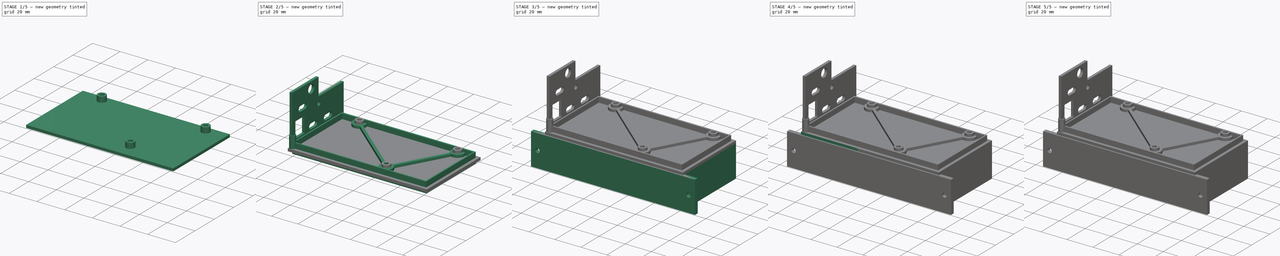
[diagram: build sequence overview — one tinted view per stage of 5, left to right]
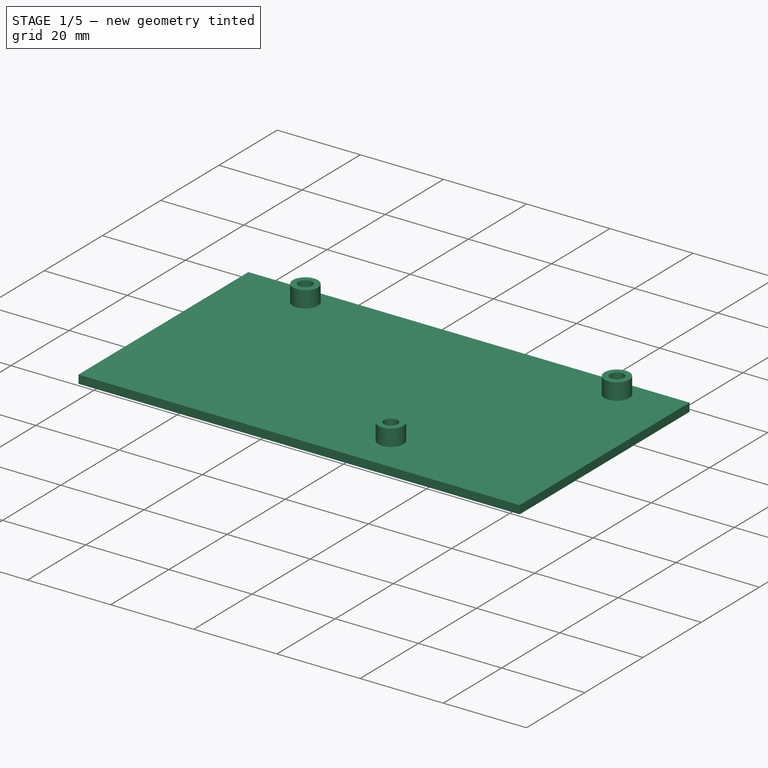
[diagram: stage 1 of 5 — iso view after this stage's code; geometry added in this stage tinted green]
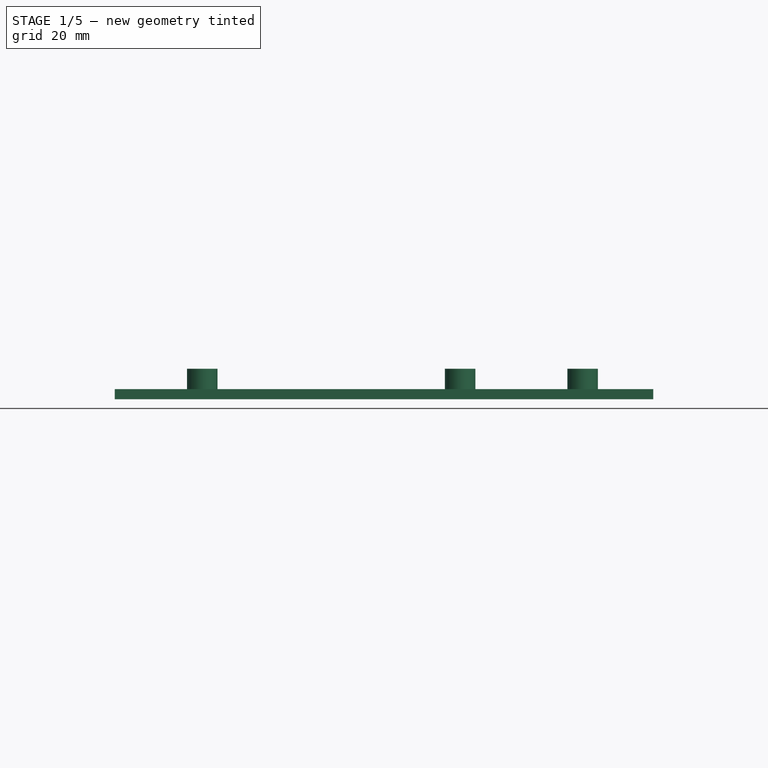
[diagram: stage 1 of 5 — front view after this stage's code; geometry added in this stage tinted green]
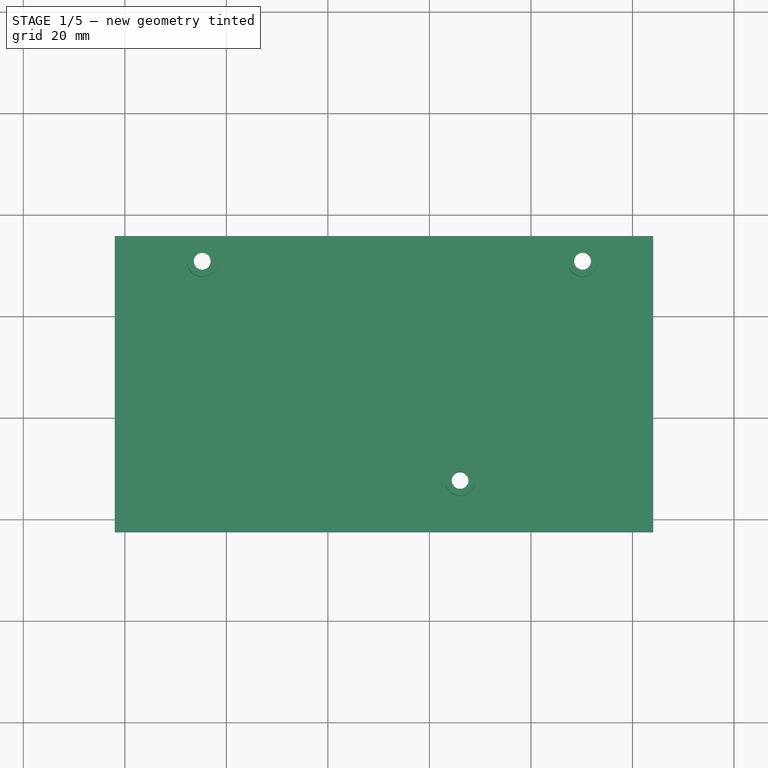
[diagram: stage 1 of 5 — top view after this stage's code; geometry added in this stage tinted green]
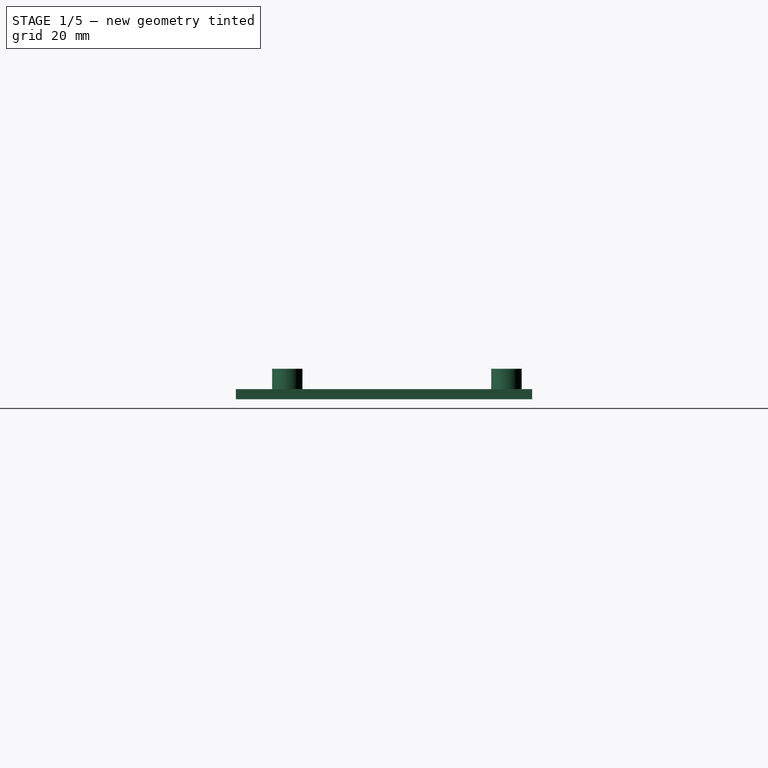
[diagram: stage 1 of 5 — right view after this stage's code; geometry added in this stage tinted green]
FCSTD DOCUMENT  (FreeCAD 0.21R33668 +26 (Git))
Label: nexta_box_v6
License: All rights reserved
LicenseURL: http://en.wikipedia.org/wiki/All_rights_reserved
objects: PartDesign::SubtractiveCylinder×20, Sketcher::SketchObject×18, PartDesign::Pad×15, PartDesign::AdditiveCylinder×7, PartDesign::Body×4, PartDesign::Pocket×2
note: 110 computed .brp shape members not serialized (recipe doc carries the construction recipe); baked Part::Feature solids carry a one-line shape summary decoded from their .brp

FEATURE [Sketcher::SketchObject] Sketch008
  FullyConstrained = true
  MapMode = 5
  Support = -> [XY_Plane001]
  expr: Constraints[105] = Sketch.Constraints[105]
  expr: Constraints[10] = Sketch.Constraints[10]
  expr: Constraints[16] = Sketch.Constraints[16]
  expr: Constraints[17] = Sketch.Constraints[17]
  expr: Constraints[18] = Sketch.Constraints[18]
  expr: Constraints[19] = Sketch.Constraints[19]
  expr: Constraints[20] = Sketch.Constraints[20]
  expr: Constraints[21] = Sketch.Constraints[21]
  expr: Constraints[23] = Sketch.Constraints[23]
  expr: Constraints[25] = Sketch.Constraints[25]
  expr: Constraints[26] = Sketch.Constraints[26]
  expr: Constraints[37] = Sketch.Constraints[37]
  expr: Constraints[39] = Sketch.Constraints[39]
  expr: Constraints[40] = Sketch.Constraints[40]
  expr: Constraints[41] = Sketch.Constraints[41]
  expr: Constraints[42] = Sketch.Constraints[42]
  expr: Constraints[43] = Sketch.Constraints[43]
  expr: Constraints[55] = Sketch.Constraints[55]
  expr: Constraints[56] = Sketch.Constraints[56]
  expr: Constraints[57] = Sketch.Constraints[57]
  expr: Constraints[80] = Sketch.Constraints[80]
  expr: Constraints[81] = Sketch.Constraints[81]
  expr: Constraints[82] = Sketch.Constraints[82]
  expr: Constraints[83] = Sketch.Constraints[83]
  expr: Constraints[84] = Sketch.Constraints[84]
  expr: Constraints[85] = Sketch.Constraints[85]
  expr: Constraints[96] = Sketch.Constraints[96]
  expr: Constraints[97] = Sketch.Constraints[97]
  expr: Constraints[98] = Sketch.Constraints[98]
  expr: Constraints[99] = Sketch.Constraints[99]
  expr: Constraints[9] = Sketch.Constraints[9]
  sketch-geometry (39):
    g0: LineSegment StartX=0 StartY=0 StartZ=0 EndX=101.6 EndY=0 EndZ=0
    g1: LineSegment StartX=101.6 StartY=0 StartZ=0 EndX=101.6 EndY=53.34 EndZ=0
    g2: LineSegment StartX=101.6 StartY=53.34 StartZ=0 EndX=0 EndY=53.34 EndZ=0
    g3: LineSegment StartX=0 StartY=53.34 StartZ=0 EndX=0 EndY=0 EndZ=0
    g4: Circle CenterX=15.24 CenterY=50.8 CenterZ=0 NormalX=0 NormalY=0 NormalZ=1 AngleXU=0 Radius=1.65
    g5: Circle CenterX=90.17 CenterY=50.8 CenterZ=0 NormalX=0 NormalY=0 NormalZ=1 AngleXU=0 Radius=1.65
    g6: Circle CenterX=13.97 CenterY=2.54 CenterZ=0 NormalX=0 NormalY=0 NormalZ=1 AngleXU=0 Radius=1.65
    g7: Circle CenterX=96.52 CenterY=2.54 CenterZ=0 NormalX=0 NormalY=0 NormalZ=1 AngleXU=0 Radius=1.65
    g8: Circle CenterX=66.04 CenterY=7.62 CenterZ=0 NormalX=0 NormalY=0 NormalZ=1 AngleXU=0 Radius=1.65
    g9: Circle CenterX=56.67 CenterY=30.61 CenterZ=0 NormalX=0 NormalY=0 NormalZ=1 AngleXU=0 Radius=1.65
    g10: LineSegment StartX=0 StartY=0 StartZ=0 EndX=39 EndY=0 EndZ=0
    g11: LineSegment StartX=39 StartY=0 StartZ=0 EndX=39 EndY=25.7 EndZ=0
    g12: LineSegment StartX=39 StartY=25.7 StartZ=0 EndX=0 EndY=25.7 EndZ=0
    g13: LineSegment StartX=0 StartY=25.7 StartZ=0 EndX=0 EndY=0 EndZ=0
    g14: Circle CenterX=36.65 CenterY=23.19 CenterZ=0 NormalX=0 NormalY=0 NormalZ=1 AngleXU=0 Radius=1.65
    g15: Circle CenterX=36.65 CenterY=2.54 CenterZ=0 NormalX=0 NormalY=0 NormalZ=1 AngleXU=0 Radius=1.65
    g16: Circle CenterX=15.24 CenterY=50.8 CenterZ=0 NormalX=0 NormalY=0 NormalZ=1 AngleXU=0 Radius=2.65
    g17: Circle CenterX=90.17 CenterY=50.8 CenterZ=0 NormalX=0 NormalY=0 NormalZ=1 AngleXU=0 Radius=2.65
    g18: Circle CenterX=56.67 CenterY=30.61 CenterZ=0 NormalX=0 NormalY=0 NormalZ=1 AngleXU=0 Radius=2.65
    g19: Circle CenterX=96.52 CenterY=2.54 CenterZ=0 NormalX=0 NormalY=0 NormalZ=1 AngleXU=0 Radius=2.65
    g20: Circle CenterX=13.97 CenterY=2.54 CenterZ=0 NormalX=0 NormalY=0 NormalZ=1 AngleXU=0 Radius=2.65
    g21: Circle CenterX=66.04 CenterY=7.62 CenterZ=0 NormalX=0 NormalY=0 NormalZ=1 AngleXU=0 Radius=2.65
    g22: LineSegment StartX=0 StartY=53.84 StartZ=0 EndX=0 EndY=26.2 EndZ=0
    g23: LineSegment StartX=0 StartY=26.2 StartZ=0 EndX=34.3 EndY=26.2 EndZ=0
    g24: LineSegment StartX=34.3 StartY=26.2 StartZ=0 EndX=34.3 EndY=19.35 EndZ=0
    g25: LineSegment StartX=34.3 StartY=19.35 StartZ=0 EndX=39 EndY=19.35 EndZ=0
    g26: LineSegment StartX=39 StartY=19.35 StartZ=0 EndX=39 EndY=6.35 EndZ=0
    g27: LineSegment StartX=39 StartY=6.35 StartZ=0 EndX=34.3 EndY=6.35 EndZ=0
    g28: LineSegment StartX=34.3 StartY=6.35 StartZ=0 EndX=34.3 EndY=-0.5 EndZ=0
    g29: LineSegment StartX=34.3 StartY=-0.5 StartZ=0 EndX=102.1 EndY=-0.5 EndZ=0
    g30: LineSegment StartX=102.1 StartY=-0.5 StartZ=0 EndX=102.1 EndY=53.84 EndZ=0
    g31: LineSegment StartX=102.1 StartY=53.84 StartZ=0 EndX=0 EndY=53.84 EndZ=0
    g32: LineSegment StartX=-2 StartY=-2.5 StartZ=0 EndX=104.1 EndY=-2.5 EndZ=0
    g33: LineSegment StartX=104.1 StartY=-2.5 StartZ=0 EndX=104.1 EndY=55.84 EndZ=0
    g34: LineSegment StartX=104.1 StartY=55.84 StartZ=0 EndX=-2 EndY=55.84 EndZ=0
    g35: LineSegment StartX=-2 StartY=55.84 StartZ=0 EndX=-2 EndY=-2.5 EndZ=0
    g36: Circle CenterX=15.24 CenterY=50.8 CenterZ=0 NormalX=0 NormalY=0 NormalZ=1 AngleXU=0 Radius=2.15
    g37: Circle CenterX=90.17 CenterY=50.8 CenterZ=0 NormalX=0 NormalY=0 NormalZ=1 AngleXU=0 Radius=2.15
    g38: Circle CenterX=66.04 CenterY=7.62 CenterZ=0 NormalX=0 NormalY=0 NormalZ=1 AngleXU=0 Radius=2.15
  constraints (106):
    c: Coincident(g0,g1)
    c: Coincident(g1,g2)
    c: Coincident(g2,g3)
    c: Coincident(g3,g0)
    c: Horizontal(g0)
    c: Horizontal(g2)
    c: Vertical(g1)
    c: Vertical(g3)
    c: Coincident(g0,g-1)
    c: DistanceY(g3,g3) = 53.34
    c: DistanceX(g0,g0) = 101.6
    c: Equal(g6,g4)
    c: Equal(g6,g9)
    c: Equal(g6,g8)
    c: Equal(g6,g5)
    c: Equal(g6,g7)
    c: Diameter(g6) = 3.3
    c: DistanceX(g0,g6) = 13.97
    c: DistanceY(g0,g6) = 2.54
    c: DistanceY(g0,g4) = 50.8
    c: DistanceX(g0,g4) = 15.24
    c: DistanceX(g0,g7) = 96.52
    c: Horizontal(g6,g7)
    c: DistanceX(g0,g5) = 90.17
    c: Horizontal(g4,g5)
    c: DistanceX(g0,g8) = 66.04
    c: DistanceY(g0,g8) = 7.62
    c: Coincident(g10,g11)
    c: Coincident(g11,g12)
    c: Coincident(g12,g13)
    c: Coincident(g13,g10)
    c: Horizontal(g10)
    c: Horizontal(g12)
    c: Vertical(g11)
    c: Vertical(g13)
    c: Coincident(g10,g0)
    c: Equal(g14,g15)
    c: Diameter(g14) = 3.3
    c: Vertical(g14,g15)
    c: DistanceY(g0,g12) = 25.7
    c: DistanceX(g0,g10) = 39
    c: DistanceX(g0,g15) = 36.65
    c: DistanceY(g15,g14) = 20.65
    c: DistanceY(g0,g15) = 2.54
    c: Coincident(g16,g4)
    c: Coincident(g17,g5)
    c: Coincident(g18,g9)
    c: Coincident(g19,g7)
    c: Coincident(g20,g6)
    c: Coincident(g21,g8)
    c: Equal(g16,g17)
    c: Equal(g16,g18)
    c: Equal(g16,g21)
    c: Equal(g16,g19)
    c: Equal(g16,g20)
    c: Diameter(g16) = 5.3
    c: DistanceY(g9,g5) = 20.19
    c: DistanceX(g9,g5) = 33.5
    c: PointOnObject(g22,g-2)
    c: PointOnObject(g22,g3)
    c: Coincident(g22,g23)
    c: Horizontal(g23)
    c: Coincident(g23,g24)
    c: Vertical(g24)
    c: Coincident(g24,g25)
    c: PointOnObject(g25,g11)
    c: Horizontal(g25)
    c: Coincident(g25,g26)
    c: PointOnObject(g26,g11)
    c: Coincident(g26,g27)
    c: Horizontal(g27)
    c: Coincident(g27,g28)
    c: Vertical(g28)
    c: Coincident(g28,g29)
    c: Horizontal(g29)
    c: Coincident(g29,g30)
    c: Vertical(g30)
    c: Coincident(g30,g31)
    c: Coincident(g31,g22)
    c: Horizontal(g31)
    c: DistanceY(g2,g22) = 0.5
    c: DistanceX(g1,g30) = 0.5
    c: DistanceY(g29,g0) = 0.5
    c: DistanceY(g12,g22) = 0.5
    c: DistanceY(g26,g25) = 13
    c: DistanceX(g23,g14) = 2.35
    c: Equal(g24,g28)
    c: Vertical(g24,g27)
    c: Coincident(g32,g33)
    c: Coincident(g33,g34)
    c: Coincident(g34,g35)
    c: Coincident(g35,g32)
    c: Horizontal(g32)
    c: Horizontal(g34)
    c: Vertical(g33)
    c: Vertical(g35)
    c: DistanceX(g29,g32) = 2
    c: DistanceY(g32,g29) = 2
    c: DistanceY(g30,g33) = 2
    c: DistanceX(g34,g22) = 2
    c: Coincident(g36,g4)
    c: Coincident(g37,g5)
    c: Coincident(g38,g8)
    c: Equal(g36,g38)
    c: Equal(g36,g37)
    c: Diameter(g36) = 4.3
FEATURE [PartDesign::Pad] Pad007
  Direction = (0,0,1)
  Length = 2
  Length2 = 10
  Profile = -> Sketch008
  ReferenceAxis = -> Sketch008 [N_Axis]
  Type = 0
FEATURE [PartDesign::AdditiveCylinder] Cylinder002
  Angle = 360
  AttacherType = Attacher::AttachEngine3D
  AttachmentOffset = pos=(15.24,50.8,2) rot=(0,0,1;0rad)
  BaseFeature = -> Pad007
  FirstAngle = 0
  Height = 4
  MapMode = 5
  Placement = pos=(15.24,50.8,2) rot=(0,0,1;0rad)
  Radius = 3
  SecondAngle = 0
  Support = -> [XY_Plane001]
FEATURE [PartDesign::AdditiveCylinder] Cylinder003
  Angle = 360
  AttacherType = Attacher::AttachEngine3D
  AttachmentOffset = pos=(90.17,50.8,2) rot=(0,0,1;0rad)
  BaseFeature = -> Cylinder002
  FirstAngle = 0
  Height = 4
  MapMode = 5
  Placement = pos=(90.17,50.8,2) rot=(0,0,1;0rad)
  Radius = 3
  SecondAngle = 0
  Support = -> [XY_Plane001]
FEATURE [PartDesign::AdditiveCylinder] Cylinder004
  Angle = 360
  AttacherType = Attacher::AttachEngine3D
  AttachmentOffset = pos=(66.04,7.62,2) rot=(0,0,1;0rad)
  BaseFeature = -> Cylinder003
  FirstAngle = 0
  Height = 4
  MapMode = 5
  Placement = pos=(66.04,7.62,2) rot=(0,0,1;0rad)
  Radius = 3
  SecondAngle = 0
  Support = -> [XY_Plane001]
FEATURE [PartDesign::SubtractiveCylinder] Cylinder005
  Angle = 360
  AttacherType = Attacher::AttachEngine3D
  AttachmentOffset = pos=(15.24,50.8,0) rot=(0,0,1;0rad)
  BaseFeature = -> Cylinder004
  FirstAngle = 0
  Height = 10
  MapMode = 5
  Placement = pos=(15.24,50.8,0) rot=(0,0,1;0rad)
  Radius = 1.65
  SecondAngle = 0
  Support = -> [XY_Plane001]
FEATURE [PartDesign::SubtractiveCylinder] Cylinder006
  Angle = 360
  AttacherType = Attacher::AttachEngine3D
  AttachmentOffset = pos=(90.17,50.8,0) rot=(0,0,1;0rad)
  BaseFeature = -> Cylinder005
  FirstAngle = 0
  Height = 10
  MapMode = 5
  Placement = pos=(90.17,50.8,0) rot=(0,0,1;0rad)
  Radius = 1.65
  SecondAngle = 0
  Support = -> [XY_Plane001]
FEATURE [PartDesign::SubtractiveCylinder] Cylinder007
  Angle = 360
  AttacherType = Attacher::AttachEngine3D
  AttachmentOffset = pos=(66.04,7.62,0) rot=(0,0,1;0rad)
  BaseFeature = -> Cylinder006
  FirstAngle = 0
  Height = 10
  MapMode = 5
  Placement = pos=(66.04,7.62,0) rot=(0,0,1;0rad)
  Radius = 1.65
  SecondAngle = 0
  Support = -> [XY_Plane001]
FEATURE [PartDesign::SubtractiveCylinder] Cylinder008
  Angle = 360
  AttacherType = Attacher::AttachEngine3D
  AttachmentOffset = pos=(15.24,50.8,2) rot=(0,0,1;0rad)
  BaseFeature = -> Cylinder007
  FirstAngle = 0
  Height = 3.7
  MapMode = 5
  Placement = pos=(15.24,50.8,2) rot=(0,0,1;0rad)
  Radius = 1.96
  SecondAngle = 0
  Support = -> [XY_Plane001]
FEATURE [PartDesign::SubtractiveCylinder] Cylinder009
  Angle = 360
  AttacherType = Attacher::AttachEngine3D
  AttachmentOffset = pos=(90.17,50.8,2) rot=(0,0,1;0rad)
  BaseFeature = -> Cylinder008
  FirstAngle = 0
  Height = 3.7
  MapMode = 5
  Placement = pos=(90.17,50.8,2) rot=(0,0,1;0rad)
  Radius = 1.96
  SecondAngle = 0
  Support = -> [XY_Plane001]
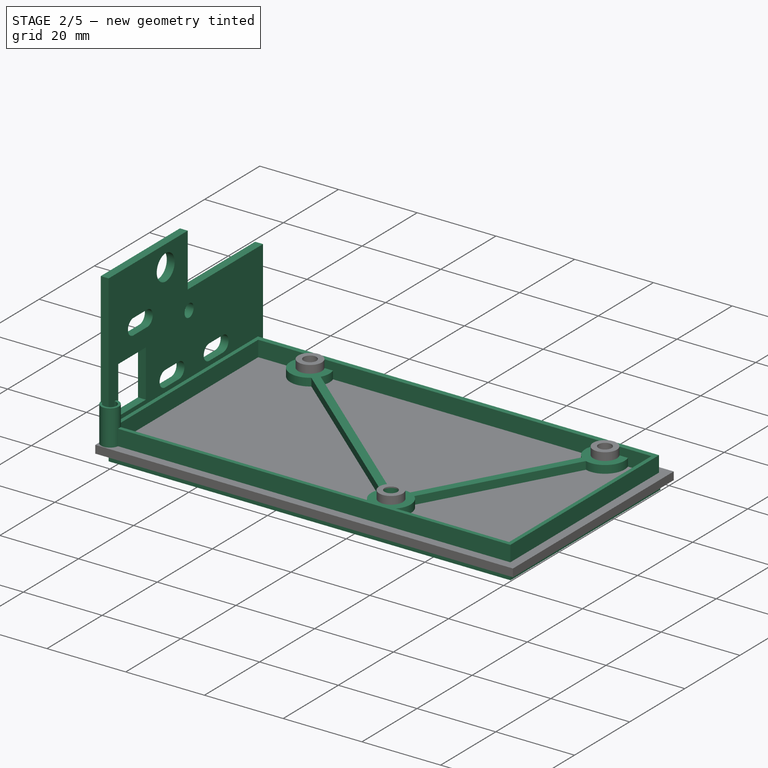
[diagram: stage 2 of 5 — iso view after this stage's code; geometry added in this stage tinted green]
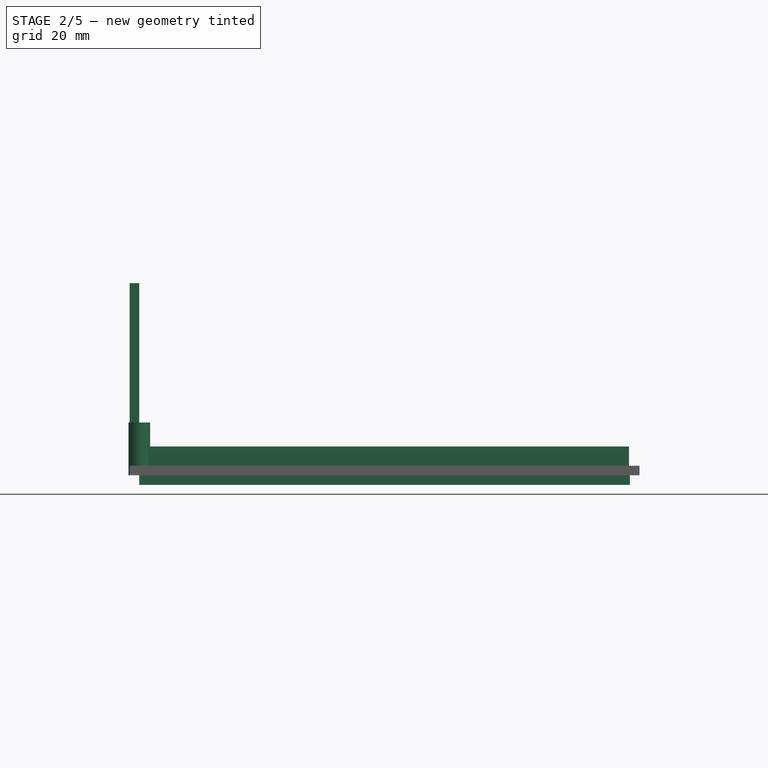
[diagram: stage 2 of 5 — front view after this stage's code; geometry added in this stage tinted green]
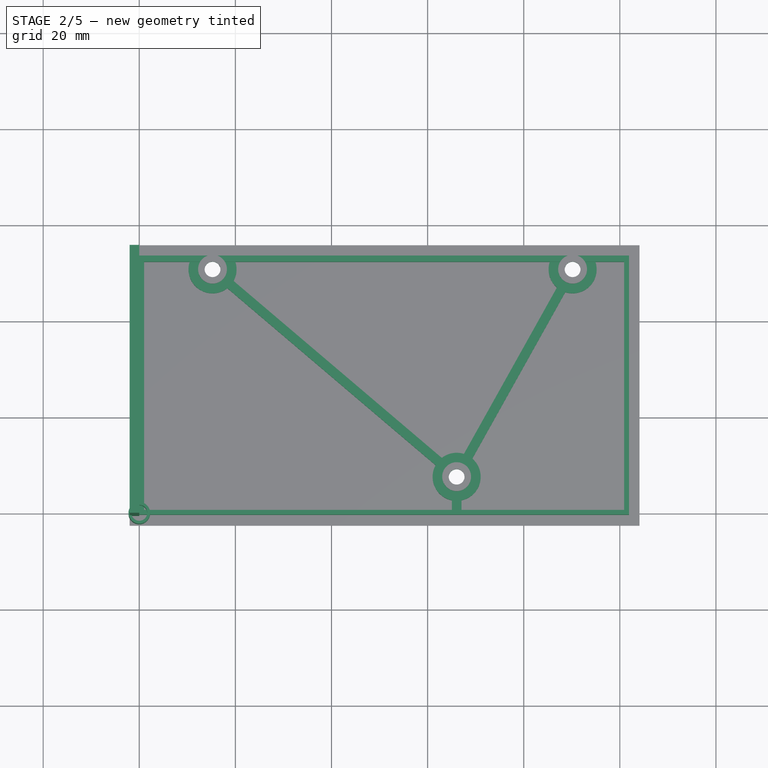
[diagram: stage 2 of 5 — top view after this stage's code; geometry added in this stage tinted green]
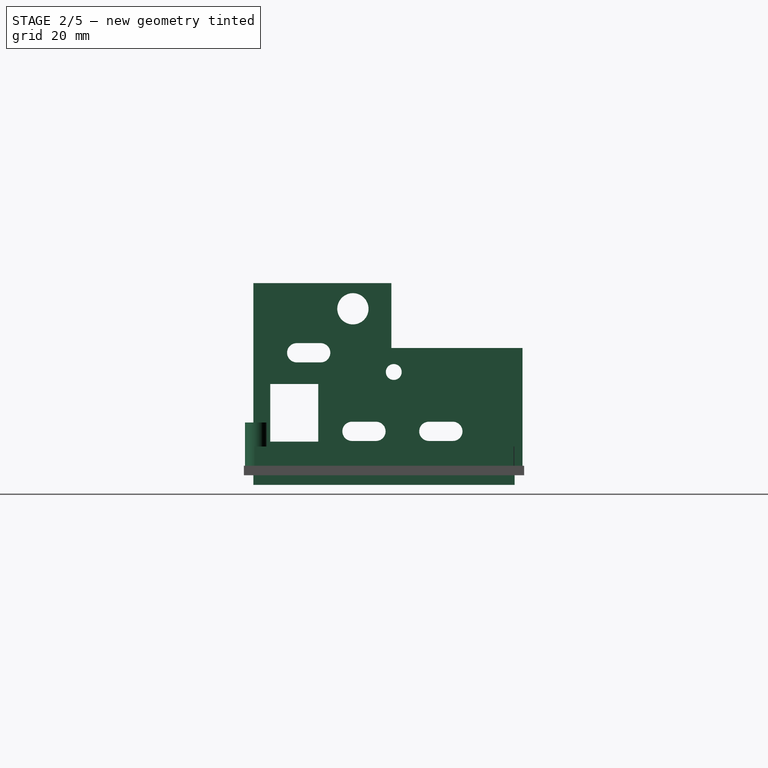
[diagram: stage 2 of 5 — right view after this stage's code; geometry added in this stage tinted green]
FEATURE [Sketcher::SketchObject] Sketch
  FullyConstrained = true
  MapMode = 5
  Support = -> [XY_Plane]
  sketch-geometry (39):
    g0: LineSegment StartX=0 StartY=0 StartZ=0 EndX=101.6 EndY=0 EndZ=0
    g1: LineSegment StartX=101.6 StartY=0 StartZ=0 EndX=101.6 EndY=53.34 EndZ=0
    g2: LineSegment StartX=101.6 StartY=53.34 StartZ=0 EndX=0 EndY=53.34 EndZ=0
    g3: LineSegment StartX=0 StartY=53.34 StartZ=0 EndX=0 EndY=0 EndZ=0
    g4: Circle CenterX=15.24 CenterY=50.8 CenterZ=0 NormalX=0 NormalY=0 NormalZ=1 AngleXU=0 Radius=1.65
    g5: Circle CenterX=90.17 CenterY=50.8 CenterZ=0 NormalX=0 NormalY=0 NormalZ=1 AngleXU=0 Radius=1.65
    g6: Circle CenterX=13.97 CenterY=2.54 CenterZ=0 NormalX=0 NormalY=0 NormalZ=1 AngleXU=0 Radius=1.65
    g7: Circle CenterX=96.52 CenterY=2.54 CenterZ=0 NormalX=0 NormalY=0 NormalZ=1 AngleXU=0 Radius=1.65
    g8: Circle CenterX=66.04 CenterY=7.62 CenterZ=0 NormalX=0 NormalY=0 NormalZ=1 AngleXU=0 Radius=1.65
    g9: Circle CenterX=56.67 CenterY=30.61 CenterZ=0 NormalX=0 NormalY=0 NormalZ=1 AngleXU=0 Radius=1.65
    g10: LineSegment StartX=0 StartY=0 StartZ=0 EndX=39 EndY=0 EndZ=0
    g11: LineSegment StartX=39 StartY=0 StartZ=0 EndX=39 EndY=25.7 EndZ=0
    g12: LineSegment StartX=39 StartY=25.7 StartZ=0 EndX=0 EndY=25.7 EndZ=0
    g13: LineSegment StartX=0 StartY=25.7 StartZ=0 EndX=0 EndY=0 EndZ=0
    g14: Circle CenterX=36.65 CenterY=23.19 CenterZ=0 NormalX=0 NormalY=0 NormalZ=1 AngleXU=0 Radius=1.65
    g15: Circle CenterX=36.65 CenterY=2.54 CenterZ=0 NormalX=0 NormalY=0 NormalZ=1 AngleXU=0 Radius=1.65
    g16: Circle CenterX=15.24 CenterY=50.8 CenterZ=0 NormalX=0 NormalY=0 NormalZ=1 AngleXU=0 Radius=2.65
    g17: Circle CenterX=90.17 CenterY=50.8 CenterZ=0 NormalX=0 NormalY=0 NormalZ=1 AngleXU=0 Radius=2.65
    g18: Circle CenterX=56.67 CenterY=30.61 CenterZ=0 NormalX=0 NormalY=0 NormalZ=1 AngleXU=0 Radius=2.65
    g19: Circle CenterX=96.52 CenterY=2.54 CenterZ=0 NormalX=0 NormalY=0 NormalZ=1 AngleXU=0 Radius=2.65
    g20: Circle CenterX=13.97 CenterY=2.54 CenterZ=0 NormalX=0 NormalY=0 NormalZ=1 AngleXU=0 Radius=2.65
    g21: Circle CenterX=66.04 CenterY=7.62 CenterZ=0 NormalX=0 NormalY=0 NormalZ=1 AngleXU=0 Radius=2.65
    g22: LineSegment StartX=0 StartY=53.84 StartZ=0 EndX=0 EndY=26.2 EndZ=0
    g23: LineSegment StartX=0 StartY=26.2 StartZ=0 EndX=34.3 EndY=26.2 EndZ=0
    g24: LineSegment StartX=34.3 StartY=26.2 StartZ=0 EndX=34.3 EndY=19.35 EndZ=0
    g25: LineSegment StartX=34.3 StartY=19.35 StartZ=0 EndX=39 EndY=19.35 EndZ=0
    g26: LineSegment StartX=39 StartY=19.35 StartZ=0 EndX=39 EndY=6.35 EndZ=0
    g27: LineSegment StartX=39 StartY=6.35 StartZ=0 EndX=34.3 EndY=6.35 EndZ=0
    g28: LineSegment StartX=34.3 StartY=6.35 StartZ=0 EndX=34.3 EndY=-0.5 EndZ=0
    g29: LineSegment StartX=34.3 StartY=-0.5 StartZ=0 EndX=102.1 EndY=-0.5 EndZ=0
    g30: LineSegment StartX=102.1 StartY=-0.5 StartZ=0 EndX=102.1 EndY=53.84 EndZ=0
    g31: LineSegment StartX=102.1 StartY=53.84 StartZ=0 EndX=0 EndY=53.84 EndZ=0
    g32: LineSegment StartX=-2 StartY=-2.5 StartZ=0 EndX=104.1 EndY=-2.5 EndZ=0
    g33: LineSegment StartX=104.1 StartY=-2.5 StartZ=0 EndX=104.1 EndY=55.84 EndZ=0
    g34: LineSegment StartX=104.1 StartY=55.84 StartZ=0 EndX=-2 EndY=55.84 EndZ=0
    g35: LineSegment StartX=-2 StartY=55.84 StartZ=0 EndX=-2 EndY=-2.5 EndZ=0
    g36: Circle CenterX=15.24 CenterY=50.8 CenterZ=0 NormalX=0 NormalY=0 NormalZ=1 AngleXU=0 Radius=2.15
    g37: Circle CenterX=90.17 CenterY=50.8 CenterZ=0 NormalX=0 NormalY=0 NormalZ=1 AngleXU=0 Radius=2.15
    g38: Circle CenterX=66.04 CenterY=7.62 CenterZ=0 NormalX=0 NormalY=0 NormalZ=1 AngleXU=0 Radius=2.15
  constraints (106):
    c: Coincident(g0,g1)
    c: Coincident(g1,g2)
    c: Coincident(g2,g3)
    c: Coincident(g3,g0)
    c: Horizontal(g0)
    c: Horizontal(g2)
    c: Vertical(g1)
    c: Vertical(g3)
    c: Coincident(g0,g-1)
    c: DistanceY(g3,g3) = 53.34
    c: DistanceX(g0,g0) = 101.6
    c: Equal(g6,g4)
    c: Equal(g6,g9)
    c: Equal(g6,g8)
    c: Equal(g6,g5)
    c: Equal(g6,g7)
    c: Diameter(g6) = 3.3
    c: DistanceX(g0,g6) = 13.97
    c: DistanceY(g0,g6) = 2.54
    c: DistanceY(g0,g4) = 50.8
    c: DistanceX(g0,g4) = 15.24
    c: DistanceX(g0,g7) = 96.52
    c: Horizontal(g6,g7)
    c: DistanceX(g0,g5) = 90.17
    c: Horizontal(g4,g5)
    c: DistanceX(g0,g8) = 66.04
    c: DistanceY(g0,g8) = 7.62
    c: Coincident(g10,g11)
    c: Coincident(g11,g12)
    c: Coincident(g12,g13)
    c: Coincident(g13,g10)
    c: Horizontal(g10)
    c: Horizontal(g12)
    c: Vertical(g11)
    c: Vertical(g13)
    c: Coincident(g10,g0)
    c: Equal(g14,g15)
    c: Diameter(g14) = 3.3
    c: Vertical(g14,g15)
    c: DistanceY(g0,g12) = 25.7
    c: DistanceX(g0,g10) = 39
    c: DistanceX(g0,g15) = 36.65
    c: DistanceY(g15,g14) = 20.65
    c: DistanceY(g0,g15) = 2.54
    c: Coincident(g16,g4)
    c: Coincident(g17,g5)
    c: Coincident(g18,g9)
    c: Coincident(g19,g7)
    c: Coincident(g20,g6)
    c: Coincident(g21,g8)
    c: Equal(g16,g17)
    c: Equal(g16,g18)
    c: Equal(g16,g21)
    c: Equal(g16,g19)
    c: Equal(g16,g20)
    c: Diameter(g16) = 5.3
    c: DistanceY(g9,g5) = 20.19
    c: DistanceX(g9,g5) = 33.5
    c: PointOnObject(g22,g-2)
    c: PointOnObject(g22,g3)
    c: Coincident(g22,g23)
    c: Horizontal(g23)
    c: Coincident(g23,g24)
    c: Vertical(g24)
    c: Coincident(g24,g25)
    c: PointOnObject(g25,g11)
    c: Horizontal(g25)
    c: Coincident(g25,g26)
    c: PointOnObject(g26,g11)
    c: Coincident(g26,g27)
    c: Horizontal(g27)
    c: Coincident(g27,g28)
    c: Vertical(g28)
    c: Coincident(g28,g29)
    c: Horizontal(g29)
    c: Coincident(g29,g30)
    c: Vertical(g30)
    c: Coincident(g30,g31)
    c: Coincident(g31,g22)
    c: Horizontal(g31)
    c: DistanceY(g2,g22) = 0.5
    c: DistanceX(g1,g30) = 0.5
    c: DistanceY(g29,g0) = 0.5
    c: DistanceY(g12,g22) = 0.5
    c: DistanceY(g26,g25) = 13
    c: DistanceX(g23,g14) = 2.35
    c: Equal(g24,g28)
    c: Vertical(g24,g27)
    c: Coincident(g32,g33)
    c: Coincident(g33,g34)
    c: Coincident(g34,g35)
    c: Coincident(g35,g32)
    c: Horizontal(g32)
    c: Horizontal(g34)
    c: Vertical(g33)
    c: Vertical(g35)
    c: DistanceX(g29,g32) = 2
    c: DistanceY(g32,g29) = 2
    c: DistanceY(g30,g33) = 2
    c: DistanceX(g34,g22) = 2
    c: Coincident(g36,g4)
    c: Coincident(g37,g5)
    c: Coincident(g38,g8)
    c: Equal(g36,g38)
    c: Equal(g36,g37)
    c: Diameter(g36) = 4.3
FEATURE [Sketcher::SketchObject] Sketch001
  FullyConstrained = true
  MapMode = 5
  Support = -> [XY_Plane]
  expr: Constraints[10] = Sketch.Constraints[10]
  expr: Constraints[16] = Sketch.Constraints[16]
  expr: Constraints[17] = Sketch.Constraints[17]
  expr: Constraints[18] = Sketch.Constraints[18]
  expr: Constraints[19] = Sketch.Constraints[19]
  expr: Constraints[20] = Sketch.Constraints[20]
  expr: Constraints[21] = Sketch.Constraints[21]
  expr: Constraints[23] = Sketch.Constraints[23]
  expr: Constraints[25] = Sketch.Constraints[25]
  expr: Constraints[26] = Sketch.Constraints[26]
  expr: Constraints[37] = Sketch.Constraints[37]
  expr: Constraints[39] = Sketch.Constraints[39]
  expr: Constraints[40] = Sketch.Constraints[40]
  expr: Constraints[41] = Sketch.Constraints[41]
  expr: Constraints[42] = Sketch.Constraints[42]
  expr: Constraints[43] = Sketch.Constraints[43]
  expr: Constraints[55] = Sketch.Constraints[55]
  expr: Constraints[56] = Sketch.Constraints[56]
  expr: Constraints[57] = Sketch.Constraints[57]
  expr: Constraints[77] = Sketch.Constraints[80]
  expr: Constraints[78] = Sketch.Constraints[81]
  expr: Constraints[79] = Sketch.Constraints[82]
  expr: Constraints[80] = Sketch.Constraints[84]
  expr: Constraints[81] = Sketch.Constraints[85]
  expr: Constraints[9] = Sketch.Constraints[9]
  sketch-geometry (40):
    g0: LineSegment StartX=0 StartY=0 StartZ=0 EndX=101.6 EndY=0 EndZ=0
    g1: LineSegment StartX=101.6 StartY=0 StartZ=0 EndX=101.6 EndY=53.34 EndZ=0
    g2: LineSegment StartX=101.6 StartY=53.34 StartZ=0 EndX=0 EndY=53.34 EndZ=0
    g3: LineSegment StartX=0 StartY=53.34 StartZ=0 EndX=0 EndY=0 EndZ=0
    g4: Circle CenterX=15.24 CenterY=50.8 CenterZ=0 NormalX=0 NormalY=0 NormalZ=1 AngleXU=0 Radius=1.65
    g5: Circle CenterX=90.17 CenterY=50.8 CenterZ=0 NormalX=0 NormalY=0 NormalZ=1 AngleXU=0 Radius=1.65
    g6: Circle CenterX=13.97 CenterY=2.54 CenterZ=0 NormalX=0 NormalY=0 NormalZ=1 AngleXU=0 Radius=1.65
    g7: Circle CenterX=96.52 CenterY=2.54 CenterZ=0 NormalX=0 NormalY=0 NormalZ=1 AngleXU=0 Radius=1.65
    g8: Circle CenterX=66.04 CenterY=7.62 CenterZ=0 NormalX=0 NormalY=0 NormalZ=1 AngleXU=0 Radius=1.65
    g9: Circle CenterX=56.67 CenterY=30.61 CenterZ=0 NormalX=0 NormalY=0 NormalZ=1 AngleXU=0 Radius=1.65
    g10: LineSegment StartX=0 StartY=0 StartZ=0 EndX=39 EndY=0 EndZ=0
    g11: LineSegment StartX=39 StartY=0 StartZ=0 EndX=39 EndY=25.7 EndZ=0
    g12: LineSegment StartX=39 StartY=25.7 StartZ=0 EndX=0 EndY=25.7 EndZ=0
    g13: LineSegment StartX=0 StartY=25.7 StartZ=0 EndX=0 EndY=0 EndZ=0
    g14: Circle CenterX=36.65 CenterY=23.19 CenterZ=0 NormalX=0 NormalY=0 NormalZ=1 AngleXU=0 Radius=1.65
    g15: Circle CenterX=36.65 CenterY=2.54 CenterZ=0 NormalX=0 NormalY=0 NormalZ=1 AngleXU=0 Radius=1.65
    g16: Circle CenterX=15.24 CenterY=50.8 CenterZ=0 NormalX=0 NormalY=0 NormalZ=1 AngleXU=0 Radius=2.65
    g17: Circle CenterX=90.17 CenterY=50.8 CenterZ=0 NormalX=0 NormalY=0 NormalZ=1 AngleXU=0 Radius=2.65
    g18: Circle CenterX=56.67 CenterY=30.61 CenterZ=0 NormalX=0 NormalY=0 NormalZ=1 AngleXU=0 Radius=2.65
    g19: Circle CenterX=96.52 CenterY=2.54 CenterZ=0 NormalX=0 NormalY=0 NormalZ=1 AngleXU=0 Radius=2.65
    g20: Circle CenterX=13.97 CenterY=2.54 CenterZ=0 NormalX=0 NormalY=0 NormalZ=1 AngleXU=0 Radius=2.65
    g21: Circle CenterX=66.04 CenterY=7.62 CenterZ=0 NormalX=0 NormalY=0 NormalZ=1 AngleXU=0 Radius=2.65
    g22: LineSegment StartX=0 StartY=53.84 StartZ=0 EndX=0 EndY=24.7 EndZ=0
    g23: LineSegment StartX=0 StartY=24.7 StartZ=0 EndX=34.3 EndY=24.7 EndZ=0
    g24: LineSegment StartX=34.3 StartY=24.7 StartZ=0 EndX=34.3 EndY=19.1 EndZ=0
    g25: LineSegment StartX=34.3 StartY=19.1 StartZ=0 EndX=39 EndY=19.1 EndZ=0
    g26: LineSegment StartX=39 StartY=19.1 StartZ=0 EndX=39 EndY=6.1 EndZ=0
    g27: LineSegment StartX=39 StartY=6.1 StartZ=0 EndX=34.3 EndY=6.1 EndZ=0
    g28: LineSegment StartX=0 StartY=-0.5 StartZ=0 EndX=102.1 EndY=-0.5 EndZ=0
    g29: LineSegment StartX=102.1 StartY=-0.5 StartZ=0 EndX=102.1 EndY=53.84 EndZ=0
    g30: LineSegment StartX=102.1 StartY=53.84 StartZ=0 EndX=0 EndY=53.84 EndZ=0
    g31: LineSegment StartX=0 StartY=53.84 StartZ=0 EndX=0 EndY=24.7 EndZ=0
    g32: LineSegment StartX=39 StartY=19.1 StartZ=0 EndX=39 EndY=6.1 EndZ=0
    g33: LineSegment StartX=30.1 StartY=48.84 StartZ=0 EndX=83.7 EndY=48.84 EndZ=0
    g34: LineSegment StartX=83.7 StartY=48.84 StartZ=0 EndX=83.7 EndY=36.84 EndZ=0
    g35: LineSegment StartX=83.7 StartY=36.84 StartZ=0 EndX=30.1 EndY=36.84 EndZ=0
    g36: LineSegment StartX=30.1 StartY=36.84 StartZ=0 EndX=30.1 EndY=48.84 EndZ=0
    g37: LineSegment StartX=34.3 StartY=6.1 StartZ=0 EndX=34.3 EndY=0.5 EndZ=0
    g38: LineSegment StartX=34.3 StartY=0.5 StartZ=0 EndX=0 EndY=0.5 EndZ=0
    g39: LineSegment StartX=0 StartY=0.5 StartZ=0 EndX=0 EndY=-0.5 EndZ=0
  constraints (110):
    c: Coincident(g0,g1)
    c: Coincident(g1,g2)
    c: Coincident(g2,g3)
    c: Coincident(g3,g0)
    c: Horizontal(g0)
    c: Horizontal(g2)
    c: Vertical(g1)
    c: Vertical(g3)
    c: Coincident(g0,g-1)
    c: DistanceY(g3,g3) = 53.34
    c: DistanceX(g0,g0) = 101.6
    c: Equal(g6,g4)
    c: Equal(g6,g9)
    c: Equal(g6,g8)
    c: Equal(g6,g5)
    c: Equal(g6,g7)
    c: Diameter(g6) = 3.3
    c: DistanceX(g0,g6) = 13.97
    c: DistanceY(g0,g6) = 2.54
    c: DistanceY(g0,g4) = 50.8
    c: DistanceX(g0,g4) = 15.24
    c: DistanceX(g0,g7) = 96.52
    c: Horizontal(g6,g7)
    c: DistanceX(g0,g5) = 90.17
    c: Horizontal(g4,g5)
    c: DistanceX(g0,g8) = 66.04
    c: DistanceY(g0,g8) = 7.62
    c: Coincident(g10,g11)
    c: Coincident(g11,g12)
    c: Coincident(g12,g13)
    c: Coincident(g13,g10)
    c: Horizontal(g10)
    c: Horizontal(g12)
    c: Vertical(g11)
    c: Vertical(g13)
    c: Coincident(g10,g0)
    c: Equal(g14,g15)
    c: Diameter(g14) = 3.3
    c: Vertical(g14,g15)
    c: DistanceY(g0,g12) = 25.7
    c: DistanceX(g0,g10) = 39
    c: DistanceX(g0,g15) = 36.65
    c: DistanceY(g15,g14) = 20.65
    c: DistanceY(g0,g15) = 2.54
    c: Coincident(g16,g4)
    c: Coincident(g17,g5)
    c: Coincident(g18,g9)
    c: Coincident(g19,g7)
    c: Coincident(g20,g6)
    c: Coincident(g21,g8)
    c: Equal(g16,g17)
    c: Equal(g16,g18)
    c: Equal(g16,g21)
    c: Equal(g16,g19)
    c: Equal(g16,g20)
    c: Diameter(g16) = 5.3
    c: DistanceY(g9,g5) = 20.19
    c: DistanceX(g9,g5) = 33.5
    c: PointOnObject(g22,g-2)
    c: PointOnObject(g22,g3)
    c: Coincident(g22,g23)
    c: Horizontal(g23)
    c: Coincident(g23,g24)
    c: Vertical(g24)
    c: Coincident(g24,g25)
    c: PointOnObject(g25,g11)
    c: Horizontal(g25)
    c: Coincident(g25,g26)
    c: PointOnObject(g26,g11)
    c: Coincident(g26,g27)
    c: Horizontal(g27)
    c: Horizontal(g28)
    c: Coincident(g28,g29)
    c: Vertical(g29)
    c: Coincident(g29,g30)
    c: Coincident(g30,g22)
    c: Horizontal(g30)
    c: DistanceY(g2,g22) = 0.5
    c: DistanceX(g1,g29) = 0.5
    c: DistanceY(g28,g0) = 0.5
    c: DistanceY(g26,g25) = 13
    c: DistanceX(g23,g14) = 2.35
    c: Vertical(g24,g27)
    c: Coincident(g31,g30)
    c: Coincident(g31,g23)
    c: Coincident(g32,g25)
    c: Coincident(g32,g27)
    c: Coincident(g33,g34)
    c: Coincident(g34,g35)
    c: Coincident(g35,g36)
    c: Coincident(g36,g33)
    c: Horizontal(g33)
    c: Horizontal(g35)
    c: Vertical(g34)
    c: Vertical(g36)
    c: DistanceY(g23,g12) = 1
    c: Vertical(g0,g28)
    c: Coincident(g27,g37)
    c: Vertical(g37)
    c: Coincident(g37,g38)
    c: PointOnObject(g38,g3)
    c: Horizontal(g38)
    c: Coincident(g38,g39)
    c: Coincident(g39,g28)
    c: DistanceY(g0,g38) = 0.5
    c: Equal(g24,g37)
    c: DistanceY(g33,g29) = 5
    c: DistanceX(g33,g29) = 18.4
    c: DistanceY(g34,g29) = 17
    c: DistanceX(g33,g29) = 72
FEATURE [PartDesign::Pad] Pad
  Direction = (0,0,1)
  Length = 2
  Length2 = 10
  Profile = -> Sketch001
  ReferenceAxis = -> Sketch001 [N_Axis]
  Reversed = true
  Type = 0
FEATURE [PartDesign::SubtractiveCylinder] Cylinder010
  Angle = 360
  AttacherType = Attacher::AttachEngine3D
  AttachmentOffset = pos=(66.04,7.62,2) rot=(0,0,1;0rad)
  BaseFeature = -> Cylinder009
  FirstAngle = 0
  Height = 3.7
  MapMode = 5
  Placement = pos=(66.04,7.62,2) rot=(0,0,1;0rad)
  Radius = 1.96
  SecondAngle = 0
  Support = -> [XY_Plane001]
FEATURE [PartDesign::SubtractiveCylinder] Cylinder011
  Angle = 360
  AttacherType = Attacher::AttachEngine3D
  AttachmentOffset = pos=(15.24,50.8,2) rot=(0,0,1;0rad)
  BaseFeature = -> Cylinder010
  FirstAngle = 0
  Height = 2.2
  MapMode = 5
  Placement = pos=(15.24,50.8,2) rot=(0,0,1;0rad)
  Radius = 2.15
  SecondAngle = 0
  Support = -> [XY_Plane001]
FEATURE [PartDesign::SubtractiveCylinder] Cylinder012
  Angle = 360
  AttacherType = Attacher::AttachEngine3D
  AttachmentOffset = pos=(90.17,50.8,2) rot=(0,0,1;0rad)
  BaseFeature = -> Cylinder011
  FirstAngle = 0
  Height = 2.2
  MapMode = 5
  Placement = pos=(90.17,50.8,2) rot=(0,0,1;0rad)
  Radius = 2.15
  SecondAngle = 0
  Support = -> [XY_Plane001]
FEATURE [PartDesign::SubtractiveCylinder] Cylinder013
  Angle = 360
  AttacherType = Attacher::AttachEngine3D
  AttachmentOffset = pos=(66.04,7.62,2) rot=(0,0,1;0rad)
  BaseFeature = -> Cylinder012
  FirstAngle = 0
  Height = 2.2
  MapMode = 5
  Placement = pos=(66.04,7.62,2) rot=(0,0,1;0rad)
  Radius = 2.15
  SecondAngle = 0
  Support = -> [XY_Plane001]
FEATURE [Sketcher::SketchObject] Sketch009
  FullyConstrained = true
  MapMode = 5
  Support = -> [XY_Plane001]
  expr: Constraints[105] = Sketch.Constraints[105]
  expr: Constraints[10] = Sketch.Constraints[10]
  expr: Constraints[16] = Sketch.Constraints[16]
  expr: Constraints[17] = Sketch.Constraints[17]
  expr: Constraints[18] = Sketch.Constraints[18]
  expr: Constraints[19] = Sketch.Constraints[19]
  expr: Constraints[20] = Sketch.Constraints[20]
  expr: Constraints[21] = Sketch.Constraints[21]
  expr: Constraints[23] = Sketch.Constraints[23]
  expr: Constraints[25] = Sketch.Constraints[25]
  expr: Constraints[26] = Sketch.Constraints[26]
  expr: Constraints[37] = Sketch.Constraints[37]
  expr: Constraints[39] = Sketch.Constraints[39]
  expr: Constraints[40] = Sketch.Constraints[40]
  expr: Constraints[41] = Sketch.Constraints[41]
  expr: Constraints[42] = Sketch.Constraints[42]
  expr: Constraints[43] = Sketch.Constraints[43]
  expr: Constraints[55] = Sketch.Constraints[55]
  expr: Constraints[56] = Sketch.Constraints[56]
  expr: Constraints[57] = Sketch.Constraints[57]
  expr: Constraints[80] = Sketch.Constraints[80]
  expr: Constraints[81] = Sketch.Constraints[81]
  expr: Constraints[82] = Sketch.Constraints[82]
  expr: Constraints[83] = Sketch.Constraints[83]
  expr: Constraints[84] = Sketch.Constraints[84]
  expr: Constraints[85] = Sketch.Constraints[85]
  expr: Constraints[96] = Sketch.Constraints[96]
  expr: Constraints[97] = Sketch.Constraints[97]
  expr: Constraints[98] = Sketch.Constraints[98]
  expr: Constraints[99] = Sketch.Constraints[99]
  expr: Constraints[9] = Sketch.Constraints[9]
  sketch-geometry (51):
    g0: LineSegment StartX=0 StartY=0 StartZ=0 EndX=101.6 EndY=0 EndZ=0
    g1: LineSegment StartX=101.6 StartY=0 StartZ=0 EndX=101.6 EndY=53.34 EndZ=0
    g2: LineSegment StartX=101.6 StartY=53.34 StartZ=0 EndX=0 EndY=53.34 EndZ=0
    g3: LineSegment StartX=0 StartY=53.34 StartZ=0 EndX=0 EndY=0 EndZ=0
    g4: Circle CenterX=15.24 CenterY=50.8 CenterZ=0 NormalX=0 NormalY=0 NormalZ=1 AngleXU=0 Radius=1.65
    g5: Circle CenterX=90.17 CenterY=50.8 CenterZ=0 NormalX=0 NormalY=0 NormalZ=1 AngleXU=0 Radius=1.65
    g6: Circle CenterX=13.97 CenterY=2.54 CenterZ=0 NormalX=0 NormalY=0 NormalZ=1 AngleXU=0 Radius=1.65
    g7: Circle CenterX=96.52 CenterY=2.54 CenterZ=0 NormalX=0 NormalY=0 NormalZ=1 AngleXU=0 Radius=1.65
    g8: Circle CenterX=66.04 CenterY=7.62 CenterZ=0 NormalX=0 NormalY=0 NormalZ=1 AngleXU=0 Radius=1.65
    g9: Circle CenterX=56.67 CenterY=30.61 CenterZ=0 NormalX=0 NormalY=0 NormalZ=1 AngleXU=0 Radius=1.65
    g10: LineSegment StartX=0 StartY=0 StartZ=0 EndX=39 EndY=0 EndZ=0
    g11: LineSegment StartX=39 StartY=0 StartZ=0 EndX=39 EndY=25.7 EndZ=0
    g12: LineSegment StartX=39 StartY=25.7 StartZ=0 EndX=0 EndY=25.7 EndZ=0
    g13: LineSegment StartX=0 StartY=25.7 StartZ=0 EndX=0 EndY=0 EndZ=0
    g14: Circle CenterX=36.65 CenterY=23.19 CenterZ=0 NormalX=0 NormalY=0 NormalZ=1 AngleXU=0 Radius=1.65
    g15: Circle CenterX=36.65 CenterY=2.54 CenterZ=0 NormalX=0 NormalY=0 NormalZ=1 AngleXU=0 Radius=1.65
    g16: Circle CenterX=15.24 CenterY=50.8 CenterZ=0 NormalX=0 NormalY=0 NormalZ=1 AngleXU=0 Radius=2.65
    g17: Circle CenterX=90.17 CenterY=50.8 CenterZ=0 NormalX=0 NormalY=0 NormalZ=1 AngleXU=0 Radius=2.65
    g18: Circle CenterX=56.67 CenterY=30.61 CenterZ=0 NormalX=0 NormalY=0 NormalZ=1 AngleXU=0 Radius=2.65
    g19: Circle CenterX=96.52 CenterY=2.54 CenterZ=0 NormalX=0 NormalY=0 NormalZ=1 AngleXU=0 Radius=2.65
    g20: Circle CenterX=13.97 CenterY=2.54 CenterZ=0 NormalX=0 NormalY=0 NormalZ=1 AngleXU=0 Radius=2.65
    g21: Circle CenterX=66.04 CenterY=7.62 CenterZ=0 NormalX=0 NormalY=0 NormalZ=1 AngleXU=0 Radius=2.65
    g22: LineSegment StartX=0 StartY=53.84 StartZ=0 EndX=0 EndY=26.2 EndZ=0
    g23: LineSegment StartX=0 StartY=26.2 StartZ=0 EndX=34.3 EndY=26.2 EndZ=0
    g24: LineSegment StartX=34.3 StartY=26.2 StartZ=0 EndX=34.3 EndY=19.35 EndZ=0
    g25: LineSegment StartX=34.3 StartY=19.35 StartZ=0 EndX=39 EndY=19.35 EndZ=0
    g26: LineSegment StartX=39 StartY=19.35 StartZ=0 EndX=39 EndY=6.35 EndZ=0
    g27: LineSegment StartX=39 StartY=6.35 StartZ=0 EndX=34.3 EndY=6.35 EndZ=0
    g28: LineSegment StartX=34.3 StartY=6.35 StartZ=0 EndX=34.3 EndY=-0.5 EndZ=0
    g29: LineSegment StartX=34.3 StartY=-0.5 StartZ=0 EndX=102.1 EndY=-0.5 EndZ=0
    g30: LineSegment StartX=102.1 StartY=-0.5 StartZ=0 EndX=102.1 EndY=53.84 EndZ=0
    g31: LineSegment StartX=102.1 StartY=53.84 StartZ=0 EndX=0 EndY=53.84 EndZ=0
    g32: LineSegment StartX=-2 StartY=-2.5 StartZ=0 EndX=104.1 EndY=-2.5 EndZ=0
    g33: LineSegment StartX=104.1 StartY=-2.5 StartZ=0 EndX=104.1 EndY=55.84 EndZ=0
    g34: LineSegment StartX=104.1 StartY=55.84 StartZ=0 EndX=-2 EndY=55.84 EndZ=0
    g35: LineSegment StartX=-2 StartY=55.84 StartZ=0 EndX=-2 EndY=-2.5 EndZ=0
    g36: Circle CenterX=15.24 CenterY=50.8 CenterZ=0 NormalX=0 NormalY=0 NormalZ=1 AngleXU=0 Radius=2.15
    g37: Circle CenterX=90.17 CenterY=50.8 CenterZ=0 NormalX=0 NormalY=0 NormalZ=1 AngleXU=0 Radius=2.15
    g38: Circle CenterX=66.04 CenterY=7.62 CenterZ=0 NormalX=0 NormalY=0 NormalZ=1 AngleXU=0 Radius=2.15
    g39: LineSegment StartX=0 StartY=53.64 StartZ=0 EndX=101.9 EndY=53.64 EndZ=0
    g40: LineSegment StartX=101.9 StartY=53.64 StartZ=0 EndX=101.9 EndY=-0.3 EndZ=0
    g41: LineSegment StartX=101.9 StartY=-0.3 StartZ=0 EndX=0 EndY=-0.3 EndZ=0
    g42: LineSegment StartX=0 StartY=-0.3 StartZ=0 EndX=0 EndY=53.64 EndZ=0
    g43: LineSegment StartX=100.9 StartY=52.34 StartZ=0 EndX=100.9 EndY=0.7 EndZ=0
    g44: LineSegment StartX=100.9 StartY=0.7 StartZ=0 EndX=1 EndY=0.7 EndZ=0
    g45: LineSegment StartX=1 StartY=0.7 StartZ=0 EndX=1 EndY=52.34 EndZ=0
    g46: LineSegment StartX=1 StartY=52.34 StartZ=0 EndX=13.7397 EndY=52.34 EndZ=0
    g47: LineSegment StartX=16.7403 StartY=52.34 StartZ=0 EndX=88.6697 EndY=52.34 EndZ=0
    g48: LineSegment StartX=91.6703 StartY=52.34 StartZ=0 EndX=100.9 EndY=52.34 EndZ=0
    g49: ArcOfCircle CenterX=15.24 CenterY=50.8 CenterZ=0 NormalX=0 NormalY=0 NormalZ=1 AngleXU=0 Radius=2.15 StartAngle=0.798455 EndAngle=2.34314
    g50: ArcOfCircle CenterX=90.17 CenterY=50.8 CenterZ=0 NormalX=0 NormalY=0 NormalZ=1 AngleXU=0 Radius=2.15 StartAngle=0.798455 EndAngle=2.34314
  constraints (142):
    c: Coincident(g0,g1)
    c: Coincident(g1,g2)
    c: Coincident(g2,g3)
    c: Coincident(g3,g0)
    c: Horizontal(g0)
    c: Horizontal(g2)
    c: Vertical(g1)
    c: Vertical(g3)
    c: Coincident(g0,g-1)
    c: DistanceY(g3,g3) = 53.34
    c: DistanceX(g0,g0) = 101.6
    c: Equal(g6,g4)
    c: Equal(g6,g9)
    c: Equal(g6,g8)
    c: Equal(g6,g5)
    c: Equal(g6,g7)
    c: Diameter(g6) = 3.3
    c: DistanceX(g0,g6) = 13.97
    c: DistanceY(g0,g6) = 2.54
    c: DistanceY(g0,g4) = 50.8
    c: DistanceX(g0,g4) = 15.24
    c: DistanceX(g0,g7) = 96.52
    c: Horizontal(g6,g7)
    c: DistanceX(g0,g5) = 90.17
    c: Horizontal(g4,g5)
    c: DistanceX(g0,g8) = 66.04
    c: DistanceY(g0,g8) = 7.62
    c: Coincident(g10,g11)
    c: Coincident(g11,g12)
    c: Coincident(g12,g13)
    c: Coincident(g13,g10)
    c: Horizontal(g10)
    c: Horizontal(g12)
    c: Vertical(g11)
    c: Vertical(g13)
    c: Coincident(g10,g0)
    c: Equal(g14,g15)
    c: Diameter(g14) = 3.3
    c: Vertical(g14,g15)
    c: DistanceY(g0,g12) = 25.7
    c: DistanceX(g0,g10) = 39
    c: DistanceX(g0,g15) = 36.65
    c: DistanceY(g15,g14) = 20.65
    c: DistanceY(g0,g15) = 2.54
    c: Coincident(g16,g4)
    c: Coincident(g17,g5)
    c: Coincident(g18,g9)
    c: Coincident(g19,g7)
    c: Coincident(g20,g6)
    c: Coincident(g21,g8)
    c: Equal(g16,g17)
    c: Equal(g16,g18)
    c: Equal(g16,g21)
    c: Equal(g16,g19)
    c: Equal(g16,g20)
    c: Diameter(g16) = 5.3
    c: DistanceY(g9,g5) = 20.19
    c: DistanceX(g9,g5) = 33.5
    c: PointOnObject(g22,g-2)
    c: PointOnObject(g22,g3)
    c: Coincident(g22,g23)
    c: Horizontal(g23)
    c: Coincident(g23,g24)
    c: Vertical(g24)
    c: Coincident(g24,g25)
    c: PointOnObject(g25,g11)
    c: Horizontal(g25)
    c: Coincident(g25,g26)
    c: PointOnObject(g26,g11)
    c: Coincident(g26,g27)
    c: Horizontal(g27)
    c: Coincident(g27,g28)
    c: Vertical(g28)
    c: Coincident(g28,g29)
    c: Horizontal(g29)
    c: Coincident(g29,g30)
    c: Vertical(g30)
    c: Coincident(g30,g31)
    c: Coincident(g31,g22)
    c: Horizontal(g31)
    c: DistanceY(g2,g22) = 0.5
    c: DistanceX(g1,g30) = 0.5
    c: DistanceY(g29,g0) = 0.5
    c: DistanceY(g12,g22) = 0.5
    c: DistanceY(g26,g25) = 13
    c: DistanceX(g23,g14) = 2.35
    c: Equal(g24,g28)
    c: Vertical(g24,g27)
    c: Coincident(g32,g33)
    c: Coincident(g33,g34)
    c: Coincident(g34,g35)
    c: Coincident(g35,g32)
    c: Horizontal(g32)
    c: Horizontal(g34)
    c: Vertical(g33)
    c: Vertical(g35)
    c: DistanceX(g29,g32) = 2
    c: DistanceY(g32,g29) = 2
    c: DistanceY(g30,g33) = 2
    c: DistanceX(g34,g22) = 2
    c: Coincident(g36,g4)
    c: Coincident(g37,g5)
    c: Coincident(g38,g8)
    c: Equal(g36,g38)
    c: Equal(g36,g37)
    c: Diameter(g36) = 4.3
    c: Coincident(g39,g40)
    c: Coincident(g40,g41)
    c: Coincident(g41,g42)
    c: Coincident(g42,g39)
    c: Horizontal(g39)
    c: Horizontal(g41)
    c: Vertical(g40)
    c: Vertical(g42)
    c: PointOnObject(g39,g22)
    c: Coincident(g43,g44)
    c: Coincident(g44,g45)
    c: Horizontal(g44)
    c: Vertical(g43)
    c: Vertical(g45)
    c: DistanceY(g29,g40) = 0.2
    c: DistanceX(g40,g29) = 0.2
    c: DistanceY(g40,g43) = 1
    c: DistanceX(g43,g40) = 1
    c: DistanceY(g39,g30) = 0.2
    c: DistanceY(g43,g1) = 1
    c: DistanceX(g39,g45) = 1
    c: Coincident(g46,g45)
    c: PointOnObject(g46,g36)
    c: Horizontal(g46)
    c: PointOnObject(g47,g37)
    c: Horizontal(g47)
    c: Coincident(g48,g43)
    c: Horizontal(g43,g48)
    c: Horizontal(g48,g47)
    c: Coincident(g49,g4)
    c: Coincident(g49,g46)
    c: Coincident(g49,g47)
    c: Coincident(g50,g5)
    c: Coincident(g50,g47)
    c: Coincident(g50,g48)
    c: Horizontal(g46,g47)
FEATURE [PartDesign::Pad] Pad008
  BaseFeature = -> Cylinder013
  Direction = (0,0,1)
  Length = 6
  Length2 = -2
  Placement = pos=(66.04,7.62,2) rot=(0,0,1;0rad)
  Profile = -> Sketch009
  ReferenceAxis = -> Sketch009 [N_Axis]
  Type = 4
FEATURE [Sketcher::SketchObject] Sketch010
  FullyConstrained = true
  MapMode = 5
  Placement = pos=(0,0,0) rot=(0.57735,0.57735,0.57735;2.0944rad)
  Support = -> [YZ_Plane001]
  sketch-geometry (24):
    g0: LineSegment StartX=55.5 StartY=0 StartZ=0 EndX=55.5 EndY=26.5 EndZ=0
    g1: LineSegment StartX=55.5 StartY=26.5 StartZ=0 EndX=28.2 EndY=26.5 EndZ=0
    g2: LineSegment StartX=28.2 StartY=26.5 StartZ=0 EndX=28.2 EndY=40 EndZ=0
    g3: LineSegment StartX=28.2 StartY=40 StartZ=0 EndX=-0.5 EndY=40 EndZ=0
    g4: LineSegment StartX=-0.5 StartY=40 StartZ=0 EndX=-0.5 EndY=0 EndZ=0
    g5: LineSegment StartX=-0.5 StartY=0 StartZ=0 EndX=55.5 EndY=0 EndZ=0
    g6: LineSegment StartX=13 StartY=19 StartZ=0 EndX=3 EndY=19 EndZ=0
    g7: LineSegment StartX=3 StartY=19 StartZ=0 EndX=3 EndY=7 EndZ=0
    g8: LineSegment StartX=3 StartY=7 StartZ=0 EndX=13 EndY=7 EndZ=0
    g9: LineSegment StartX=13 StartY=7 StartZ=0 EndX=13 EndY=19 EndZ=0
    g10: Circle CenterX=20.2 CenterY=34.65 CenterZ=0 NormalX=0 NormalY=0 NormalZ=1 AngleXU=0 Radius=3.25
    g11: LineSegment StartX=13.5 StartY=27.5 StartZ=0 EndX=8.5 EndY=27.5 EndZ=0
    g12: ArcOfCircle CenterX=8.5 CenterY=25.5 CenterZ=0 NormalX=0 NormalY=0 NormalZ=1 AngleXU=0 Radius=2 StartAngle=1.5708 EndAngle=4.71239
    g13: LineSegment StartX=8.5 StartY=23.5 StartZ=0 EndX=13.5 EndY=23.5 EndZ=0
    g14: ArcOfCircle CenterX=13.5 CenterY=25.5 CenterZ=0 NormalX=0 NormalY=0 NormalZ=1 AngleXU=0 Radius=2 StartAngle=4.71239 EndAngle=7.85398
    g15: LineSegment StartX=41 StartY=7.15 StartZ=0 EndX=36 EndY=7.15 EndZ=0
    g16: ArcOfCircle CenterX=36 CenterY=9.15 CenterZ=0 NormalX=0 NormalY=0 NormalZ=1 AngleXU=0 Radius=2 StartAngle=1.5708 EndAngle=4.71239
    g17: LineSegment StartX=36 StartY=11.15 StartZ=0 EndX=41 EndY=11.15 EndZ=0
    g18: ArcOfCircle CenterX=41 CenterY=9.15 CenterZ=0 NormalX=0 NormalY=0 NormalZ=1 AngleXU=0 Radius=2 StartAngle=4.71239 EndAngle=7.85398
    g19: LineSegment StartX=25 StartY=11.15 StartZ=0 EndX=20 EndY=11.15 EndZ=0
    g20: ArcOfCircle CenterX=20 CenterY=9.15 CenterZ=0 NormalX=0 NormalY=0 NormalZ=1 AngleXU=0 Radius=2 StartAngle=1.5708 EndAngle=4.71239
    g21: LineSegment StartX=20 StartY=7.15 StartZ=0 EndX=25 EndY=7.15 EndZ=0
    g22: ArcOfCircle CenterX=25 CenterY=9.15 CenterZ=0 NormalX=0 NormalY=0 NormalZ=1 AngleXU=0 Radius=2 StartAngle=4.71239 EndAngle=7.85398
    g23: Circle CenterX=28.7 CenterY=21.5 CenterZ=0 NormalX=0 NormalY=0 NormalZ=1 AngleXU=0 Radius=1.65
  constraints (70):
    c: PointOnObject(g0,g-1)
    c: Vertical(g0)
    c: Coincident(g0,g1)
    c: Horizontal(g1)
    c: Coincident(g1,g2)
    c: Vertical(g2)
    c: Coincident(g2,g3)
    c: Horizontal(g3)
    c: Coincident(g3,g4)
    c: PointOnObject(g4,g-1)
    c: Vertical(g4)
    c: Coincident(g4,g5)
    c: Coincident(g5,g0)
    c: DistanceX(g5,g5) = 56
    c: DistanceX(g4,g-1) = 0.5
    c: DistanceY(g0,g0) = 26.5
    c: DistanceY(g2,g2) = 13.5
    c: DistanceX(g3,g3) = 28.7
    c: Coincident(g6,g7)
    c: Coincident(g7,g8)
    c: Coincident(g8,g9)
    c: Coincident(g9,g6)
    c: Horizontal(g6)
    c: Horizontal(g8)
    c: Vertical(g7)
    c: Vertical(g9)
    c: DistanceX(g4,g7) = 3.5
    c: DistanceY(g4,g7) = 7
    c: DistanceX(g4,g8) = 13.5
    c: DistanceY(g4,g6) = 19
    c: Horizontal(g11)
    c: Tangent(g11,g12) = -1.5708
    c: Tangent(g12,g13) = -1.5708
    c: Tangent(g13,g14) = -1.5708
    c: Coincident(g14,g11)
    c: Horizontal(g15)
    c: Tangent(g15,g16) = 1.5708
    c: Coincident(g16,g17)
    c: Horizontal(g17)
    c: Tangent(g17,g18) = 1.5708
    c: Coincident(g18,g15)
    c: Horizontal(g19)
    c: Tangent(g19,g20) = -1.5708
    c: Tangent(g20,g21) = -1.5708
    c: Tangent(g21,g22) = -1.5708
    c: Coincident(g22,g19)
    c: Diameter(g10) = 6.5
    c: DistanceY(g12,g11) = 4
    c: Horizontal(g13)
    c: DistanceY(g20,g19) = 4
    c: Horizontal(g21)
    c: DistanceY(g15,g16) = 4
    c: DistanceX(g12,g14) = 5
    c: DistanceX(g16,g18) = 5
    c: DistanceX(g20,g22) = 5
    c: DistanceY(g4,g20) = 9.15
    c: Horizontal(g20,g16)
    c: Vertical(g19,g21)
    c: Vertical(g17,g15)
    c: DistanceX(g4,g20) = 20.5
    c: Horizontal(g18,g16)
    c: DistanceX(g4,g12) = 9
    c: DistanceY(g4,g12) = 25.5
    c: Vertical(g11,g13)
    c: DistanceX(g4,g10) = 20.7
    c: DistanceY(g4,g10) = 34.65
    c: DistanceX(g4,g16) = 36.5
    c: Diameter(g23) = 3.3
    c: DistanceX(g-1,g23) = 28.7
    c: DistanceY(g23,g1) = 5
FEATURE [PartDesign::Pad] Pad009
  BaseFeature = -> Pad008
  Direction = (1,-2e-16,3e-16)
  Length = 2
  Length2 = 10
  Placement = pos=(66.04,7.62,2) rot=(0,0,1;0rad)
  Profile = -> Sketch010
  ReferenceAxis = -> Sketch010 [N_Axis]
  Reversed = true
  Type = 0
FEATURE [PartDesign::Body] Body  label="face"
  Group = -> [Sketch,Sketch001,Pad,Sketch002,Pad001,Sketch003,Pad002,Sketch004,Pad003,Sketch005,Pad004,Sketch006,Pad005,Sketch007,Pad006,Cylinder,Cylinder001,Sketch015,Pad012,Cylinder024,Cylinder025,Cylinder026]
  Origin = -> Origin
  Tip = -> Cylinder026
FEATURE [Sketcher::SketchObject] Sketch016
  FullyConstrained = true
  MapMode = 5
  Support = -> [XY_Plane003]
  sketch-geometry (2):
    g0: Circle CenterX=0 CenterY=0 CenterZ=0 NormalX=0 NormalY=0 NormalZ=1 AngleXU=0 Radius=1.65
    g1: Circle CenterX=0 CenterY=0 CenterZ=0 NormalX=0 NormalY=0 NormalZ=1 AngleXU=0 Radius=2.25
  constraints (4):
    c: Coincident(g0,g-1)
    c: Coincident(g1,g0)
    c: Diameter(g0) = 3.3
    c: Diameter(g1) = 4.5
FEATURE [PartDesign::Pad] Pad013
  Direction = (0,0,1)
  Length = 11
  Length2 = 10
  Profile = -> Sketch016
  ReferenceAxis = -> Sketch016 [N_Axis]
  Type = 0
FEATURE [PartDesign::Body] Body003  label="spacer"
  Group = -> [Sketch016,Pad013]
  Origin = -> Origin003
  Placement = pos=(-7,5,-26) rot=(0,0,1;0rad)
  Tip = -> Pad013
FEATURE [Sketcher::SketchObject] Sketch017
  FullyConstrained = true
  MapMode = 5
  Support = -> [XY_Plane001]
  expr: Constraints[105] = Sketch.Constraints[105]
  expr: Constraints[10] = Sketch.Constraints[10]
  expr: Constraints[16] = Sketch.Constraints[16]
  expr: Constraints[17] = Sketch.Constraints[17]
  expr: Constraints[18] = Sketch.Constraints[18]
  expr: Constraints[19] = Sketch.Constraints[19]
  expr: Constraints[20] = Sketch.Constraints[20]
  expr: Constraints[21] = Sketch.Constraints[21]
  expr: Constraints[23] = Sketch.Constraints[23]
  expr: Constraints[25] = Sketch.Constraints[25]
  expr: Constraints[26] = Sketch.Constraints[26]
  expr: Constraints[37] = Sketch.Constraints[37]
  expr: Constraints[39] = Sketch.Constraints[39]
  expr: Constraints[40] = Sketch.Constraints[40]
  expr: Constraints[41] = Sketch.Constraints[41]
  expr: Constraints[42] = Sketch.Constraints[42]
  expr: Constraints[43] = Sketch.Constraints[43]
  expr: Constraints[55] = Sketch.Constraints[55]
  expr: Constraints[56] = Sketch.Constraints[56]
  expr: Constraints[57] = Sketch.Constraints[57]
  expr: Constraints[80] = Sketch.Constraints[80]
  expr: Constraints[81] = Sketch.Constraints[81]
  expr: Constraints[82] = Sketch.Constraints[82]
  expr: Constraints[83] = Sketch.Constraints[83]
  expr: Constraints[84] = Sketch.Constraints[84]
  expr: Constraints[85] = Sketch.Constraints[85]
  expr: Constraints[96] = Sketch.Constraints[96]
  expr: Constraints[97] = Sketch.Constraints[97]
  expr: Constraints[98] = Sketch.Constraints[98]
  expr: Constraints[99] = Sketch.Constraints[99]
  expr: Constraints[9] = Sketch.Constraints[9]
  sketch-geometry (57):
    g0: LineSegment StartX=0 StartY=0 StartZ=0 EndX=101.6 EndY=0 EndZ=0
    g1: LineSegment StartX=101.6 StartY=0 StartZ=0 EndX=101.6 EndY=53.34 EndZ=0
    g2: LineSegment StartX=101.6 StartY=53.34 StartZ=0 EndX=0 EndY=53.34 EndZ=0
    g3: LineSegment StartX=0 StartY=53.34 StartZ=0 EndX=0 EndY=0 EndZ=0
    g4: Circle CenterX=15.24 CenterY=50.8 CenterZ=0 NormalX=0 NormalY=0 NormalZ=1 AngleXU=0 Radius=1.65
    g5: Circle CenterX=90.17 CenterY=50.8 CenterZ=0 NormalX=0 NormalY=0 NormalZ=1 AngleXU=0 Radius=1.65
    g6: Circle CenterX=13.97 CenterY=2.54 CenterZ=0 NormalX=0 NormalY=0 NormalZ=1 AngleXU=0 Radius=1.65
    g7: Circle CenterX=96.52 CenterY=2.54 CenterZ=0 NormalX=0 NormalY=0 NormalZ=1 AngleXU=0 Radius=1.65
    g8: Circle CenterX=66.04 CenterY=7.62 CenterZ=0 NormalX=0 NormalY=0 NormalZ=1 AngleXU=0 Radius=1.65
    g9: Circle CenterX=56.67 CenterY=30.61 CenterZ=0 NormalX=0 NormalY=0 NormalZ=1 AngleXU=0 Radius=1.65
    g10: LineSegment StartX=0 StartY=0 StartZ=0 EndX=39 EndY=0 EndZ=0
    g11: LineSegment StartX=39 StartY=0 StartZ=0 EndX=39 EndY=25.7 EndZ=0
    g12: LineSegment StartX=39 StartY=25.7 StartZ=0 EndX=0 EndY=25.7 EndZ=0
    g13: LineSegment StartX=0 StartY=25.7 StartZ=0 EndX=0 EndY=0 EndZ=0
    g14: Circle CenterX=36.65 CenterY=23.19 CenterZ=0 NormalX=0 NormalY=0 NormalZ=1 AngleXU=0 Radius=1.65
    g15: Circle CenterX=36.65 CenterY=2.54 CenterZ=0 NormalX=0 NormalY=0 NormalZ=1 AngleXU=0 Radius=1.65
    g16: Circle CenterX=15.24 CenterY=50.8 CenterZ=0 NormalX=0 NormalY=0 NormalZ=1 AngleXU=0 Radius=2.65
    g17: Circle CenterX=90.17 CenterY=50.8 CenterZ=0 NormalX=0 NormalY=0 NormalZ=1 AngleXU=0 Radius=2.65
    g18: Circle CenterX=56.67 CenterY=30.61 CenterZ=0 NormalX=0 NormalY=0 NormalZ=1 AngleXU=0 Radius=2.65
    g19: Circle CenterX=96.52 CenterY=2.54 CenterZ=0 NormalX=0 NormalY=0 NormalZ=1 AngleXU=0 Radius=2.65
    g20: Circle CenterX=13.97 CenterY=2.54 CenterZ=0 NormalX=0 NormalY=0 NormalZ=1 AngleXU=0 Radius=2.65
    g21: Circle CenterX=66.04 CenterY=7.62 CenterZ=0 NormalX=0 NormalY=0 NormalZ=1 AngleXU=0 Radius=2.65
    g22: LineSegment StartX=0 StartY=53.84 StartZ=0 EndX=0 EndY=26.2 EndZ=0
    g23: LineSegment StartX=0 StartY=26.2 StartZ=0 EndX=34.3 EndY=26.2 EndZ=0
    g24: LineSegment StartX=34.3 StartY=26.2 StartZ=0 EndX=34.3 EndY=19.35 EndZ=0
    g25: LineSegment StartX=34.3 StartY=19.35 StartZ=0 EndX=39 EndY=19.35 EndZ=0
    g26: LineSegment StartX=39 StartY=19.35 StartZ=0 EndX=39 EndY=6.35 EndZ=0
    g27: LineSegment StartX=39 StartY=6.35 StartZ=0 EndX=34.3 EndY=6.35 EndZ=0
    g28: LineSegment StartX=34.3 StartY=6.35 StartZ=0 EndX=34.3 EndY=-0.5 EndZ=0
    g29: LineSegment StartX=34.3 StartY=-0.5 StartZ=0 EndX=102.1 EndY=-0.5 EndZ=0
    g30: LineSegment StartX=102.1 StartY=-0.5 StartZ=0 EndX=102.1 EndY=53.84 EndZ=0
    g31: LineSegment StartX=102.1 StartY=53.84 StartZ=0 EndX=0 EndY=53.84 EndZ=0
    g32: LineSegment StartX=-2 StartY=-2.5 StartZ=0 EndX=104.1 EndY=-2.5 EndZ=0
    g33: LineSegment StartX=104.1 StartY=-2.5 StartZ=0 EndX=104.1 EndY=55.84 EndZ=0
    g34: LineSegment StartX=104.1 StartY=55.84 StartZ=0 EndX=-2 EndY=55.84 EndZ=0
    g35: LineSegment StartX=-2 StartY=55.84 StartZ=0 EndX=-2 EndY=-2.5 EndZ=0
    g36: Circle CenterX=15.24 CenterY=50.8 CenterZ=0 NormalX=0 NormalY=0 NormalZ=1 AngleXU=0 Radius=2.15
    g37: Circle CenterX=90.17 CenterY=50.8 CenterZ=0 NormalX=0 NormalY=0 NormalZ=1 AngleXU=0 Radius=2.15
    g38: Circle CenterX=66.04 CenterY=7.62 CenterZ=0 NormalX=0 NormalY=0 NormalZ=1 AngleXU=0 Radius=2.15
    g39: LineSegment StartX=90.17 StartY=50.8 StartZ=0 EndX=66.04 EndY=7.62 EndZ=0
    g40: LineSegment StartX=66.04 StartY=7.62 StartZ=0 EndX=15.24 EndY=50.8 EndZ=0
    g41: LineSegment StartX=65.04 StartY=2.72102 StartZ=0 EndX=65.04 EndY=0 EndZ=0
    g42: LineSegment StartX=67.04 StartY=2.72102 StartZ=0 EndX=67.04 EndY=0 EndZ=0
    g43: LineSegment StartX=65.04 StartY=0 StartZ=0 EndX=67.04 EndY=0 EndZ=0
    g44: LineSegment StartX=69.3028 StartY=11.4087 StartZ=0 EndX=88.6531 EndY=46.0356 EndZ=0
    g45: LineSegment StartX=86.9072 StartY=47.0113 StartZ=0 EndX=67.5569 EndY=12.3844 EndZ=0
    g46: LineSegment StartX=62.9549 StartY=11.5548 StartZ=0 EndX=19.6204 EndY=48.3891 EndZ=0
    g47: LineSegment StartX=18.3251 StartY=46.8652 StartZ=0 EndX=61.6596 EndY=10.0309 EndZ=0
    g48: LineSegment StartX=10.9332 StartY=53.34 StartZ=0 EndX=19.5468 EndY=53.34 EndZ=0
    g49: LineSegment StartX=85.8632 StartY=53.34 StartZ=0 EndX=94.4768 EndY=53.34 EndZ=0
    g50: ArcOfCircle CenterX=90.17 CenterY=50.8 CenterZ=0 NormalX=0 NormalY=0 NormalZ=1 AngleXU=0 Radius=5 StartAngle=2.60873 EndAngle=4.00144
    g51: ArcOfCircle CenterX=90.17 CenterY=50.8 CenterZ=0 NormalX=0 NormalY=0 NormalZ=1 AngleXU=0 Radius=5 StartAngle=4.40415 EndAngle=6.81605
    g52: ArcOfCircle CenterX=15.24 CenterY=50.8 CenterZ=0 NormalX=0 NormalY=0 NormalZ=1 AngleXU=0 Radius=5 StartAngle=2.60873 EndAngle=5.37733
    g53: ArcOfCircle CenterX=15.24 CenterY=50.8 CenterZ=0 NormalX=0 NormalY=0 NormalZ=1 AngleXU=0 Radius=5 StartAngle=5.78005 EndAngle=6.81605
    g54: ArcOfCircle CenterX=66.04 CenterY=7.62 CenterZ=0 NormalX=0 NormalY=0 NormalZ=1 AngleXU=0 Radius=5 StartAngle=1.26256 EndAngle=2.23574
    g55: ArcOfCircle CenterX=66.04 CenterY=7.62 CenterZ=0 NormalX=0 NormalY=0 NormalZ=1 AngleXU=0 Radius=5 StartAngle=4.91375 EndAngle=7.14303
    g56: ArcOfCircle CenterX=66.04 CenterY=7.62 CenterZ=0 NormalX=0 NormalY=0 NormalZ=1 AngleXU=0 Radius=5 StartAngle=2.63846 EndAngle=4.51103
  constraints (156):
    c: Coincident(g0,g1)
    c: Coincident(g1,g2)
    c: Coincident(g2,g3)
    c: Coincident(g3,g0)
    c: Horizontal(g0)
    c: Horizontal(g2)
    c: Vertical(g1)
    c: Vertical(g3)
    c: Coincident(g0,g-1)
    c: DistanceY(g3,g3) = 53.34
    c: DistanceX(g0,g0) = 101.6
    c: Equal(g6,g4)
    c: Equal(g6,g9)
    c: Equal(g6,g8)
    c: Equal(g6,g5)
    c: Equal(g6,g7)
    c: Diameter(g6) = 3.3
    c: DistanceX(g0,g6) = 13.97
    c: DistanceY(g0,g6) = 2.54
    c: DistanceY(g0,g4) = 50.8
    c: DistanceX(g0,g4) = 15.24
    c: DistanceX(g0,g7) = 96.52
    c: Horizontal(g6,g7)
    c: DistanceX(g0,g5) = 90.17
    c: Horizontal(g4,g5)
    c: DistanceX(g0,g8) = 66.04
    c: DistanceY(g0,g8) = 7.62
    c: Coincident(g10,g11)
    c: Coincident(g11,g12)
    c: Coincident(g12,g13)
    c: Coincident(g13,g10)
    c: Horizontal(g10)
    c: Horizontal(g12)
    c: Vertical(g11)
    c: Vertical(g13)
    c: Coincident(g10,g0)
    c: Equal(g14,g15)
    c: Diameter(g14) = 3.3
    c: Vertical(g14,g15)
    c: DistanceY(g0,g12) = 25.7
    c: DistanceX(g0,g10) = 39
    c: DistanceX(g0,g15) = 36.65
    c: DistanceY(g15,g14) = 20.65
    c: DistanceY(g0,g15) = 2.54
    c: Coincident(g16,g4)
    c: Coincident(g17,g5)
    c: Coincident(g18,g9)
    c: Coincident(g19,g7)
    c: Coincident(g20,g6)
    c: Coincident(g21,g8)
    c: Equal(g16,g17)
    c: Equal(g16,g18)
    c: Equal(g16,g21)
    c: Equal(g16,g19)
    c: Equal(g16,g20)
    c: Diameter(g16) = 5.3
    c: DistanceY(g9,g5) = 20.19
    c: DistanceX(g9,g5) = 33.5
    c: PointOnObject(g22,g-2)
    c: PointOnObject(g22,g3)
    c: Coincident(g22,g23)
    c: Horizontal(g23)
    c: Coincident(g23,g24)
    c: Vertical(g24)
    c: Coincident(g24,g25)
    c: PointOnObject(g25,g11)
    c: Horizontal(g25)
    c: Coincident(g25,g26)
    c: PointOnObject(g26,g11)
    c: Coincident(g26,g27)
    c: Horizontal(g27)
    c: Coincident(g27,g28)
    c: Vertical(g28)
    c: Coincident(g28,g29)
    c: Horizontal(g29)
    c: Coincident(g29,g30)
    c: Vertical(g30)
    c: Coincident(g30,g31)
    c: Coincident(g31,g22)
    c: Horizontal(g31)
    c: DistanceY(g2,g22) = 0.5
    c: DistanceX(g1,g30) = 0.5
    c: DistanceY(g29,g0) = 0.5
    c: DistanceY(g12,g22) = 0.5
    c: DistanceY(g26,g25) = 13
    c: DistanceX(g23,g14) = 2.35
    c: Equal(g24,g28)
    c: Vertical(g24,g27)
    c: Coincident(g32,g33)
    c: Coincident(g33,g34)
    c: Coincident(g34,g35)
    c: Coincident(g35,g32)
    c: Horizontal(g32)
    c: Horizontal(g34)
    c: Vertical(g33)
    c: Vertical(g35)
    c: DistanceX(g29,g32) = 2
    c: DistanceY(g32,g29) = 2
    c: DistanceY(g30,g33) = 2
    c: DistanceX(g34,g22) = 2
    c: Coincident(g36,g4)
    c: Coincident(g37,g5)
    c: Coincident(g38,g8)
    c: Equal(g36,g38)
    c: Equal(g36,g37)
    c: Diameter(g36) = 4.3
    c: PointOnObject(g41,g0)
    c: Vertical(g41)
    c: PointOnObject(g42,g0)
    c: Vertical(g42)
    c: Coincident(g43,g41)
    c: Coincident(g43,g42)
    c: PointOnObject(g48,g2)
    c: PointOnObject(g48,g2)
    c: PointOnObject(g49,g2)
    c: PointOnObject(g49,g2)
    c: Coincident(g50,g5)
    c: Coincident(g50,g49)
    c: Coincident(g50,g45)
    c: Coincident(g51,g50)
    c: Coincident(g51,g49)
    c: Coincident(g51,g44)
    c: Coincident(g52,g4)
    c: Coincident(g52,g48)
    c: Coincident(g52,g47)
    c: Coincident(g53,g52)
    c: Coincident(g53,g48)
    c: Coincident(g53,g46)
    c: Coincident(g54,g8)
    c: Coincident(g54,g46)
    c: Coincident(g54,g45)
    c: Coincident(g55,g54)
    c: Coincident(g55,g44)
    c: Coincident(g55,g42)
    c: Coincident(g56,g54)
    c: Coincident(g56,g47)
    c: Coincident(g56,g41)
    c: Equal(g54,g56)
    c: Equal(g54,g55)
    c: Diameter(g54) = 10
    c: Equal(g50,g52)
    c: Diameter(g50) = 10
    c: Symmetric(g47,g46,g40)
    c: Parallel(g47,g40)
    c: Parallel(g40,g46)
    c: Symmetric(g45,g44,g39)
    c: Parallel(g45,g39)
    c: Parallel(g39,g44)
    c: Distance(g45,g44) = 2
    c: Distance(g47,g46) = 2
    c: DistanceX(g41,g54) = 1
    c: DistanceX(g54,g42) = 1
    c: Coincident(g40,g52)
    c: Coincident(g40,g54)
    c: Coincident(g39,g50)
    c: Coincident(g54,g39)
FEATURE [PartDesign::Pad] Pad014
  BaseFeature = -> Pad009
  Direction = (0,0,1)
  Length = 4
  Length2 = 10
  Placement = pos=(66.04,7.62,2) rot=(0,0,1;0rad)
  Profile = -> Sketch017
  ReferenceAxis = -> Sketch017 [N_Axis]
  Type = 0
FEATURE [PartDesign::Body] Body001  label="lid"
  Group = -> [Sketch008,Pad007,Cylinder002,Cylinder003,Cylinder004,Cylinder005,Cylinder006,Cylinder007,Cylinder008,Cylinder009,Cylinder010,Cylinder011,Cylinder012,Cylinder013,Sketch009,Pad008,Sketch010,Pad009,Sketch017,Pad014]
  Origin = -> Origin001
  Placement = pos=(0,0,-26.5) rot=(0,0,1;0rad)
  Tip = -> Pad014
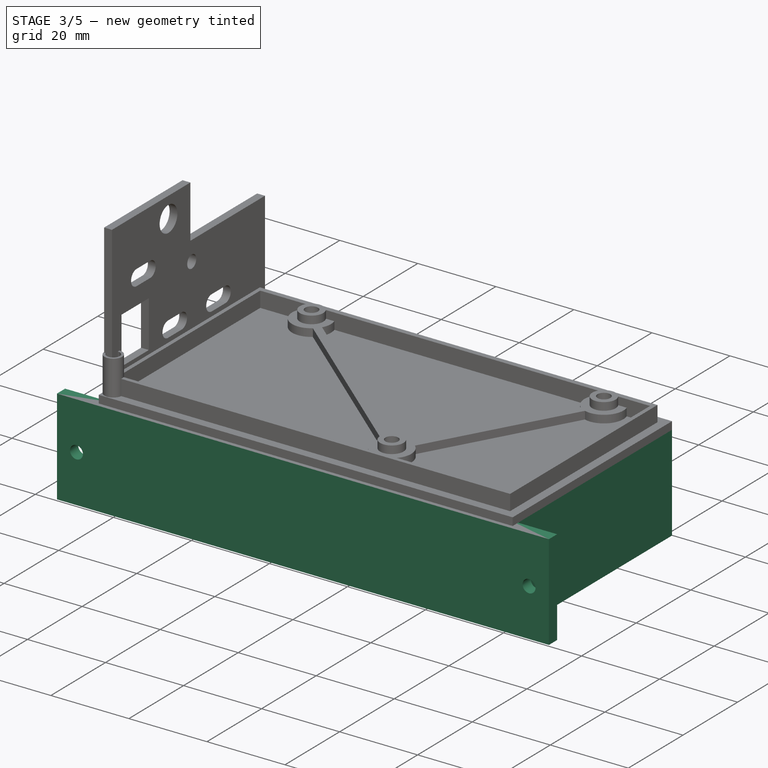
[diagram: stage 3 of 5 — iso view after this stage's code; geometry added in this stage tinted green]
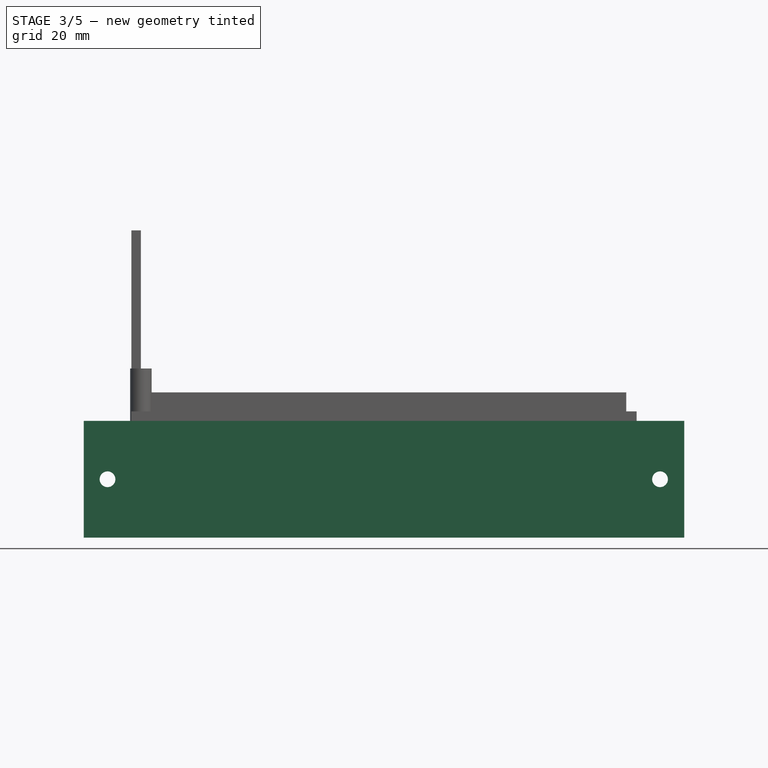
[diagram: stage 3 of 5 — front view after this stage's code; geometry added in this stage tinted green]
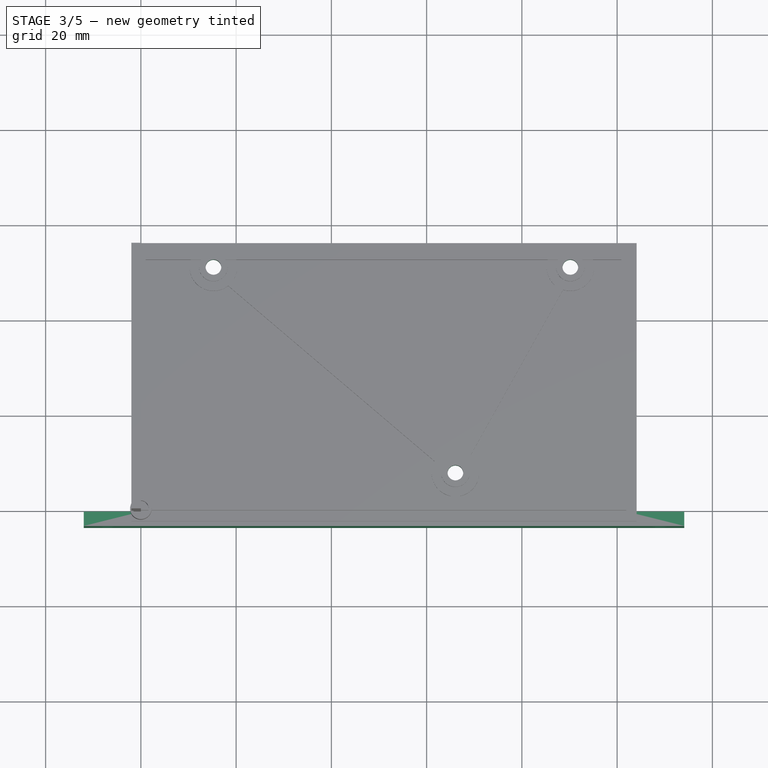
[diagram: stage 3 of 5 — top view after this stage's code; geometry added in this stage tinted green]
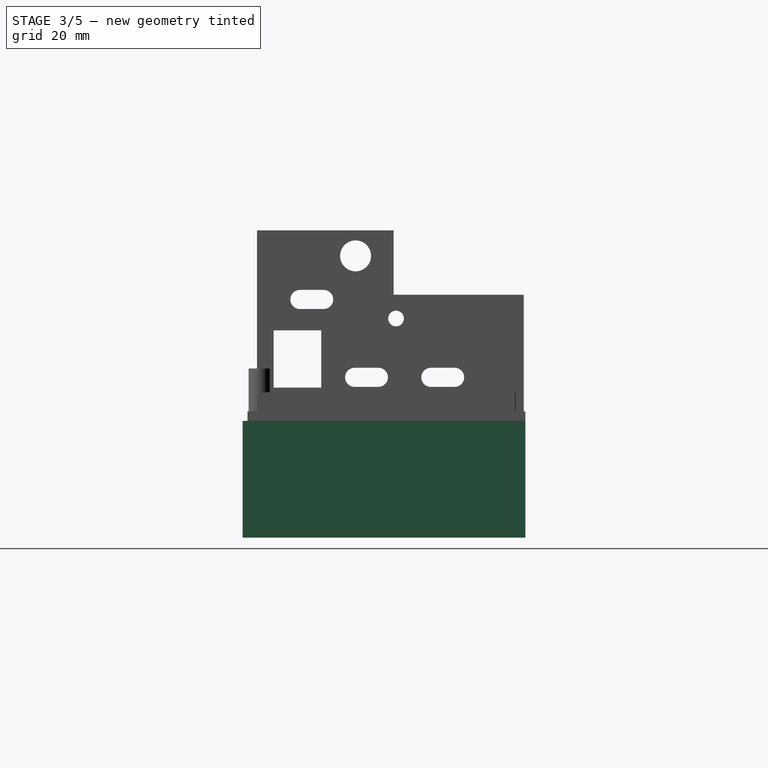
[diagram: stage 3 of 5 — right view after this stage's code; geometry added in this stage tinted green]
FEATURE [Sketcher::SketchObject] Sketch002
  FullyConstrained = true
  MapMode = 5
  Support = -> [XY_Plane]
  expr: Constraints[10] = Sketch.Constraints[10]
  expr: Constraints[16] = Sketch.Constraints[16]
  expr: Constraints[17] = Sketch.Constraints[17]
  expr: Constraints[18] = Sketch.Constraints[18]
  expr: Constraints[19] = Sketch.Constraints[19]
  expr: Constraints[20] = Sketch.Constraints[20]
  expr: Constraints[21] = Sketch.Constraints[21]
  expr: Constraints[23] = Sketch.Constraints[23]
  expr: Constraints[25] = Sketch.Constraints[25]
  expr: Constraints[26] = Sketch.Constraints[26]
  expr: Constraints[37] = Sketch.Constraints[37]
  expr: Constraints[39] = Sketch.Constraints[39]
  expr: Constraints[40] = Sketch.Constraints[40]
  expr: Constraints[41] = Sketch.Constraints[41]
  expr: Constraints[42] = Sketch.Constraints[42]
  expr: Constraints[43] = Sketch.Constraints[43]
  expr: Constraints[55] = Sketch.Constraints[55]
  expr: Constraints[56] = Sketch.Constraints[56]
  expr: Constraints[57] = Sketch.Constraints[57]
  expr: Constraints[80] = Sketch.Constraints[80]
  expr: Constraints[81] = Sketch.Constraints[81]
  expr: Constraints[82] = Sketch.Constraints[82]
  expr: Constraints[83] = Sketch.Constraints[83]
  expr: Constraints[84] = Sketch.Constraints[84]
  expr: Constraints[85] = Sketch.Constraints[85]
  expr: Constraints[9] = Sketch.Constraints[9]
  sketch-geometry (32):
    g0: LineSegment StartX=0 StartY=0 StartZ=0 EndX=101.6 EndY=0 EndZ=0
    g1: LineSegment StartX=101.6 StartY=0 StartZ=0 EndX=101.6 EndY=53.34 EndZ=0
    g2: LineSegment StartX=101.6 StartY=53.34 StartZ=0 EndX=0 EndY=53.34 EndZ=0
    g3: LineSegment StartX=0 StartY=53.34 StartZ=0 EndX=0 EndY=0 EndZ=0
    g4: Circle CenterX=15.24 CenterY=50.8 CenterZ=0 NormalX=0 NormalY=0 NormalZ=1 AngleXU=0 Radius=1.65
    g5: Circle CenterX=90.17 CenterY=50.8 CenterZ=0 NormalX=0 NormalY=0 NormalZ=1 AngleXU=0 Radius=1.65
    g6: Circle CenterX=13.97 CenterY=2.54 CenterZ=0 NormalX=0 NormalY=0 NormalZ=1 AngleXU=0 Radius=1.65
    g7: Circle CenterX=96.52 CenterY=2.54 CenterZ=0 NormalX=0 NormalY=0 NormalZ=1 AngleXU=0 Radius=1.65
    g8: Circle CenterX=66.04 CenterY=7.62 CenterZ=0 NormalX=0 NormalY=0 NormalZ=1 AngleXU=0 Radius=1.65
    g9: Circle CenterX=56.67 CenterY=30.61 CenterZ=0 NormalX=0 NormalY=0 NormalZ=1 AngleXU=0 Radius=1.65
    g10: LineSegment StartX=0 StartY=0 StartZ=0 EndX=39 EndY=0 EndZ=0
    g11: LineSegment StartX=39 StartY=0 StartZ=0 EndX=39 EndY=25.7 EndZ=0
    g12: LineSegment StartX=39 StartY=25.7 StartZ=0 EndX=0 EndY=25.7 EndZ=0
    g13: LineSegment StartX=0 StartY=25.7 StartZ=0 EndX=0 EndY=0 EndZ=0
    g14: Circle CenterX=36.65 CenterY=23.19 CenterZ=0 NormalX=0 NormalY=0 NormalZ=1 AngleXU=0 Radius=1.65
    g15: Circle CenterX=36.65 CenterY=2.54 CenterZ=0 NormalX=0 NormalY=0 NormalZ=1 AngleXU=0 Radius=1.65
    g16: Circle CenterX=15.24 CenterY=50.8 CenterZ=0 NormalX=0 NormalY=0 NormalZ=1 AngleXU=0 Radius=2.65
    g17: Circle CenterX=90.17 CenterY=50.8 CenterZ=0 NormalX=0 NormalY=0 NormalZ=1 AngleXU=0 Radius=2.65
    g18: Circle CenterX=56.67 CenterY=30.61 CenterZ=0 NormalX=0 NormalY=0 NormalZ=1 AngleXU=0 Radius=2.65
    g19: Circle CenterX=96.52 CenterY=2.54 CenterZ=0 NormalX=0 NormalY=0 NormalZ=1 AngleXU=0 Radius=2.65
    g20: Circle CenterX=13.97 CenterY=2.54 CenterZ=0 NormalX=0 NormalY=0 NormalZ=1 AngleXU=0 Radius=2.65
    g21: Circle CenterX=66.04 CenterY=7.62 CenterZ=0 NormalX=0 NormalY=0 NormalZ=1 AngleXU=0 Radius=2.65
    g22: LineSegment StartX=0 StartY=53.84 StartZ=0 EndX=0 EndY=26.2 EndZ=0
    g23: LineSegment StartX=0 StartY=26.2 StartZ=0 EndX=34.3 EndY=26.2 EndZ=0
    g24: LineSegment StartX=34.3 StartY=26.2 StartZ=0 EndX=34.3 EndY=19.35 EndZ=0
    g25: LineSegment StartX=34.3 StartY=19.35 StartZ=0 EndX=39 EndY=19.35 EndZ=0
    g26: LineSegment StartX=39 StartY=19.35 StartZ=0 EndX=39 EndY=6.35 EndZ=0
    g27: LineSegment StartX=39 StartY=6.35 StartZ=0 EndX=34.3 EndY=6.35 EndZ=0
    g28: LineSegment StartX=34.3 StartY=6.35 StartZ=0 EndX=34.3 EndY=-0.5 EndZ=0
    g29: LineSegment StartX=34.3 StartY=-0.5 StartZ=0 EndX=102.1 EndY=-0.5 EndZ=0
    g30: LineSegment StartX=102.1 StartY=-0.5 StartZ=0 EndX=102.1 EndY=53.84 EndZ=0
    g31: LineSegment StartX=102.1 StartY=53.84 StartZ=0 EndX=0 EndY=53.84 EndZ=0
  constraints (88):
    c: Coincident(g0,g1)
    c: Coincident(g1,g2)
    c: Coincident(g2,g3)
    c: Coincident(g3,g0)
    c: Horizontal(g0)
    c: Horizontal(g2)
    c: Vertical(g1)
    c: Vertical(g3)
    c: Coincident(g0,g-1)
    c: DistanceY(g3,g3) = 53.34
    c: DistanceX(g0,g0) = 101.6
    c: Equal(g6,g4)
    c: Equal(g6,g9)
    c: Equal(g6,g8)
    c: Equal(g6,g5)
    c: Equal(g6,g7)
    c: Diameter(g6) = 3.3
    c: DistanceX(g0,g6) = 13.97
    c: DistanceY(g0,g6) = 2.54
    c: DistanceY(g0,g4) = 50.8
    c: DistanceX(g0,g4) = 15.24
    c: DistanceX(g0,g7) = 96.52
    c: Horizontal(g6,g7)
    c: DistanceX(g0,g5) = 90.17
    c: Horizontal(g4,g5)
    c: DistanceX(g0,g8) = 66.04
    c: DistanceY(g0,g8) = 7.62
    c: Coincident(g10,g11)
    c: Coincident(g11,g12)
    c: Coincident(g12,g13)
    c: Coincident(g13,g10)
    c: Horizontal(g10)
    c: Horizontal(g12)
    c: Vertical(g11)
    c: Vertical(g13)
    c: Coincident(g10,g0)
    c: Equal(g14,g15)
    c: Diameter(g14) = 3.3
    c: Vertical(g14,g15)
    c: DistanceY(g0,g12) = 25.7
    c: DistanceX(g0,g10) = 39
    c: DistanceX(g0,g15) = 36.65
    c: DistanceY(g15,g14) = 20.65
    c: DistanceY(g0,g15) = 2.54
    c: Coincident(g16,g4)
    c: Coincident(g17,g5)
    c: Coincident(g18,g9)
    c: Coincident(g19,g7)
    c: Coincident(g20,g6)
    c: Coincident(g21,g8)
    c: Equal(g16,g17)
    c: Equal(g16,g18)
    c: Equal(g16,g21)
    c: Equal(g16,g19)
    c: Equal(g16,g20)
    c: Diameter(g16) = 5.3
    c: DistanceY(g9,g5) = 20.19
    c: DistanceX(g9,g5) = 33.5
    c: PointOnObject(g22,g-2)
    c: PointOnObject(g22,g3)
    c: Coincident(g22,g23)
    c: Horizontal(g23)
    c: Coincident(g23,g24)
    c: Vertical(g24)
    c: Coincident(g24,g25)
    c: PointOnObject(g25,g11)
    c: Horizontal(g25)
    c: Coincident(g25,g26)
    c: PointOnObject(g26,g11)
    c: Coincident(g26,g27)
    c: Horizontal(g27)
    c: Coincident(g27,g28)
    c: Vertical(g28)
    c: Coincident(g28,g29)
    c: Horizontal(g29)
    c: Coincident(g29,g30)
    c: Vertical(g30)
    c: Coincident(g30,g31)
    c: Coincident(g31,g22)
    c: Horizontal(g31)
    c: DistanceY(g2,g22) = 0.5
    c: DistanceX(g1,g30) = 0.5
    c: DistanceY(g29,g0) = 0.5
    c: DistanceY(g12,g22) = 0.5
    c: DistanceY(g26,g25) = 13
    c: DistanceX(g23,g14) = 2.35
    c: Equal(g24,g28)
    c: Vertical(g24,g27)
FEATURE [PartDesign::Pad] Pad001
  BaseFeature = -> Pad
  Direction = (0,0,1)
  Length = 6.5
  Length2 = 10
  Profile = -> Sketch002
  ReferenceAxis = -> Sketch002 [N_Axis]
  Reversed = true
  Type = 0
FEATURE [Sketcher::SketchObject] Sketch003
  FullyConstrained = true
  MapMode = 5
  Support = -> [XY_Plane]
  expr: Constraints[10] = Sketch.Constraints[10]
  expr: Constraints[16] = Sketch.Constraints[16]
  expr: Constraints[17] = Sketch.Constraints[17]
  expr: Constraints[18] = Sketch.Constraints[18]
  expr: Constraints[19] = Sketch.Constraints[19]
  expr: Constraints[20] = Sketch.Constraints[20]
  expr: Constraints[21] = Sketch.Constraints[21]
  expr: Constraints[23] = Sketch.Constraints[23]
  expr: Constraints[25] = Sketch.Constraints[25]
  expr: Constraints[26] = Sketch.Constraints[26]
  expr: Constraints[37] = Sketch.Constraints[37]
  expr: Constraints[39] = Sketch.Constraints[39]
  expr: Constraints[40] = Sketch.Constraints[40]
  expr: Constraints[41] = Sketch.Constraints[41]
  expr: Constraints[42] = Sketch.Constraints[42]
  expr: Constraints[43] = Sketch.Constraints[43]
  expr: Constraints[55] = Sketch.Constraints[55]
  expr: Constraints[56] = Sketch.Constraints[56]
  expr: Constraints[57] = Sketch.Constraints[57]
  expr: Constraints[80] = Sketch.Constraints[80]
  expr: Constraints[81] = Sketch.Constraints[81]
  expr: Constraints[82] = Sketch.Constraints[82]
  expr: Constraints[83] = Sketch.Constraints[83]
  expr: Constraints[84] = Sketch.Constraints[84]
  expr: Constraints[85] = Sketch.Constraints[85]
  expr: Constraints[9] = Sketch.Constraints[9]
  sketch-geometry (32):
    g0: LineSegment StartX=0 StartY=0 StartZ=0 EndX=101.6 EndY=0 EndZ=0
    g1: LineSegment StartX=101.6 StartY=0 StartZ=0 EndX=101.6 EndY=53.34 EndZ=0
    g2: LineSegment StartX=101.6 StartY=53.34 StartZ=0 EndX=0 EndY=53.34 EndZ=0
    g3: LineSegment StartX=0 StartY=53.34 StartZ=0 EndX=0 EndY=0 EndZ=0
    g4: Circle CenterX=15.24 CenterY=50.8 CenterZ=0 NormalX=0 NormalY=0 NormalZ=1 AngleXU=0 Radius=1.65
    g5: Circle CenterX=90.17 CenterY=50.8 CenterZ=0 NormalX=0 NormalY=0 NormalZ=1 AngleXU=0 Radius=1.65
    g6: Circle CenterX=13.97 CenterY=2.54 CenterZ=0 NormalX=0 NormalY=0 NormalZ=1 AngleXU=0 Radius=1.65
    g7: Circle CenterX=96.52 CenterY=2.54 CenterZ=0 NormalX=0 NormalY=0 NormalZ=1 AngleXU=0 Radius=1.65
    g8: Circle CenterX=66.04 CenterY=7.62 CenterZ=0 NormalX=0 NormalY=0 NormalZ=1 AngleXU=0 Radius=1.65
    g9: Circle CenterX=56.67 CenterY=30.61 CenterZ=0 NormalX=0 NormalY=0 NormalZ=1 AngleXU=0 Radius=1.65
    g10: LineSegment StartX=0 StartY=0 StartZ=0 EndX=39 EndY=0 EndZ=0
    g11: LineSegment StartX=39 StartY=0 StartZ=0 EndX=39 EndY=25.7 EndZ=0
    g12: LineSegment StartX=39 StartY=25.7 StartZ=0 EndX=0 EndY=25.7 EndZ=0
    g13: LineSegment StartX=0 StartY=25.7 StartZ=0 EndX=0 EndY=0 EndZ=0
    g14: Circle CenterX=36.65 CenterY=23.19 CenterZ=0 NormalX=0 NormalY=0 NormalZ=1 AngleXU=0 Radius=1.65
    g15: Circle CenterX=36.65 CenterY=2.54 CenterZ=0 NormalX=0 NormalY=0 NormalZ=1 AngleXU=0 Radius=1.65
    g16: Circle CenterX=15.24 CenterY=50.8 CenterZ=0 NormalX=0 NormalY=0 NormalZ=1 AngleXU=0 Radius=2.65
    g17: Circle CenterX=90.17 CenterY=50.8 CenterZ=0 NormalX=0 NormalY=0 NormalZ=1 AngleXU=0 Radius=2.65
    g18: Circle CenterX=56.67 CenterY=30.61 CenterZ=0 NormalX=0 NormalY=0 NormalZ=1 AngleXU=0 Radius=2.65
    g19: Circle CenterX=96.52 CenterY=2.54 CenterZ=0 NormalX=0 NormalY=0 NormalZ=1 AngleXU=0 Radius=2.65
    g20: Circle CenterX=13.97 CenterY=2.54 CenterZ=0 NormalX=0 NormalY=0 NormalZ=1 AngleXU=0 Radius=2.65
    g21: Circle CenterX=66.04 CenterY=7.62 CenterZ=0 NormalX=0 NormalY=0 NormalZ=1 AngleXU=0 Radius=2.65
    g22: LineSegment StartX=0 StartY=53.84 StartZ=0 EndX=0 EndY=26.2 EndZ=0
    g23: LineSegment StartX=0 StartY=26.2 StartZ=0 EndX=34.3 EndY=26.2 EndZ=0
    g24: LineSegment StartX=34.3 StartY=26.2 StartZ=0 EndX=34.3 EndY=19.35 EndZ=0
    g25: LineSegment StartX=34.3 StartY=19.35 StartZ=0 EndX=39 EndY=19.35 EndZ=0
    g26: LineSegment StartX=39 StartY=19.35 StartZ=0 EndX=39 EndY=6.35 EndZ=0
    g27: LineSegment StartX=39 StartY=6.35 StartZ=0 EndX=34.3 EndY=6.35 EndZ=0
    g28: LineSegment StartX=34.3 StartY=6.35 StartZ=0 EndX=34.3 EndY=-0.5 EndZ=0
    g29: LineSegment StartX=34.3 StartY=-0.5 StartZ=0 EndX=102.1 EndY=-0.5 EndZ=0
    g30: LineSegment StartX=102.1 StartY=-0.5 StartZ=0 EndX=102.1 EndY=53.84 EndZ=0
    g31: LineSegment StartX=102.1 StartY=53.84 StartZ=0 EndX=0 EndY=53.84 EndZ=0
  constraints (88):
    c: Coincident(g0,g1)
    c: Coincident(g1,g2)
    c: Coincident(g2,g3)
    c: Coincident(g3,g0)
    c: Horizontal(g0)
    c: Horizontal(g2)
    c: Vertical(g1)
    c: Vertical(g3)
    c: Coincident(g0,g-1)
    c: DistanceY(g3,g3) = 53.34
    c: DistanceX(g0,g0) = 101.6
    c: Equal(g6,g4)
    c: Equal(g6,g9)
    c: Equal(g6,g8)
    c: Equal(g6,g5)
    c: Equal(g6,g7)
    c: Diameter(g6) = 3.3
    c: DistanceX(g0,g6) = 13.97
    c: DistanceY(g0,g6) = 2.54
    c: DistanceY(g0,g4) = 50.8
    c: DistanceX(g0,g4) = 15.24
    c: DistanceX(g0,g7) = 96.52
    c: Horizontal(g6,g7)
    c: DistanceX(g0,g5) = 90.17
    c: Horizontal(g4,g5)
    c: DistanceX(g0,g8) = 66.04
    c: DistanceY(g0,g8) = 7.62
    c: Coincident(g10,g11)
    c: Coincident(g11,g12)
    c: Coincident(g12,g13)
    c: Coincident(g13,g10)
    c: Horizontal(g10)
    c: Horizontal(g12)
    c: Vertical(g11)
    c: Vertical(g13)
    c: Coincident(g10,g0)
    c: Equal(g14,g15)
    c: Diameter(g14) = 3.3
    c: Vertical(g14,g15)
    c: DistanceY(g0,g12) = 25.7
    c: DistanceX(g0,g10) = 39
    c: DistanceX(g0,g15) = 36.65
    c: DistanceY(g15,g14) = 20.65
    c: DistanceY(g0,g15) = 2.54
    c: Coincident(g16,g4)
    c: Coincident(g17,g5)
    c: Coincident(g18,g9)
    c: Coincident(g19,g7)
    c: Coincident(g20,g6)
    c: Coincident(g21,g8)
    c: Equal(g16,g17)
    c: Equal(g16,g18)
    c: Equal(g16,g21)
    c: Equal(g16,g19)
    c: Equal(g16,g20)
    c: Diameter(g16) = 5.3
    c: DistanceY(g9,g5) = 20.19
    c: DistanceX(g9,g5) = 33.5
    c: PointOnObject(g22,g-2)
    c: PointOnObject(g22,g3)
    c: Coincident(g22,g23)
    c: Horizontal(g23)
    c: Coincident(g23,g24)
    c: Vertical(g24)
    c: Coincident(g24,g25)
    c: PointOnObject(g25,g11)
    c: Horizontal(g25)
    c: Coincident(g25,g26)
    c: PointOnObject(g26,g11)
    c: Coincident(g26,g27)
    c: Horizontal(g27)
    c: Coincident(g27,g28)
    c: Vertical(g28)
    c: Coincident(g28,g29)
    c: Horizontal(g29)
    c: Coincident(g29,g30)
    c: Vertical(g30)
    c: Coincident(g30,g31)
    c: Coincident(g31,g22)
    c: Horizontal(g31)
    c: DistanceY(g2,g22) = 0.5
    c: DistanceX(g1,g30) = 0.5
    c: DistanceY(g29,g0) = 0.5
    c: DistanceY(g12,g22) = 0.5
    c: DistanceY(g26,g25) = 13
    c: DistanceX(g23,g14) = 2.35
    c: Equal(g24,g28)
    c: Vertical(g24,g27)
FEATURE [PartDesign::Pad] Pad002
  BaseFeature = -> Pad001
  Direction = (0,0,1)
  Length = 6.5
  Length2 = 10
  Profile = -> Sketch003
  ReferenceAxis = -> Sketch003 [N_Axis]
  Reversed = true
  Type = 0
FEATURE [Sketcher::SketchObject] Sketch004
  FullyConstrained = true
  MapMode = 5
  Support = -> [XY_Plane]
  expr: Constraints[10] = Sketch.Constraints[10]
  expr: Constraints[16] = Sketch.Constraints[16]
  expr: Constraints[17] = Sketch.Constraints[17]
  expr: Constraints[18] = Sketch.Constraints[18]
  expr: Constraints[19] = Sketch.Constraints[19]
  expr: Constraints[20] = Sketch.Constraints[20]
  expr: Constraints[21] = Sketch.Constraints[21]
  expr: Constraints[23] = Sketch.Constraints[23]
  expr: Constraints[25] = Sketch.Constraints[25]
  expr: Constraints[26] = Sketch.Constraints[26]
  expr: Constraints[37] = Sketch.Constraints[37]
  expr: Constraints[39] = Sketch.Constraints[39]
  expr: Constraints[40] = Sketch.Constraints[40]
  expr: Constraints[41] = Sketch.Constraints[41]
  expr: Constraints[42] = Sketch.Constraints[42]
  expr: Constraints[43] = Sketch.Constraints[43]
  expr: Constraints[55] = Sketch.Constraints[55]
  expr: Constraints[56] = Sketch.Constraints[56]
  expr: Constraints[57] = Sketch.Constraints[57]
  expr: Constraints[80] = Sketch.Constraints[80]
  expr: Constraints[81] = Sketch.Constraints[81]
  expr: Constraints[82] = Sketch.Constraints[82]
  expr: Constraints[83] = Sketch.Constraints[83]
  expr: Constraints[84] = Sketch.Constraints[84]
  expr: Constraints[85] = Sketch.Constraints[85]
  expr: Constraints[9] = Sketch.Constraints[9]
  sketch-geometry (32):
    g0: LineSegment StartX=0 StartY=0 StartZ=0 EndX=101.6 EndY=0 EndZ=0
    g1: LineSegment StartX=101.6 StartY=0 StartZ=0 EndX=101.6 EndY=53.34 EndZ=0
    g2: LineSegment StartX=101.6 StartY=53.34 StartZ=0 EndX=0 EndY=53.34 EndZ=0
    g3: LineSegment StartX=0 StartY=53.34 StartZ=0 EndX=0 EndY=0 EndZ=0
    g4: Circle CenterX=15.24 CenterY=50.8 CenterZ=0 NormalX=0 NormalY=0 NormalZ=1 AngleXU=0 Radius=1.65
    g5: Circle CenterX=90.17 CenterY=50.8 CenterZ=0 NormalX=0 NormalY=0 NormalZ=1 AngleXU=0 Radius=1.65
    g6: Circle CenterX=13.97 CenterY=2.54 CenterZ=0 NormalX=0 NormalY=0 NormalZ=1 AngleXU=0 Radius=1.65
    g7: Circle CenterX=96.52 CenterY=2.54 CenterZ=0 NormalX=0 NormalY=0 NormalZ=1 AngleXU=0 Radius=1.65
    g8: Circle CenterX=66.04 CenterY=7.62 CenterZ=0 NormalX=0 NormalY=0 NormalZ=1 AngleXU=0 Radius=1.65
    g9: Circle CenterX=56.67 CenterY=30.61 CenterZ=0 NormalX=0 NormalY=0 NormalZ=1 AngleXU=0 Radius=1.65
    g10: LineSegment StartX=0 StartY=0 StartZ=0 EndX=39 EndY=0 EndZ=0
    g11: LineSegment StartX=39 StartY=0 StartZ=0 EndX=39 EndY=25.7 EndZ=0
    g12: LineSegment StartX=39 StartY=25.7 StartZ=0 EndX=0 EndY=25.7 EndZ=0
    g13: LineSegment StartX=0 StartY=25.7 StartZ=0 EndX=0 EndY=0 EndZ=0
    g14: Circle CenterX=36.65 CenterY=23.19 CenterZ=0 NormalX=0 NormalY=0 NormalZ=1 AngleXU=0 Radius=1.65
    g15: Circle CenterX=36.65 CenterY=2.54 CenterZ=0 NormalX=0 NormalY=0 NormalZ=1 AngleXU=0 Radius=1.65
    g16: Circle CenterX=15.24 CenterY=50.8 CenterZ=0 NormalX=0 NormalY=0 NormalZ=1 AngleXU=0 Radius=2.65
    g17: Circle CenterX=90.17 CenterY=50.8 CenterZ=0 NormalX=0 NormalY=0 NormalZ=1 AngleXU=0 Radius=2.65
    g18: Circle CenterX=56.67 CenterY=30.61 CenterZ=0 NormalX=0 NormalY=0 NormalZ=1 AngleXU=0 Radius=2.65
    g19: Circle CenterX=96.52 CenterY=2.54 CenterZ=0 NormalX=0 NormalY=0 NormalZ=1 AngleXU=0 Radius=2.65
    g20: Circle CenterX=13.97 CenterY=2.54 CenterZ=0 NormalX=0 NormalY=0 NormalZ=1 AngleXU=0 Radius=2.65
    g21: Circle CenterX=66.04 CenterY=7.62 CenterZ=0 NormalX=0 NormalY=0 NormalZ=1 AngleXU=0 Radius=2.65
    g22: LineSegment StartX=0 StartY=53.84 StartZ=0 EndX=0 EndY=26.2 EndZ=0
    g23: LineSegment StartX=0 StartY=26.2 StartZ=0 EndX=34.3 EndY=26.2 EndZ=0
    g24: LineSegment StartX=34.3 StartY=26.2 StartZ=0 EndX=34.3 EndY=19.35 EndZ=0
    g25: LineSegment StartX=34.3 StartY=19.35 StartZ=0 EndX=39 EndY=19.35 EndZ=0
    g26: LineSegment StartX=39 StartY=19.35 StartZ=0 EndX=39 EndY=6.35 EndZ=0
    g27: LineSegment StartX=39 StartY=6.35 StartZ=0 EndX=34.3 EndY=6.35 EndZ=0
    g28: LineSegment StartX=34.3 StartY=6.35 StartZ=0 EndX=34.3 EndY=-0.5 EndZ=0
    g29: LineSegment StartX=34.3 StartY=-0.5 StartZ=0 EndX=102.1 EndY=-0.5 EndZ=0
    g30: LineSegment StartX=102.1 StartY=-0.5 StartZ=0 EndX=102.1 EndY=53.84 EndZ=0
    g31: LineSegment StartX=102.1 StartY=53.84 StartZ=0 EndX=0 EndY=53.84 EndZ=0
  constraints (88):
    c: Coincident(g0,g1)
    c: Coincident(g1,g2)
    c: Coincident(g2,g3)
    c: Coincident(g3,g0)
    c: Horizontal(g0)
    c: Horizontal(g2)
    c: Vertical(g1)
    c: Vertical(g3)
    c: Coincident(g0,g-1)
    c: DistanceY(g3,g3) = 53.34
    c: DistanceX(g0,g0) = 101.6
    c: Equal(g6,g4)
    c: Equal(g6,g9)
    c: Equal(g6,g8)
    c: Equal(g6,g5)
    c: Equal(g6,g7)
    c: Diameter(g6) = 3.3
    c: DistanceX(g0,g6) = 13.97
    c: DistanceY(g0,g6) = 2.54
    c: DistanceY(g0,g4) = 50.8
    c: DistanceX(g0,g4) = 15.24
    c: DistanceX(g0,g7) = 96.52
    c: Horizontal(g6,g7)
    c: DistanceX(g0,g5) = 90.17
    c: Horizontal(g4,g5)
    c: DistanceX(g0,g8) = 66.04
    c: DistanceY(g0,g8) = 7.62
    c: Coincident(g10,g11)
    c: Coincident(g11,g12)
    c: Coincident(g12,g13)
    c: Coincident(g13,g10)
    c: Horizontal(g10)
    c: Horizontal(g12)
    c: Vertical(g11)
    c: Vertical(g13)
    c: Coincident(g10,g0)
    c: Equal(g14,g15)
    c: Diameter(g14) = 3.3
    c: Vertical(g14,g15)
    c: DistanceY(g0,g12) = 25.7
    c: DistanceX(g0,g10) = 39
    c: DistanceX(g0,g15) = 36.65
    c: DistanceY(g15,g14) = 20.65
    c: DistanceY(g0,g15) = 2.54
    c: Coincident(g16,g4)
    c: Coincident(g17,g5)
    c: Coincident(g18,g9)
    c: Coincident(g19,g7)
    c: Coincident(g20,g6)
    c: Coincident(g21,g8)
    c: Equal(g16,g17)
    c: Equal(g16,g18)
    c: Equal(g16,g21)
    c: Equal(g16,g19)
    c: Equal(g16,g20)
    c: Diameter(g16) = 5.3
    c: DistanceY(g9,g5) = 20.19
    c: DistanceX(g9,g5) = 33.5
    c: PointOnObject(g22,g-2)
    c: PointOnObject(g22,g3)
    c: Coincident(g22,g23)
    c: Horizontal(g23)
    c: Coincident(g23,g24)
    c: Vertical(g24)
    c: Coincident(g24,g25)
    c: PointOnObject(g25,g11)
    c: Horizontal(g25)
    c: Coincident(g25,g26)
    c: PointOnObject(g26,g11)
    c: Coincident(g26,g27)
    c: Horizontal(g27)
    c: Coincident(g27,g28)
    c: Vertical(g28)
    c: Coincident(g28,g29)
    c: Horizontal(g29)
    c: Coincident(g29,g30)
    c: Vertical(g30)
    c: Coincident(g30,g31)
    c: Coincident(g31,g22)
    c: Horizontal(g31)
    c: DistanceY(g2,g22) = 0.5
    c: DistanceX(g1,g30) = 0.5
    c: DistanceY(g29,g0) = 0.5
    c: DistanceY(g12,g22) = 0.5
    c: DistanceY(g26,g25) = 13
    c: DistanceX(g23,g14) = 2.35
    c: Equal(g24,g28)
    c: Vertical(g24,g27)
FEATURE [PartDesign::Pad] Pad003
  BaseFeature = -> Pad002
  Direction = (0,0,1)
  Length = 6.5
  Length2 = 10
  Profile = -> Sketch004
  ReferenceAxis = -> Sketch004 [N_Axis]
  Reversed = true
  Type = 0
FEATURE [Sketcher::SketchObject] Sketch005
  FullyConstrained = true
  MapMode = 5
  Support = -> [XY_Plane]
  expr: Constraints[10] = Sketch.Constraints[10]
  expr: Constraints[16] = Sketch.Constraints[16]
  expr: Constraints[17] = Sketch.Constraints[17]
  expr: Constraints[18] = Sketch.Constraints[18]
  expr: Constraints[19] = Sketch.Constraints[19]
  expr: Constraints[20] = Sketch.Constraints[20]
  expr: Constraints[21] = Sketch.Constraints[21]
  expr: Constraints[23] = Sketch.Constraints[23]
  expr: Constraints[25] = Sketch.Constraints[25]
  expr: Constraints[26] = Sketch.Constraints[26]
  expr: Constraints[37] = Sketch.Constraints[37]
  expr: Constraints[39] = Sketch.Constraints[39]
  expr: Constraints[40] = Sketch.Constraints[40]
  expr: Constraints[41] = Sketch.Constraints[41]
  expr: Constraints[42] = Sketch.Constraints[42]
  expr: Constraints[43] = Sketch.Constraints[43]
  expr: Constraints[55] = Sketch.Constraints[55]
  expr: Constraints[56] = Sketch.Constraints[56]
  expr: Constraints[57] = Sketch.Constraints[57]
  expr: Constraints[80] = Sketch.Constraints[80]
  expr: Constraints[81] = Sketch.Constraints[81]
  expr: Constraints[82] = Sketch.Constraints[82]
  expr: Constraints[83] = Sketch.Constraints[83]
  expr: Constraints[84] = Sketch.Constraints[84]
  expr: Constraints[85] = Sketch.Constraints[85]
  expr: Constraints[9] = Sketch.Constraints[9]
  sketch-geometry (32):
    g0: LineSegment StartX=0 StartY=0 StartZ=0 EndX=101.6 EndY=0 EndZ=0
    g1: LineSegment StartX=101.6 StartY=0 StartZ=0 EndX=101.6 EndY=53.34 EndZ=0
    g2: LineSegment StartX=101.6 StartY=53.34 StartZ=0 EndX=0 EndY=53.34 EndZ=0
    g3: LineSegment StartX=0 StartY=53.34 StartZ=0 EndX=0 EndY=0 EndZ=0
    g4: Circle CenterX=15.24 CenterY=50.8 CenterZ=0 NormalX=0 NormalY=0 NormalZ=1 AngleXU=0 Radius=1.65
    g5: Circle CenterX=90.17 CenterY=50.8 CenterZ=0 NormalX=0 NormalY=0 NormalZ=1 AngleXU=0 Radius=1.65
    g6: Circle CenterX=13.97 CenterY=2.54 CenterZ=0 NormalX=0 NormalY=0 NormalZ=1 AngleXU=0 Radius=1.65
    g7: Circle CenterX=96.52 CenterY=2.54 CenterZ=0 NormalX=0 NormalY=0 NormalZ=1 AngleXU=0 Radius=1.65
    g8: Circle CenterX=66.04 CenterY=7.62 CenterZ=0 NormalX=0 NormalY=0 NormalZ=1 AngleXU=0 Radius=1.65
    g9: Circle CenterX=56.67 CenterY=30.61 CenterZ=0 NormalX=0 NormalY=0 NormalZ=1 AngleXU=0 Radius=1.65
    g10: LineSegment StartX=0 StartY=0 StartZ=0 EndX=39 EndY=0 EndZ=0
    g11: LineSegment StartX=39 StartY=0 StartZ=0 EndX=39 EndY=25.7 EndZ=0
    g12: LineSegment StartX=39 StartY=25.7 StartZ=0 EndX=0 EndY=25.7 EndZ=0
    g13: LineSegment StartX=0 StartY=25.7 StartZ=0 EndX=0 EndY=0 EndZ=0
    g14: Circle CenterX=36.65 CenterY=23.19 CenterZ=0 NormalX=0 NormalY=0 NormalZ=1 AngleXU=0 Radius=1.65
    g15: Circle CenterX=36.65 CenterY=2.54 CenterZ=0 NormalX=0 NormalY=0 NormalZ=1 AngleXU=0 Radius=1.65
    g16: Circle CenterX=15.24 CenterY=50.8 CenterZ=0 NormalX=0 NormalY=0 NormalZ=1 AngleXU=0 Radius=2.65
    g17: Circle CenterX=90.17 CenterY=50.8 CenterZ=0 NormalX=0 NormalY=0 NormalZ=1 AngleXU=0 Radius=2.65
    g18: Circle CenterX=56.67 CenterY=30.61 CenterZ=0 NormalX=0 NormalY=0 NormalZ=1 AngleXU=0 Radius=2.65
    g19: Circle CenterX=96.52 CenterY=2.54 CenterZ=0 NormalX=0 NormalY=0 NormalZ=1 AngleXU=0 Radius=2.65
    g20: Circle CenterX=13.97 CenterY=2.54 CenterZ=0 NormalX=0 NormalY=0 NormalZ=1 AngleXU=0 Radius=2.65
    g21: Circle CenterX=66.04 CenterY=7.62 CenterZ=0 NormalX=0 NormalY=0 NormalZ=1 AngleXU=0 Radius=2.65
    g22: LineSegment StartX=0 StartY=53.84 StartZ=0 EndX=0 EndY=26.2 EndZ=0
    g23: LineSegment StartX=0 StartY=26.2 StartZ=0 EndX=34.3 EndY=26.2 EndZ=0
    g24: LineSegment StartX=34.3 StartY=26.2 StartZ=0 EndX=34.3 EndY=19.35 EndZ=0
    g25: LineSegment StartX=34.3 StartY=19.35 StartZ=0 EndX=39 EndY=19.35 EndZ=0
    g26: LineSegment StartX=39 StartY=19.35 StartZ=0 EndX=39 EndY=6.35 EndZ=0
    g27: LineSegment StartX=39 StartY=6.35 StartZ=0 EndX=34.3 EndY=6.35 EndZ=0
    g28: LineSegment StartX=34.3 StartY=6.35 StartZ=0 EndX=34.3 EndY=-0.5 EndZ=0
    g29: LineSegment StartX=34.3 StartY=-0.5 StartZ=0 EndX=102.1 EndY=-0.5 EndZ=0
    g30: LineSegment StartX=102.1 StartY=-0.5 StartZ=0 EndX=102.1 EndY=53.84 EndZ=0
    g31: LineSegment StartX=102.1 StartY=53.84 StartZ=0 EndX=0 EndY=53.84 EndZ=0
  constraints (88):
    c: Coincident(g0,g1)
    c: Coincident(g1,g2)
    c: Coincident(g2,g3)
    c: Coincident(g3,g0)
    c: Horizontal(g0)
    c: Horizontal(g2)
    c: Vertical(g1)
    c: Vertical(g3)
    c: Coincident(g0,g-1)
    c: DistanceY(g3,g3) = 53.34
    c: DistanceX(g0,g0) = 101.6
    c: Equal(g6,g4)
    c: Equal(g6,g9)
    c: Equal(g6,g8)
    c: Equal(g6,g5)
    c: Equal(g6,g7)
    c: Diameter(g6) = 3.3
    c: DistanceX(g0,g6) = 13.97
    c: DistanceY(g0,g6) = 2.54
    c: DistanceY(g0,g4) = 50.8
    c: DistanceX(g0,g4) = 15.24
    c: DistanceX(g0,g7) = 96.52
    c: Horizontal(g6,g7)
    c: DistanceX(g0,g5) = 90.17
    c: Horizontal(g4,g5)
    c: DistanceX(g0,g8) = 66.04
    c: DistanceY(g0,g8) = 7.62
    c: Coincident(g10,g11)
    c: Coincident(g11,g12)
    c: Coincident(g12,g13)
    c: Coincident(g13,g10)
    c: Horizontal(g10)
    c: Horizontal(g12)
    c: Vertical(g11)
    c: Vertical(g13)
    c: Coincident(g10,g0)
    c: Equal(g14,g15)
    c: Diameter(g14) = 3.3
    c: Vertical(g14,g15)
    c: DistanceY(g0,g12) = 25.7
    c: DistanceX(g0,g10) = 39
    c: DistanceX(g0,g15) = 36.65
    c: DistanceY(g15,g14) = 20.65
    c: DistanceY(g0,g15) = 2.54
    c: Coincident(g16,g4)
    c: Coincident(g17,g5)
    c: Coincident(g18,g9)
    c: Coincident(g19,g7)
    c: Coincident(g20,g6)
    c: Coincident(g21,g8)
    c: Equal(g16,g17)
    c: Equal(g16,g18)
    c: Equal(g16,g21)
    c: Equal(g16,g19)
    c: Equal(g16,g20)
    c: Diameter(g16) = 5.3
    c: DistanceY(g9,g5) = 20.19
    c: DistanceX(g9,g5) = 33.5
    c: PointOnObject(g22,g-2)
    c: PointOnObject(g22,g3)
    c: Coincident(g22,g23)
    c: Horizontal(g23)
    c: Coincident(g23,g24)
    c: Vertical(g24)
    c: Coincident(g24,g25)
    c: PointOnObject(g25,g11)
    c: Horizontal(g25)
    c: Coincident(g25,g26)
    c: PointOnObject(g26,g11)
    c: Coincident(g26,g27)
    c: Horizontal(g27)
    c: Coincident(g27,g28)
    c: Vertical(g28)
    c: Coincident(g28,g29)
    c: Horizontal(g29)
    c: Coincident(g29,g30)
    c: Vertical(g30)
    c: Coincident(g30,g31)
    c: Coincident(g31,g22)
    c: Horizontal(g31)
    c: DistanceY(g2,g22) = 0.5
    c: DistanceX(g1,g30) = 0.5
    c: DistanceY(g29,g0) = 0.5
    c: DistanceY(g12,g22) = 0.5
    c: DistanceY(g26,g25) = 13
    c: DistanceX(g23,g14) = 2.35
    c: Equal(g24,g28)
    c: Vertical(g24,g27)
FEATURE [PartDesign::Pad] Pad004
  BaseFeature = -> Pad003
  Direction = (0,0,1)
  Length = 6.5
  Length2 = 10
  Profile = -> Sketch005
  ReferenceAxis = -> Sketch005 [N_Axis]
  Reversed = true
  Type = 0
FEATURE [Sketcher::SketchObject] Sketch006
  FullyConstrained = true
  MapMode = 5
  Support = -> [XY_Plane]
  expr: Constraints[10] = Sketch.Constraints[10]
  expr: Constraints[16] = Sketch.Constraints[16]
  expr: Constraints[17] = Sketch.Constraints[17]
  expr: Constraints[18] = Sketch.Constraints[18]
  expr: Constraints[19] = Sketch.Constraints[19]
  expr: Constraints[20] = Sketch.Constraints[20]
  expr: Constraints[21] = Sketch.Constraints[21]
  expr: Constraints[23] = Sketch.Constraints[23]
  expr: Constraints[25] = Sketch.Constraints[25]
  expr: Constraints[26] = Sketch.Constraints[26]
  expr: Constraints[37] = Sketch.Constraints[37]
  expr: Constraints[39] = Sketch.Constraints[39]
  expr: Constraints[40] = Sketch.Constraints[40]
  expr: Constraints[41] = Sketch.Constraints[41]
  expr: Constraints[42] = Sketch.Constraints[42]
  expr: Constraints[43] = Sketch.Constraints[43]
  expr: Constraints[55] = Sketch.Constraints[55]
  expr: Constraints[56] = Sketch.Constraints[56]
  expr: Constraints[57] = Sketch.Constraints[57]
  expr: Constraints[80] = Sketch.Constraints[80]
  expr: Constraints[81] = Sketch.Constraints[81]
  expr: Constraints[82] = Sketch.Constraints[82]
  expr: Constraints[83] = Sketch.Constraints[83]
  expr: Constraints[84] = Sketch.Constraints[84]
  expr: Constraints[85] = Sketch.Constraints[85]
  expr: Constraints[9] = Sketch.Constraints[9]
  sketch-geometry (32):
    g0: LineSegment StartX=0 StartY=0 StartZ=0 EndX=101.6 EndY=0 EndZ=0
    g1: LineSegment StartX=101.6 StartY=0 StartZ=0 EndX=101.6 EndY=53.34 EndZ=0
    g2: LineSegment StartX=101.6 StartY=53.34 StartZ=0 EndX=0 EndY=53.34 EndZ=0
    g3: LineSegment StartX=0 StartY=53.34 StartZ=0 EndX=0 EndY=0 EndZ=0
    g4: Circle CenterX=15.24 CenterY=50.8 CenterZ=0 NormalX=0 NormalY=0 NormalZ=1 AngleXU=0 Radius=1.65
    g5: Circle CenterX=90.17 CenterY=50.8 CenterZ=0 NormalX=0 NormalY=0 NormalZ=1 AngleXU=0 Radius=1.65
    g6: Circle CenterX=13.97 CenterY=2.54 CenterZ=0 NormalX=0 NormalY=0 NormalZ=1 AngleXU=0 Radius=1.65
    g7: Circle CenterX=96.52 CenterY=2.54 CenterZ=0 NormalX=0 NormalY=0 NormalZ=1 AngleXU=0 Radius=1.65
    g8: Circle CenterX=66.04 CenterY=7.62 CenterZ=0 NormalX=0 NormalY=0 NormalZ=1 AngleXU=0 Radius=1.65
    g9: Circle CenterX=56.67 CenterY=30.61 CenterZ=0 NormalX=0 NormalY=0 NormalZ=1 AngleXU=0 Radius=1.65
    g10: LineSegment StartX=0 StartY=0 StartZ=0 EndX=39 EndY=0 EndZ=0
    g11: LineSegment StartX=39 StartY=0 StartZ=0 EndX=39 EndY=25.7 EndZ=0
    g12: LineSegment StartX=39 StartY=25.7 StartZ=0 EndX=0 EndY=25.7 EndZ=0
    g13: LineSegment StartX=0 StartY=25.7 StartZ=0 EndX=0 EndY=0 EndZ=0
    g14: Circle CenterX=36.65 CenterY=23.19 CenterZ=0 NormalX=0 NormalY=0 NormalZ=1 AngleXU=0 Radius=1.65
    g15: Circle CenterX=36.65 CenterY=2.54 CenterZ=0 NormalX=0 NormalY=0 NormalZ=1 AngleXU=0 Radius=1.65
    g16: Circle CenterX=15.24 CenterY=50.8 CenterZ=0 NormalX=0 NormalY=0 NormalZ=1 AngleXU=0 Radius=2.65
    g17: Circle CenterX=90.17 CenterY=50.8 CenterZ=0 NormalX=0 NormalY=0 NormalZ=1 AngleXU=0 Radius=2.65
    g18: Circle CenterX=56.67 CenterY=30.61 CenterZ=0 NormalX=0 NormalY=0 NormalZ=1 AngleXU=0 Radius=2.65
    g19: Circle CenterX=96.52 CenterY=2.54 CenterZ=0 NormalX=0 NormalY=0 NormalZ=1 AngleXU=0 Radius=2.65
    g20: Circle CenterX=13.97 CenterY=2.54 CenterZ=0 NormalX=0 NormalY=0 NormalZ=1 AngleXU=0 Radius=2.65
    g21: Circle CenterX=66.04 CenterY=7.62 CenterZ=0 NormalX=0 NormalY=0 NormalZ=1 AngleXU=0 Radius=2.65
    g22: LineSegment StartX=0 StartY=53.84 StartZ=0 EndX=0 EndY=26.2 EndZ=0
    g23: LineSegment StartX=0 StartY=26.2 StartZ=0 EndX=34.3 EndY=26.2 EndZ=0
    g24: LineSegment StartX=34.3 StartY=26.2 StartZ=0 EndX=34.3 EndY=19.35 EndZ=0
    g25: LineSegment StartX=34.3 StartY=19.35 StartZ=0 EndX=39 EndY=19.35 EndZ=0
    g26: LineSegment StartX=39 StartY=19.35 StartZ=0 EndX=39 EndY=6.35 EndZ=0
    g27: LineSegment StartX=39 StartY=6.35 StartZ=0 EndX=34.3 EndY=6.35 EndZ=0
    g28: LineSegment StartX=34.3 StartY=6.35 StartZ=0 EndX=34.3 EndY=-0.5 EndZ=0
    g29: LineSegment StartX=34.3 StartY=-0.5 StartZ=0 EndX=102.1 EndY=-0.5 EndZ=0
    g30: LineSegment StartX=102.1 StartY=-0.5 StartZ=0 EndX=102.1 EndY=53.84 EndZ=0
    g31: LineSegment StartX=102.1 StartY=53.84 StartZ=0 EndX=0 EndY=53.84 EndZ=0
  constraints (88):
    c: Coincident(g0,g1)
    c: Coincident(g1,g2)
    c: Coincident(g2,g3)
    c: Coincident(g3,g0)
    c: Horizontal(g0)
    c: Horizontal(g2)
    c: Vertical(g1)
    c: Vertical(g3)
    c: Coincident(g0,g-1)
    c: DistanceY(g3,g3) = 53.34
    c: DistanceX(g0,g0) = 101.6
    c: Equal(g6,g4)
    c: Equal(g6,g9)
    c: Equal(g6,g8)
    c: Equal(g6,g5)
    c: Equal(g6,g7)
    c: Diameter(g6) = 3.3
    c: DistanceX(g0,g6) = 13.97
    c: DistanceY(g0,g6) = 2.54
    c: DistanceY(g0,g4) = 50.8
    c: DistanceX(g0,g4) = 15.24
    c: DistanceX(g0,g7) = 96.52
    c: Horizontal(g6,g7)
    c: DistanceX(g0,g5) = 90.17
    c: Horizontal(g4,g5)
    c: DistanceX(g0,g8) = 66.04
    c: DistanceY(g0,g8) = 7.62
    c: Coincident(g10,g11)
    c: Coincident(g11,g12)
    c: Coincident(g12,g13)
    c: Coincident(g13,g10)
    c: Horizontal(g10)
    c: Horizontal(g12)
    c: Vertical(g11)
    c: Vertical(g13)
    c: Coincident(g10,g0)
    c: Equal(g14,g15)
    c: Diameter(g14) = 3.3
    c: Vertical(g14,g15)
    c: DistanceY(g0,g12) = 25.7
    c: DistanceX(g0,g10) = 39
    c: DistanceX(g0,g15) = 36.65
    c: DistanceY(g15,g14) = 20.65
    c: DistanceY(g0,g15) = 2.54
    c: Coincident(g16,g4)
    c: Coincident(g17,g5)
    c: Coincident(g18,g9)
    c: Coincident(g19,g7)
    c: Coincident(g20,g6)
    c: Coincident(g21,g8)
    c: Equal(g16,g17)
    c: Equal(g16,g18)
    c: Equal(g16,g21)
    c: Equal(g16,g19)
    c: Equal(g16,g20)
    c: Diameter(g16) = 5.3
    c: DistanceY(g9,g5) = 20.19
    c: DistanceX(g9,g5) = 33.5
    c: PointOnObject(g22,g-2)
    c: PointOnObject(g22,g3)
    c: Coincident(g22,g23)
    c: Horizontal(g23)
    c: Coincident(g23,g24)
    c: Vertical(g24)
    c: Coincident(g24,g25)
    c: PointOnObject(g25,g11)
    c: Horizontal(g25)
    c: Coincident(g25,g26)
    c: PointOnObject(g26,g11)
    c: Coincident(g26,g27)
    c: Horizontal(g27)
    c: Coincident(g27,g28)
    c: Vertical(g28)
    c: Coincident(g28,g29)
    c: Horizontal(g29)
    c: Coincident(g29,g30)
    c: Vertical(g30)
    c: Coincident(g30,g31)
    c: Coincident(g31,g22)
    c: Horizontal(g31)
    c: DistanceY(g2,g22) = 0.5
    c: DistanceX(g1,g30) = 0.5
    c: DistanceY(g29,g0) = 0.5
    c: DistanceY(g12,g22) = 0.5
    c: DistanceY(g26,g25) = 13
    c: DistanceX(g23,g14) = 2.35
    c: Equal(g24,g28)
    c: Vertical(g24,g27)
FEATURE [PartDesign::Pad] Pad005
  BaseFeature = -> Pad004
  Direction = (0,0,1)
  Length = 6.5
  Length2 = 10
  Profile = -> Sketch006
  ReferenceAxis = -> Sketch006 [N_Axis]
  Reversed = true
  Type = 0
FEATURE [Sketcher::SketchObject] Sketch007
  FullyConstrained = true
  MapMode = 5
  Support = -> [XY_Plane]
  expr: Constraints[10] = Sketch.Constraints[10]
  expr: Constraints[16] = Sketch.Constraints[16]
  expr: Constraints[17] = Sketch.Constraints[17]
  expr: Constraints[18] = Sketch.Constraints[18]
  expr: Constraints[19] = Sketch.Constraints[19]
  expr: Constraints[20] = Sketch.Constraints[20]
  expr: Constraints[21] = Sketch.Constraints[21]
  expr: Constraints[23] = Sketch.Constraints[23]
  expr: Constraints[25] = Sketch.Constraints[25]
  expr: Constraints[26] = Sketch.Constraints[26]
  expr: Constraints[37] = Sketch.Constraints[37]
  expr: Constraints[39] = Sketch.Constraints[39]
  expr: Constraints[40] = Sketch.Constraints[40]
  expr: Constraints[41] = Sketch.Constraints[41]
  expr: Constraints[42] = Sketch.Constraints[42]
  expr: Constraints[43] = Sketch.Constraints[43]
  expr: Constraints[55] = Sketch.Constraints[55]
  expr: Constraints[56] = Sketch.Constraints[56]
  expr: Constraints[57] = Sketch.Constraints[57]
  expr: Constraints[80] = Sketch.Constraints[80]
  expr: Constraints[81] = Sketch.Constraints[81]
  expr: Constraints[82] = Sketch.Constraints[82]
  expr: Constraints[83] = Sketch.Constraints[83]
  expr: Constraints[84] = Sketch.Constraints[84]
  expr: Constraints[85] = Sketch.Constraints[85]
  expr: Constraints[9] = Sketch.Constraints[9]
  sketch-geometry (40):
    g0: LineSegment StartX=0 StartY=0 StartZ=0 EndX=101.6 EndY=0 EndZ=0
    g1: LineSegment StartX=101.6 StartY=0 StartZ=0 EndX=101.6 EndY=53.34 EndZ=0
    g2: LineSegment StartX=101.6 StartY=53.34 StartZ=0 EndX=0 EndY=53.34 EndZ=0
    g3: LineSegment StartX=0 StartY=53.34 StartZ=0 EndX=0 EndY=0 EndZ=0
    g4: Circle CenterX=15.24 CenterY=50.8 CenterZ=0 NormalX=0 NormalY=0 NormalZ=1 AngleXU=0 Radius=1.65
    g5: Circle CenterX=90.17 CenterY=50.8 CenterZ=0 NormalX=0 NormalY=0 NormalZ=1 AngleXU=0 Radius=1.65
    g6: Circle CenterX=13.97 CenterY=2.54 CenterZ=0 NormalX=0 NormalY=0 NormalZ=1 AngleXU=0 Radius=1.65
    g7: Circle CenterX=96.52 CenterY=2.54 CenterZ=0 NormalX=0 NormalY=0 NormalZ=1 AngleXU=0 Radius=1.65
    g8: Circle CenterX=66.04 CenterY=7.62 CenterZ=0 NormalX=0 NormalY=0 NormalZ=1 AngleXU=0 Radius=1.65
    g9: Circle CenterX=56.67 CenterY=30.61 CenterZ=0 NormalX=0 NormalY=0 NormalZ=1 AngleXU=0 Radius=1.65
    g10: LineSegment StartX=0 StartY=0 StartZ=0 EndX=39 EndY=0 EndZ=0
    g11: LineSegment StartX=39 StartY=0 StartZ=0 EndX=39 EndY=25.7 EndZ=0
    g12: LineSegment StartX=39 StartY=25.7 StartZ=0 EndX=0 EndY=25.7 EndZ=0
    g13: LineSegment StartX=0 StartY=25.7 StartZ=0 EndX=0 EndY=0 EndZ=0
    g14: Circle CenterX=36.65 CenterY=23.19 CenterZ=0 NormalX=0 NormalY=0 NormalZ=1 AngleXU=0 Radius=1.65
    g15: Circle CenterX=36.65 CenterY=2.54 CenterZ=0 NormalX=0 NormalY=0 NormalZ=1 AngleXU=0 Radius=1.65
    g16: Circle CenterX=15.24 CenterY=50.8 CenterZ=0 NormalX=0 NormalY=0 NormalZ=1 AngleXU=0 Radius=2.65
    g17: Circle CenterX=90.17 CenterY=50.8 CenterZ=0 NormalX=0 NormalY=0 NormalZ=1 AngleXU=0 Radius=2.65
    g18: Circle CenterX=56.67 CenterY=30.61 CenterZ=0 NormalX=0 NormalY=0 NormalZ=1 AngleXU=0 Radius=2.65
    g19: Circle CenterX=96.52 CenterY=2.54 CenterZ=0 NormalX=0 NormalY=0 NormalZ=1 AngleXU=0 Radius=2.65
    g20: Circle CenterX=13.97 CenterY=2.54 CenterZ=0 NormalX=0 NormalY=0 NormalZ=1 AngleXU=0 Radius=2.65
    g21: Circle CenterX=66.04 CenterY=7.62 CenterZ=0 NormalX=0 NormalY=0 NormalZ=1 AngleXU=0 Radius=2.65
    g22: LineSegment StartX=0 StartY=53.84 StartZ=0 EndX=0 EndY=26.2 EndZ=0
    g23: LineSegment StartX=0 StartY=26.2 StartZ=0 EndX=34.3 EndY=26.2 EndZ=0
    g24: LineSegment StartX=34.3 StartY=26.2 StartZ=0 EndX=34.3 EndY=19.35 EndZ=0
    g25: LineSegment StartX=34.3 StartY=19.35 StartZ=0 EndX=39 EndY=19.35 EndZ=0
    g26: LineSegment StartX=39 StartY=19.35 StartZ=0 EndX=39 EndY=6.35 EndZ=0
    g27: LineSegment StartX=39 StartY=6.35 StartZ=0 EndX=34.3 EndY=6.35 EndZ=0
    g28: LineSegment StartX=34.3 StartY=6.35 StartZ=0 EndX=34.3 EndY=-0.5 EndZ=0
    g29: LineSegment StartX=34.3 StartY=-0.5 StartZ=0 EndX=102.1 EndY=-0.5 EndZ=0
    g30: LineSegment StartX=102.1 StartY=-0.5 StartZ=0 EndX=102.1 EndY=53.84 EndZ=0
    g31: LineSegment StartX=102.1 StartY=53.84 StartZ=0 EndX=0 EndY=53.84 EndZ=0
    g32: LineSegment StartX=34.3 StartY=-0.5 StartZ=0 EndX=-12 EndY=-0.5 EndZ=0
    g33: LineSegment StartX=-12 StartY=-0.5 StartZ=0 EndX=-12 EndY=-3.5 EndZ=0
    g34: LineSegment StartX=-12 StartY=-3.5 StartZ=0 EndX=114.1 EndY=-3.5 EndZ=0
    g35: LineSegment StartX=114.1 StartY=-3.5 StartZ=0 EndX=114.1 EndY=-0.5 EndZ=0
    g36: LineSegment StartX=114.1 StartY=-0.5 StartZ=0 EndX=104.1 EndY=-0.5 EndZ=0
    g37: LineSegment StartX=104.1 StartY=-0.5 StartZ=0 EndX=104.1 EndY=55.84 EndZ=0
    g38: LineSegment StartX=104.1 StartY=55.84 StartZ=0 EndX=0 EndY=55.84 EndZ=0
    g39: LineSegment StartX=0 StartY=55.84 StartZ=0 EndX=0 EndY=53.84 EndZ=0
  constraints (111):
    c: Coincident(g0,g1)
    c: Coincident(g1,g2)
    c: Coincident(g2,g3)
    c: Coincident(g3,g0)
    c: Horizontal(g0)
    c: Horizontal(g2)
    c: Vertical(g1)
    c: Vertical(g3)
    c: Coincident(g0,g-1)
    c: DistanceY(g3,g3) = 53.34
    c: DistanceX(g0,g0) = 101.6
    c: Equal(g6,g4)
    c: Equal(g6,g9)
    c: Equal(g6,g8)
    c: Equal(g6,g5)
    c: Equal(g6,g7)
    c: Diameter(g6) = 3.3
    c: DistanceX(g0,g6) = 13.97
    c: DistanceY(g0,g6) = 2.54
    c: DistanceY(g0,g4) = 50.8
    c: DistanceX(g0,g4) = 15.24
    c: DistanceX(g0,g7) = 96.52
    c: Horizontal(g6,g7)
    c: DistanceX(g0,g5) = 90.17
    c: Horizontal(g4,g5)
    c: DistanceX(g0,g8) = 66.04
    c: DistanceY(g0,g8) = 7.62
    c: Coincident(g10,g11)
    c: Coincident(g11,g12)
    c: Coincident(g12,g13)
    c: Coincident(g13,g10)
    c: Horizontal(g10)
    c: Horizontal(g12)
    c: Vertical(g11)
    c: Vertical(g13)
    c: Coincident(g10,g0)
    c: Equal(g14,g15)
    c: Diameter(g14) = 3.3
    c: Vertical(g14,g15)
    c: DistanceY(g0,g12) = 25.7
    c: DistanceX(g0,g10) = 39
    c: DistanceX(g0,g15) = 36.65
    c: DistanceY(g15,g14) = 20.65
    c: DistanceY(g0,g15) = 2.54
    c: Coincident(g16,g4)
    c: Coincident(g17,g5)
    c: Coincident(g18,g9)
    c: Coincident(g19,g7)
    c: Coincident(g20,g6)
    c: Coincident(g21,g8)
    c: Equal(g16,g17)
    c: Equal(g16,g18)
    c: Equal(g16,g21)
    c: Equal(g16,g19)
    c: Equal(g16,g20)
    c: Diameter(g16) = 5.3
    c: DistanceY(g9,g5) = 20.19
    c: DistanceX(g9,g5) = 33.5
    c: PointOnObject(g22,g-2)
    c: PointOnObject(g22,g3)
    c: Coincident(g22,g23)
    c: Horizontal(g23)
    c: Coincident(g23,g24)
    c: Vertical(g24)
    c: Coincident(g24,g25)
    c: PointOnObject(g25,g11)
    c: Horizontal(g25)
    c: Coincident(g25,g26)
    c: PointOnObject(g26,g11)
    c: Coincident(g26,g27)
    c: Horizontal(g27)
    c: Coincident(g27,g28)
    c: Vertical(g28)
    c: Coincident(g28,g29)
    c: Horizontal(g29)
    c: Coincident(g29,g30)
    c: Vertical(g30)
    c: Coincident(g30,g31)
    c: Coincident(g31,g22)
    c: Horizontal(g31)
    c: DistanceY(g2,g22) = 0.5
    c: DistanceX(g1,g30) = 0.5
    c: DistanceY(g29,g0) = 0.5
    c: DistanceY(g12,g22) = 0.5
    c: DistanceY(g26,g25) = 13
    c: DistanceX(g23,g14) = 2.35
    c: Equal(g24,g28)
    c: Vertical(g24,g27)
    c: Coincident(g29,g32)
    c: Horizontal(g32)
    c: Coincident(g32,g33)
    c: Vertical(g33)
    c: Coincident(g33,g34)
    c: Horizontal(g34)
    c: Coincident(g34,g35)
    c: Vertical(g35)
    c: Coincident(g35,g36)
    c: Coincident(g36,g37)
    c: Vertical(g37)
    c: Coincident(g37,g38)
    c: PointOnObject(g38,g-2)
    c: Horizontal(g38)
    c: Coincident(g38,g39)
    c: Coincident(g39,g31)
    c: DistanceY(g39,g39) = 2
    c: DistanceX(g30,g37) = 2
    c: Horizontal(g29,g36)
    c: Horizontal(g36)
    c: DistanceX(g36,g35) = 10
    c: DistanceY(g35,g35) = 3
    c: DistanceX(g32,g0) = 12
FEATURE [PartDesign::Pad] Pad006
  BaseFeature = -> Pad005
  Direction = (0,0,1)
  Length = 24.5
  Length2 = 10
  Profile = -> Sketch007
  ReferenceAxis = -> Sketch007 [N_Axis]
  Reversed = true
  Type = 0
FEATURE [PartDesign::SubtractiveCylinder] Cylinder
  Angle = 360
  AttacherType = Attacher::AttachEngine3D
  AttachmentOffset = pos=(109,-12.25,0) rot=(0,0,1;0rad)
  BaseFeature = -> Pad006
  FirstAngle = 0
  Height = 100
  MapMode = 5
  Placement = pos=(109,2.7e-15,-12.25) rot=(1,0,0;1.5708rad)
  Radius = 1.65
  SecondAngle = 0
  Support = -> [XZ_Plane]
FEATURE [PartDesign::SubtractiveCylinder] Cylinder001
  Angle = 360
  AttacherType = Attacher::AttachEngine3D
  AttachmentOffset = pos=(-7,-12.25,0) rot=(0,0,1;0rad)
  BaseFeature = -> Cylinder
  FirstAngle = 0
  Height = 100
  MapMode = 5
  Placement = pos=(-7,2.7e-15,-12.25) rot=(1,0,0;1.5708rad)
  Radius = 1.65
  SecondAngle = 0
  Support = -> [XZ_Plane]
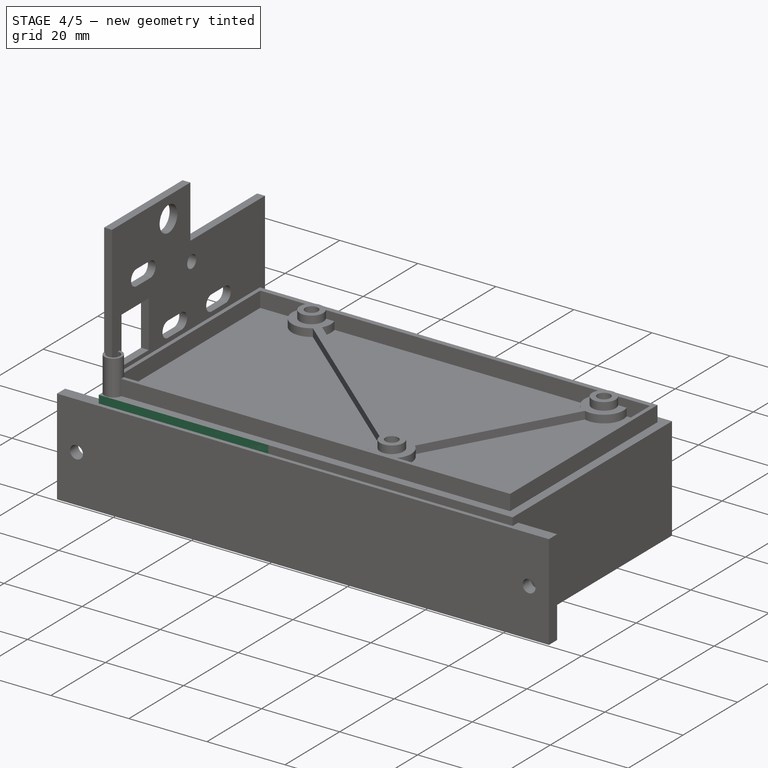
[diagram: stage 4 of 5 — iso view after this stage's code; geometry added in this stage tinted green]
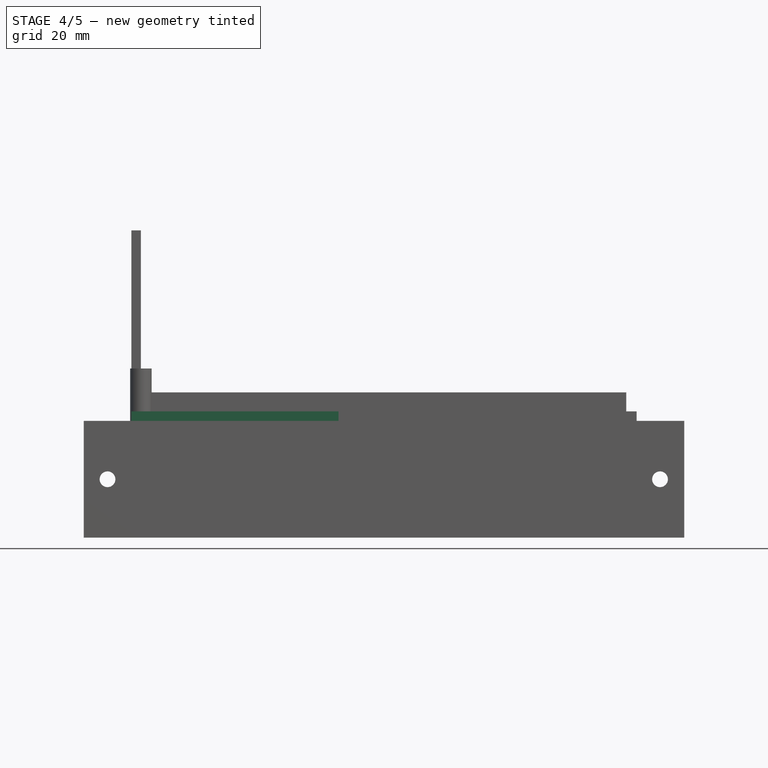
[diagram: stage 4 of 5 — front view after this stage's code; geometry added in this stage tinted green]
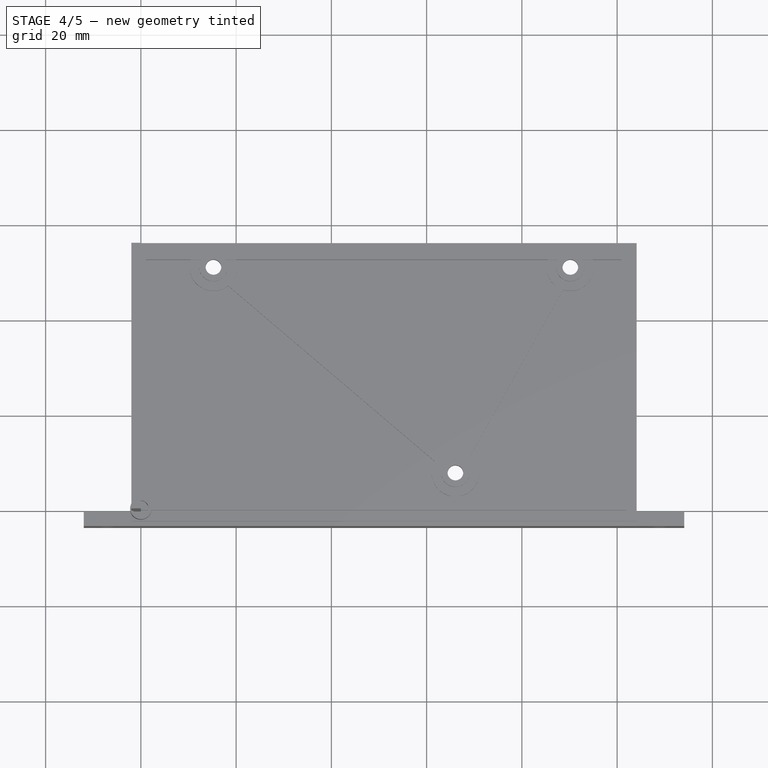
[diagram: stage 4 of 5 — top view after this stage's code; geometry added in this stage tinted green]
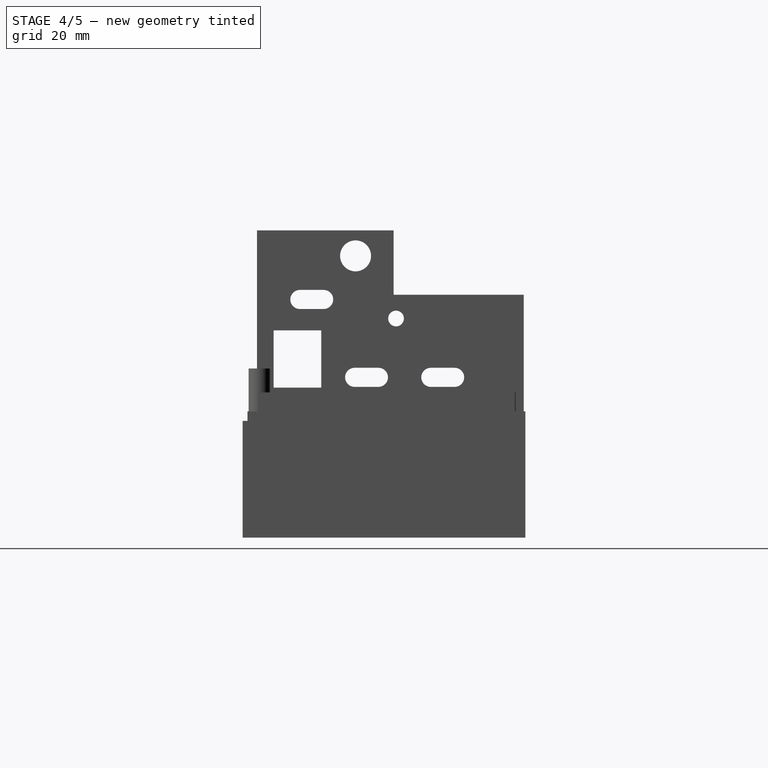
[diagram: stage 4 of 5 — right view after this stage's code; geometry added in this stage tinted green]
FEATURE [Sketcher::SketchObject] Sketch011
  FullyConstrained = true
  MapMode = 5
  Support = -> [XY_Plane002]
  expr: Constraints[105] = Sketch.Constraints[105]
  expr: Constraints[10] = Sketch.Constraints[10]
  expr: Constraints[16] = Sketch.Constraints[16]
  expr: Constraints[17] = Sketch.Constraints[17]
  expr: Constraints[18] = Sketch.Constraints[18]
  expr: Constraints[19] = Sketch.Constraints[19]
  expr: Constraints[20] = Sketch.Constraints[20]
  expr: Constraints[21] = Sketch.Constraints[21]
  expr: Constraints[23] = Sketch.Constraints[23]
  expr: Constraints[25] = Sketch.Constraints[25]
  expr: Constraints[26] = Sketch.Constraints[26]
  expr: Constraints[37] = Sketch.Constraints[37]
  expr: Constraints[39] = Sketch.Constraints[39]
  expr: Constraints[40] = Sketch.Constraints[40]
  expr: Constraints[41] = Sketch.Constraints[41]
  expr: Constraints[42] = Sketch.Constraints[42]
  expr: Constraints[43] = Sketch.Constraints[43]
  expr: Constraints[55] = Sketch.Constraints[55]
  expr: Constraints[56] = Sketch.Constraints[56]
  expr: Constraints[57] = Sketch.Constraints[57]
  expr: Constraints[80] = Sketch.Constraints[80]
  expr: Constraints[81] = Sketch.Constraints[81]
  expr: Constraints[82] = Sketch.Constraints[82]
  expr: Constraints[83] = Sketch.Constraints[83]
  expr: Constraints[84] = Sketch.Constraints[84]
  expr: Constraints[85] = Sketch.Constraints[85]
  expr: Constraints[96] = Sketch.Constraints[96]
  expr: Constraints[97] = Sketch.Constraints[97]
  expr: Constraints[98] = Sketch.Constraints[98]
  expr: Constraints[99] = Sketch.Constraints[99]
  expr: Constraints[9] = Sketch.Constraints[9]
  sketch-geometry (43):
    g0: LineSegment StartX=0 StartY=0 StartZ=0 EndX=101.6 EndY=0 EndZ=0
    g1: LineSegment StartX=101.6 StartY=0 StartZ=0 EndX=101.6 EndY=53.34 EndZ=0
    g2: LineSegment StartX=101.6 StartY=53.34 StartZ=0 EndX=0 EndY=53.34 EndZ=0
    g3: LineSegment StartX=0 StartY=53.34 StartZ=0 EndX=0 EndY=0 EndZ=0
    g4: Circle CenterX=15.24 CenterY=50.8 CenterZ=0 NormalX=0 NormalY=0 NormalZ=1 AngleXU=0 Radius=1.65
    g5: Circle CenterX=90.17 CenterY=50.8 CenterZ=0 NormalX=0 NormalY=0 NormalZ=1 AngleXU=0 Radius=1.65
    g6: Circle CenterX=13.97 CenterY=2.54 CenterZ=0 NormalX=0 NormalY=0 NormalZ=1 AngleXU=0 Radius=1.65
    g7: Circle CenterX=96.52 CenterY=2.54 CenterZ=0 NormalX=0 NormalY=0 NormalZ=1 AngleXU=0 Radius=1.65
    g8: Circle CenterX=66.04 CenterY=7.62 CenterZ=0 NormalX=0 NormalY=0 NormalZ=1 AngleXU=0 Radius=1.65
    g9: Circle CenterX=56.67 CenterY=30.61 CenterZ=0 NormalX=0 NormalY=0 NormalZ=1 AngleXU=0 Radius=1.65
    g10: LineSegment StartX=0 StartY=0 StartZ=0 EndX=39 EndY=0 EndZ=0
    g11: LineSegment StartX=39 StartY=0 StartZ=0 EndX=39 EndY=25.7 EndZ=0
    g12: LineSegment StartX=39 StartY=25.7 StartZ=0 EndX=0 EndY=25.7 EndZ=0
    g13: LineSegment StartX=0 StartY=25.7 StartZ=0 EndX=0 EndY=0 EndZ=0
    g14: Circle CenterX=36.65 CenterY=23.19 CenterZ=0 NormalX=0 NormalY=0 NormalZ=1 AngleXU=0 Radius=1.65
    g15: Circle CenterX=36.65 CenterY=2.54 CenterZ=0 NormalX=0 NormalY=0 NormalZ=1 AngleXU=0 Radius=1.65
    g16: Circle CenterX=15.24 CenterY=50.8 CenterZ=0 NormalX=0 NormalY=0 NormalZ=1 AngleXU=0 Radius=2.65
    g17: Circle CenterX=90.17 CenterY=50.8 CenterZ=0 NormalX=0 NormalY=0 NormalZ=1 AngleXU=0 Radius=2.65
    g18: Circle CenterX=56.67 CenterY=30.61 CenterZ=0 NormalX=0 NormalY=0 NormalZ=1 AngleXU=0 Radius=2.65
    g19: Circle CenterX=96.52 CenterY=2.54 CenterZ=0 NormalX=0 NormalY=0 NormalZ=1 AngleXU=0 Radius=2.65
    g20: Circle CenterX=13.97 CenterY=2.54 CenterZ=0 NormalX=0 NormalY=0 NormalZ=1 AngleXU=0 Radius=2.65
    g21: Circle CenterX=66.04 CenterY=7.62 CenterZ=0 NormalX=0 NormalY=0 NormalZ=1 AngleXU=0 Radius=2.65
    g22: LineSegment StartX=0 StartY=53.84 StartZ=0 EndX=0 EndY=26.2 EndZ=0
    g23: LineSegment StartX=0 StartY=26.2 StartZ=0 EndX=34.3 EndY=26.2 EndZ=0
    g24: LineSegment StartX=34.3 StartY=26.2 StartZ=0 EndX=34.3 EndY=19.35 EndZ=0
    g25: LineSegment StartX=34.3 StartY=19.35 StartZ=0 EndX=39 EndY=19.35 EndZ=0
    g26: LineSegment StartX=39 StartY=19.35 StartZ=0 EndX=39 EndY=6.35 EndZ=0
    g27: LineSegment StartX=39 StartY=6.35 StartZ=0 EndX=34.3 EndY=6.35 EndZ=0
    g28: LineSegment StartX=34.3 StartY=6.35 StartZ=0 EndX=34.3 EndY=-0.5 EndZ=0
    g29: LineSegment StartX=34.3 StartY=-0.5 StartZ=0 EndX=102.1 EndY=-0.5 EndZ=0
    g30: LineSegment StartX=102.1 StartY=-0.5 StartZ=0 EndX=102.1 EndY=53.84 EndZ=0
    g31: LineSegment StartX=102.1 StartY=53.84 StartZ=0 EndX=0 EndY=53.84 EndZ=0
    g32: LineSegment StartX=-2 StartY=-2.5 StartZ=0 EndX=104.1 EndY=-2.5 EndZ=0
    g33: LineSegment StartX=104.1 StartY=-2.5 StartZ=0 EndX=104.1 EndY=55.84 EndZ=0
    g34: LineSegment StartX=104.1 StartY=55.84 StartZ=0 EndX=-2 EndY=55.84 EndZ=0
    g35: LineSegment StartX=-2 StartY=55.84 StartZ=0 EndX=-2 EndY=-2.5 EndZ=0
    g36: Circle CenterX=15.24 CenterY=50.8 CenterZ=0 NormalX=0 NormalY=0 NormalZ=1 AngleXU=0 Radius=2.15
    g37: Circle CenterX=90.17 CenterY=50.8 CenterZ=0 NormalX=0 NormalY=0 NormalZ=1 AngleXU=0 Radius=2.15
    g38: Circle CenterX=66.04 CenterY=7.62 CenterZ=0 NormalX=0 NormalY=0 NormalZ=1 AngleXU=0 Radius=2.15
    g39: LineSegment StartX=0 StartY=26.2 StartZ=0 EndX=39.5 EndY=26.2 EndZ=0
    g40: LineSegment StartX=39.5 StartY=26.2 StartZ=0 EndX=39.5 EndY=-0.5 EndZ=0
    g41: LineSegment StartX=39.5 StartY=-0.5 StartZ=0 EndX=0 EndY=-0.5 EndZ=0
    g42: LineSegment StartX=0 StartY=-0.5 StartZ=0 EndX=0 EndY=26.2 EndZ=0
  constraints (117):
    c: Coincident(g0,g1)
    c: Coincident(g1,g2)
    c: Coincident(g2,g3)
    c: Coincident(g3,g0)
    c: Horizontal(g0)
    c: Horizontal(g2)
    c: Vertical(g1)
    c: Vertical(g3)
    c: Coincident(g0,g-1)
    c: DistanceY(g3,g3) = 53.34
    c: DistanceX(g0,g0) = 101.6
    c: Equal(g6,g4)
    c: Equal(g6,g9)
    c: Equal(g6,g8)
    c: Equal(g6,g5)
    c: Equal(g6,g7)
    c: Diameter(g6) = 3.3
    c: DistanceX(g0,g6) = 13.97
    c: DistanceY(g0,g6) = 2.54
    c: DistanceY(g0,g4) = 50.8
    c: DistanceX(g0,g4) = 15.24
    c: DistanceX(g0,g7) = 96.52
    c: Horizontal(g6,g7)
    c: DistanceX(g0,g5) = 90.17
    c: Horizontal(g4,g5)
    c: DistanceX(g0,g8) = 66.04
    c: DistanceY(g0,g8) = 7.62
    c: Coincident(g10,g11)
    c: Coincident(g11,g12)
    c: Coincident(g12,g13)
    c: Coincident(g13,g10)
    c: Horizontal(g10)
    c: Horizontal(g12)
    c: Vertical(g11)
    c: Vertical(g13)
    c: Coincident(g10,g0)
    c: Equal(g14,g15)
    c: Diameter(g14) = 3.3
    c: Vertical(g14,g15)
    c: DistanceY(g0,g12) = 25.7
    c: DistanceX(g0,g10) = 39
    c: DistanceX(g0,g15) = 36.65
    c: DistanceY(g15,g14) = 20.65
    c: DistanceY(g0,g15) = 2.54
    c: Coincident(g16,g4)
    c: Coincident(g17,g5)
    c: Coincident(g18,g9)
    c: Coincident(g19,g7)
    c: Coincident(g20,g6)
    c: Coincident(g21,g8)
    c: Equal(g16,g17)
    c: Equal(g16,g18)
    c: Equal(g16,g21)
    c: Equal(g16,g19)
    c: Equal(g16,g20)
    c: Diameter(g16) = 5.3
    c: DistanceY(g9,g5) = 20.19
    c: DistanceX(g9,g5) = 33.5
    c: PointOnObject(g22,g-2)
    c: PointOnObject(g22,g3)
    c: Coincident(g22,g23)
    c: Horizontal(g23)
    c: Coincident(g23,g24)
    c: Vertical(g24)
    c: Coincident(g24,g25)
    c: PointOnObject(g25,g11)
    c: Horizontal(g25)
    c: Coincident(g25,g26)
    c: PointOnObject(g26,g11)
    c: Coincident(g26,g27)
    c: Horizontal(g27)
    c: Coincident(g27,g28)
    c: Vertical(g28)
    c: Coincident(g28,g29)
    c: Horizontal(g29)
    c: Coincident(g29,g30)
    c: Vertical(g30)
    c: Coincident(g30,g31)
    c: Coincident(g31,g22)
    c: Horizontal(g31)
    c: DistanceY(g2,g22) = 0.5
    c: DistanceX(g1,g30) = 0.5
    c: DistanceY(g29,g0) = 0.5
    c: DistanceY(g12,g22) = 0.5
    c: DistanceY(g26,g25) = 13
    c: DistanceX(g23,g14) = 2.35
    c: Equal(g24,g28)
    c: Vertical(g24,g27)
    c: Coincident(g32,g33)
    c: Coincident(g33,g34)
    c: Coincident(g34,g35)
    c: Coincident(g35,g32)
    c: Horizontal(g32)
    c: Horizontal(g34)
    c: Vertical(g33)
    c: Vertical(g35)
    c: DistanceX(g29,g32) = 2
    c: DistanceY(g32,g29) = 2
    c: DistanceY(g30,g33) = 2
    c: DistanceX(g34,g22) = 2
    c: Coincident(g36,g4)
    c: Coincident(g37,g5)
    c: Coincident(g38,g8)
    c: Equal(g36,g38)
    c: Equal(g36,g37)
    c: Diameter(g36) = 4.3
    c: Coincident(g39,g40)
    c: Coincident(g40,g41)
    c: Coincident(g41,g42)
    c: Coincident(g42,g39)
    c: Horizontal(g39)
    c: Horizontal(g41)
    c: Vertical(g40)
    c: Vertical(g42)
    c: DistanceX(g11,g39) = 0.5
    c: Coincident(g39,g22)
    c: DistanceY(g40,g10) = 0.5
FEATURE [PartDesign::Pad] Pad010
  Direction = (0,0,1)
  Length = 2
  Length2 = 10
  Profile = -> Sketch011
  ReferenceAxis = -> Sketch011 [N_Axis]
  Type = 0
FEATURE [Sketcher::SketchObject] Sketch012
  FullyConstrained = true
  MapMode = 5
  Support = -> [XY_Plane002]
  expr: Constraints[105] = Sketch011.Constraints[105]
  expr: Constraints[10] = Sketch011.Constraints[10]
  expr: Constraints[111] = Sketch011.Constraints[114]
  expr: Constraints[113] = Sketch011.Constraints[116]
  expr: Constraints[16] = Sketch011.Constraints[16]
  expr: Constraints[17] = Sketch011.Constraints[17]
  expr: Constraints[18] = Sketch011.Constraints[18]
  expr: Constraints[19] = Sketch011.Constraints[19]
  expr: Constraints[20] = Sketch011.Constraints[20]
  expr: Constraints[21] = Sketch011.Constraints[21]
  expr: Constraints[23] = Sketch011.Constraints[23]
  expr: Constraints[25] = Sketch011.Constraints[25]
  expr: Constraints[26] = Sketch011.Constraints[26]
  expr: Constraints[37] = Sketch011.Constraints[37]
  expr: Constraints[39] = Sketch011.Constraints[39]
  expr: Constraints[40] = Sketch011.Constraints[40]
  expr: Constraints[41] = Sketch011.Constraints[41]
  expr: Constraints[42] = Sketch011.Constraints[42]
  expr: Constraints[43] = Sketch011.Constraints[43]
  expr: Constraints[55] = Sketch011.Constraints[55]
  expr: Constraints[56] = Sketch011.Constraints[56]
  expr: Constraints[57] = Sketch011.Constraints[57]
  expr: Constraints[80] = Sketch011.Constraints[80]
  expr: Constraints[81] = Sketch011.Constraints[81]
  expr: Constraints[82] = Sketch011.Constraints[82]
  expr: Constraints[83] = Sketch011.Constraints[83]
  expr: Constraints[84] = Sketch011.Constraints[84]
  expr: Constraints[85] = Sketch011.Constraints[85]
  expr: Constraints[96] = Sketch011.Constraints[96]
  expr: Constraints[97] = Sketch011.Constraints[97]
  expr: Constraints[98] = Sketch011.Constraints[98]
  expr: Constraints[99] = Sketch011.Constraints[99]
  expr: Constraints[9] = Sketch011.Constraints[9]
  sketch-geometry (47):
    g0: LineSegment StartX=0 StartY=0 StartZ=0 EndX=101.6 EndY=0 EndZ=0
    g1: LineSegment StartX=101.6 StartY=0 StartZ=0 EndX=101.6 EndY=53.34 EndZ=0
    g2: LineSegment StartX=101.6 StartY=53.34 StartZ=0 EndX=0 EndY=53.34 EndZ=0
    g3: LineSegment StartX=0 StartY=53.34 StartZ=0 EndX=0 EndY=0 EndZ=0
    g4: Circle CenterX=15.24 CenterY=50.8 CenterZ=0 NormalX=0 NormalY=0 NormalZ=1 AngleXU=0 Radius=1.65
    g5: Circle CenterX=90.17 CenterY=50.8 CenterZ=0 NormalX=0 NormalY=0 NormalZ=1 AngleXU=0 Radius=1.65
    g6: Circle CenterX=13.97 CenterY=2.54 CenterZ=0 NormalX=0 NormalY=0 NormalZ=1 AngleXU=0 Radius=1.65
    g7: Circle CenterX=96.52 CenterY=2.54 CenterZ=0 NormalX=0 NormalY=0 NormalZ=1 AngleXU=0 Radius=1.65
    g8: Circle CenterX=66.04 CenterY=7.62 CenterZ=0 NormalX=0 NormalY=0 NormalZ=1 AngleXU=0 Radius=1.65
    g9: Circle CenterX=56.67 CenterY=30.61 CenterZ=0 NormalX=0 NormalY=0 NormalZ=1 AngleXU=0 Radius=1.65
    g10: LineSegment StartX=0 StartY=0 StartZ=0 EndX=39 EndY=0 EndZ=0
    g11: LineSegment StartX=39 StartY=0 StartZ=0 EndX=39 EndY=25.7 EndZ=0
    g12: LineSegment StartX=39 StartY=25.7 StartZ=0 EndX=0 EndY=25.7 EndZ=0
    g13: LineSegment StartX=0 StartY=25.7 StartZ=0 EndX=0 EndY=0 EndZ=0
    g14: Circle CenterX=36.65 CenterY=23.19 CenterZ=0 NormalX=0 NormalY=0 NormalZ=1 AngleXU=0 Radius=1.65
    g15: Circle CenterX=36.65 CenterY=2.54 CenterZ=0 NormalX=0 NormalY=0 NormalZ=1 AngleXU=0 Radius=1.65
    g16: Circle CenterX=15.24 CenterY=50.8 CenterZ=0 NormalX=0 NormalY=0 NormalZ=1 AngleXU=0 Radius=2.65
    g17: Circle CenterX=90.17 CenterY=50.8 CenterZ=0 NormalX=0 NormalY=0 NormalZ=1 AngleXU=0 Radius=2.65
    g18: Circle CenterX=56.67 CenterY=30.61 CenterZ=0 NormalX=0 NormalY=0 NormalZ=1 AngleXU=0 Radius=2.65
    g19: Circle CenterX=96.52 CenterY=2.54 CenterZ=0 NormalX=0 NormalY=0 NormalZ=1 AngleXU=0 Radius=2.65
    g20: Circle CenterX=13.97 CenterY=2.54 CenterZ=0 NormalX=0 NormalY=0 NormalZ=1 AngleXU=0 Radius=2.65
    g21: Circle CenterX=66.04 CenterY=7.62 CenterZ=0 NormalX=0 NormalY=0 NormalZ=1 AngleXU=0 Radius=2.65
    g22: LineSegment StartX=0 StartY=53.84 StartZ=0 EndX=0 EndY=26.2 EndZ=0
    g23: LineSegment StartX=0 StartY=26.2 StartZ=0 EndX=34.3 EndY=26.2 EndZ=0
    g24: LineSegment StartX=34.3 StartY=26.2 StartZ=0 EndX=34.3 EndY=19.35 EndZ=0
    g25: LineSegment StartX=34.3 StartY=19.35 StartZ=0 EndX=39 EndY=19.35 EndZ=0
    g26: LineSegment StartX=39 StartY=19.35 StartZ=0 EndX=39 EndY=6.35 EndZ=0
    g27: LineSegment StartX=39 StartY=6.35 StartZ=0 EndX=34.3 EndY=6.35 EndZ=0
    g28: LineSegment StartX=34.3 StartY=6.35 StartZ=0 EndX=34.3 EndY=-0.5 EndZ=0
    g29: LineSegment StartX=34.3 StartY=-0.5 StartZ=0 EndX=102.1 EndY=-0.5 EndZ=0
    g30: LineSegment StartX=102.1 StartY=-0.5 StartZ=0 EndX=102.1 EndY=53.84 EndZ=0
    g31: LineSegment StartX=102.1 StartY=53.84 StartZ=0 EndX=0 EndY=53.84 EndZ=0
    g32: LineSegment StartX=-2 StartY=-2.5 StartZ=0 EndX=104.1 EndY=-2.5 EndZ=0
    g33: LineSegment StartX=104.1 StartY=-2.5 StartZ=0 EndX=104.1 EndY=55.84 EndZ=0
    g34: LineSegment StartX=104.1 StartY=55.84 StartZ=0 EndX=-2 EndY=55.84 EndZ=0
    g35: LineSegment StartX=-2 StartY=55.84 StartZ=0 EndX=-2 EndY=-2.5 EndZ=0
    g36: Circle CenterX=15.24 CenterY=50.8 CenterZ=0 NormalX=0 NormalY=0 NormalZ=1 AngleXU=0 Radius=2.15
    g37: Circle CenterX=90.17 CenterY=50.8 CenterZ=0 NormalX=0 NormalY=0 NormalZ=1 AngleXU=0 Radius=2.15
    g38: Circle CenterX=66.04 CenterY=7.62 CenterZ=0 NormalX=0 NormalY=0 NormalZ=1 AngleXU=0 Radius=2.15
    g39: LineSegment StartX=0 StartY=26.2 StartZ=0 EndX=39.5 EndY=26.2 EndZ=0
    g40: LineSegment StartX=39.5 StartY=26.2 StartZ=0 EndX=39.5 EndY=-0.5 EndZ=0
    g41: LineSegment StartX=39.5 StartY=-0.5 StartZ=0 EndX=-2 EndY=-0.5 EndZ=0
    g42: LineSegment StartX=-2 StartY=-0.5 StartZ=0 EndX=-2 EndY=-2.5 EndZ=0
    g43: LineSegment StartX=-2 StartY=-2.5 StartZ=0 EndX=41.5 EndY=-2.5 EndZ=0
    g44: LineSegment StartX=41.5 StartY=-2.5 StartZ=0 EndX=41.5 EndY=28.2 EndZ=0
    g45: LineSegment StartX=41.5 StartY=28.2 StartZ=0 EndX=0 EndY=28.2 EndZ=0
    g46: LineSegment StartX=0 StartY=28.2 StartZ=0 EndX=0 EndY=26.2 EndZ=0
  constraints (128):
    c: Coincident(g0,g1)
    c: Coincident(g1,g2)
    c: Coincident(g2,g3)
    c: Coincident(g3,g0)
    c: Horizontal(g0)
    c: Horizontal(g2)
    c: Vertical(g1)
    c: Vertical(g3)
    c: Coincident(g0,g-1)
    c: DistanceY(g3,g3) = 53.34
    c: DistanceX(g0,g0) = 101.6
    c: Equal(g6,g4)
    c: Equal(g6,g9)
    c: Equal(g6,g8)
    c: Equal(g6,g5)
    c: Equal(g6,g7)
    c: Diameter(g6) = 3.3
    c: DistanceX(g0,g6) = 13.97
    c: DistanceY(g0,g6) = 2.54
    c: DistanceY(g0,g4) = 50.8
    c: DistanceX(g0,g4) = 15.24
    c: DistanceX(g0,g7) = 96.52
    c: Horizontal(g6,g7)
    c: DistanceX(g0,g5) = 90.17
    c: Horizontal(g4,g5)
    c: DistanceX(g0,g8) = 66.04
    c: DistanceY(g0,g8) = 7.62
    c: Coincident(g10,g11)
    c: Coincident(g11,g12)
    c: Coincident(g12,g13)
    c: Coincident(g13,g10)
    c: Horizontal(g10)
    c: Horizontal(g12)
    c: Vertical(g11)
    c: Vertical(g13)
    c: Coincident(g10,g0)
    c: Equal(g14,g15)
    c: Diameter(g14) = 3.3
    c: Vertical(g14,g15)
    c: DistanceY(g0,g12) = 25.7
    c: DistanceX(g0,g10) = 39
    c: DistanceX(g0,g15) = 36.65
    c: DistanceY(g15,g14) = 20.65
    c: DistanceY(g0,g15) = 2.54
    c: Coincident(g16,g4)
    c: Coincident(g17,g5)
    c: Coincident(g18,g9)
    c: Coincident(g19,g7)
    c: Coincident(g20,g6)
    c: Coincident(g21,g8)
    c: Equal(g16,g17)
    c: Equal(g16,g18)
    c: Equal(g16,g21)
    c: Equal(g16,g19)
    c: Equal(g16,g20)
    c: Diameter(g16) = 5.3
    c: DistanceY(g9,g5) = 20.19
    c: DistanceX(g9,g5) = 33.5
    c: PointOnObject(g22,g-2)
    c: PointOnObject(g22,g3)
    c: Coincident(g22,g23)
    c: Horizontal(g23)
    c: Coincident(g23,g24)
    c: Vertical(g24)
    c: Coincident(g24,g25)
    c: PointOnObject(g25,g11)
    c: Horizontal(g25)
    c: Coincident(g25,g26)
    c: PointOnObject(g26,g11)
    c: Coincident(g26,g27)
    c: Horizontal(g27)
    c: Coincident(g27,g28)
    c: Vertical(g28)
    c: Coincident(g28,g29)
    c: Horizontal(g29)
    c: Coincident(g29,g30)
    c: Vertical(g30)
    c: Coincident(g30,g31)
    c: Coincident(g31,g22)
    c: Horizontal(g31)
    c: DistanceY(g2,g22) = 0.5
    c: DistanceX(g1,g30) = 0.5
    c: DistanceY(g29,g0) = 0.5
    c: DistanceY(g12,g22) = 0.5
    c: DistanceY(g26,g25) = 13
    c: DistanceX(g23,g14) = 2.35
    c: Equal(g24,g28)
    c: Vertical(g24,g27)
    c: Coincident(g32,g33)
    c: Coincident(g33,g34)
    c: Coincident(g34,g35)
    c: Coincident(g35,g32)
    c: Horizontal(g32)
    c: Horizontal(g34)
    c: Vertical(g33)
    c: Vertical(g35)
    c: DistanceX(g29,g32) = 2
    c: DistanceY(g32,g29) = 2
    c: DistanceY(g30,g33) = 2
    c: DistanceX(g34,g22) = 2
    c: Coincident(g36,g4)
    c: Coincident(g37,g5)
    c: Coincident(g38,g8)
    c: Equal(g36,g38)
    c: Equal(g36,g37)
    c: Diameter(g36) = 4.3
    c: Coincident(g39,g40)
    c: Coincident(g40,g41)
    c: Horizontal(g39)
    c: Horizontal(g41)
    c: Vertical(g40)
    c: DistanceX(g11,g39) = 0.5
    c: Coincident(g39,g22)
    c: DistanceY(g40,g10) = 0.5
    c: PointOnObject(g41,g35)
    c: Coincident(g41,g42)
    c: Coincident(g42,g32)
    c: Coincident(g42,g43)
    c: PointOnObject(g43,g32)
    c: Coincident(g43,g44)
    c: Vertical(g44)
    c: Coincident(g44,g45)
    c: PointOnObject(g45,g3)
    c: Horizontal(g45)
    c: Coincident(g45,g46)
    c: Coincident(g46,g39)
    c: DistanceY(g39,g45) = 2
    c: DistanceX(g40,g43) = 2
FEATURE [PartDesign::Pad] Pad011
  BaseFeature = -> Pad010
  Direction = (0,0,1)
  Length = 2
  Length2 = 11.5
  Profile = -> Sketch012
  ReferenceAxis = -> Sketch012 [N_Axis]
  Type = 4
FEATURE [PartDesign::AdditiveCylinder] Cylinder014
  Angle = 360
  AttacherType = Attacher::AttachEngine3D
  AttachmentOffset = pos=(-36.65,2.54,0) rot=(0,0,1;0rad)
  BaseFeature = -> Pad011
  FirstAngle = 0
  Height = 5.5
  MapMode = 5
  Placement = pos=(36.65,2.54,0) rot=(0,1,0;3.14159rad)
  Radius = 4
  SecondAngle = 0
  Support = -> [XY_Plane002]
FEATURE [PartDesign::AdditiveCylinder] Cylinder015
  Angle = 360
  AttacherType = Attacher::AttachEngine3D
  AttachmentOffset = pos=(-36.65,2.54,0) rot=(0,0,1;0rad)
  BaseFeature = -> Cylinder014
  FirstAngle = 0
  Height = 10
  MapMode = 5
  Placement = pos=(36.65,2.54,0) rot=(0,1,0;3.14159rad)
  Radius = 2.6
  SecondAngle = 0
  Support = -> [XY_Plane002]
FEATURE [PartDesign::AdditiveCylinder] Cylinder016
  Angle = 360
  AttacherType = Attacher::AttachEngine3D
  AttachmentOffset = pos=(-36.65,23.19,0) rot=(0,0,1;0rad)
  BaseFeature = -> Cylinder015
  FirstAngle = 0
  Height = 5.5
  MapMode = 5
  Placement = pos=(36.65,23.19,0) rot=(0,1,0;3.14159rad)
  Radius = 4
  SecondAngle = 0
  Support = -> [XY_Plane002]
FEATURE [PartDesign::Body] Body002  label="GpsModuleCover"
  Group = -> [Sketch011,Pad010,Sketch012,Pad011,Cylinder014,Cylinder015,Cylinder016,Cylinder017,Cylinder018,Cylinder019,Cylinder020,Cylinder021,Cylinder022,Cylinder023,Sketch013,Pocket,Sketch014,Pocket001]
  Origin = -> Origin002
  Placement = pos=(0,0,11.5) rot=(0,0,1;0rad)
  Tip = -> Pocket001
FEATURE [Sketcher::SketchObject] Sketch015
  FullyConstrained = true
  MapMode = 5
  Support = -> [XY_Plane]
  sketch-geometry (4):
    g0: LineSegment StartX=0 StartY=24.7 StartZ=0 EndX=8 EndY=24.7 EndZ=0
    g1: LineSegment StartX=8 StartY=24.7 StartZ=0 EndX=8 EndY=32.7 EndZ=0
    g2: LineSegment StartX=8 StartY=32.7 StartZ=0 EndX=0 EndY=32.7 EndZ=0
    g3: LineSegment StartX=0 StartY=32.7 StartZ=0 EndX=0 EndY=24.7 EndZ=0
  constraints (12):
    c: Coincident(g0,g1)
    c: Coincident(g1,g2)
    c: Coincident(g2,g3)
    c: Coincident(g3,g0)
    c: Horizontal(g0)
    c: Horizontal(g2)
    c: Vertical(g1)
    c: Vertical(g3)
    c: PointOnObject(g0,g-2)
    c: DistanceY(g0,g2) = 8
    c: DistanceY(g-1,g0) = 24.7
    c: DistanceX(g0,g0) = 8
FEATURE [PartDesign::Pad] Pad012
  BaseFeature = -> Cylinder001
  Direction = (0,0,1)
  Length = 9
  Length2 = 10
  Placement = pos=(-7,3e-15,-12.25) rot=(1,0,0;1.5708rad)
  Profile = -> Sketch015
  ReferenceAxis = -> Sketch015 [N_Axis]
  Reversed = true
  Type = 0
FEATURE [PartDesign::SubtractiveCylinder] Cylinder024
  Angle = 360
  AttacherType = Attacher::AttachEngine3D
  AttachmentOffset = pos=(28.7,-5,0) rot=(0,0,1;0rad)
  BaseFeature = -> Pad012
  FirstAngle = 0
  Height = 10
  MapMode = 5
  Placement = pos=(7.5e-15,28.7,-5) rot=(0.57735,0.57735,0.57735;2.0944rad)
  Radius = 1.65
  SecondAngle = 0
  Support = -> [YZ_Plane]
FEATURE [PartDesign::SubtractiveCylinder] Cylinder025
  Angle = 360
  AttacherType = Attacher::AttachEngine3D
  AttachmentOffset = pos=(28.7,-5,2.3) rot=(0,0,1;0rad)
  BaseFeature = -> Cylinder024
  FirstAngle = 0
  Height = 5.7
  MapMode = 5
  Placement = pos=(2.3,28.7,-5) rot=(0.57735,0.57735,0.57735;2.0944rad)
  Radius = 1.95
  SecondAngle = 0
  Support = -> [YZ_Plane]
FEATURE [PartDesign::SubtractiveCylinder] Cylinder026
  Angle = 360
  AttacherType = Attacher::AttachEngine3D
  AttachmentOffset = pos=(28.7,-5,4) rot=(0,0,1;0rad)
  BaseFeature = -> Cylinder025
  FirstAngle = 0
  Height = 4
  MapMode = 5
  Placement = pos=(4,28.7,-5) rot=(0.57735,0.57735,0.57735;2.0944rad)
  Radius = 2.15
  SecondAngle = 0
  Support = -> [YZ_Plane]
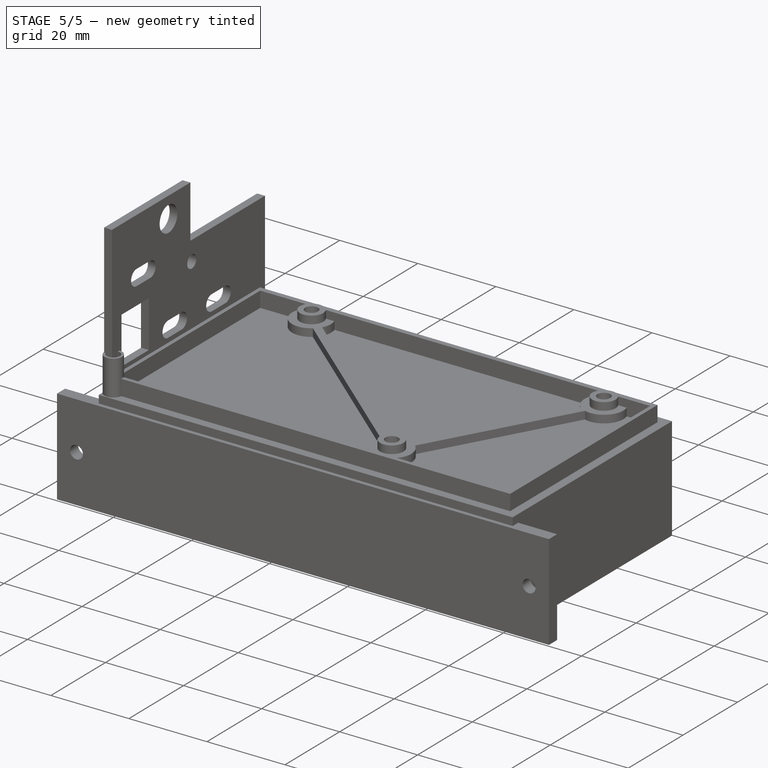
[diagram: stage 5 of 5 — iso view after this stage's code; geometry added in this stage tinted green]
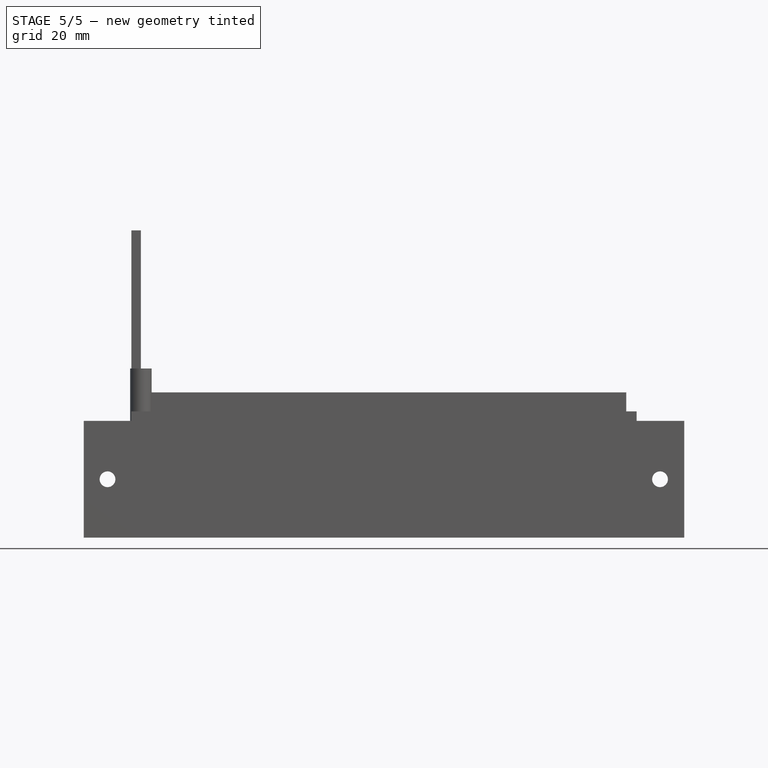
[diagram: stage 5 of 5 — front view after this stage's code; geometry added in this stage tinted green]
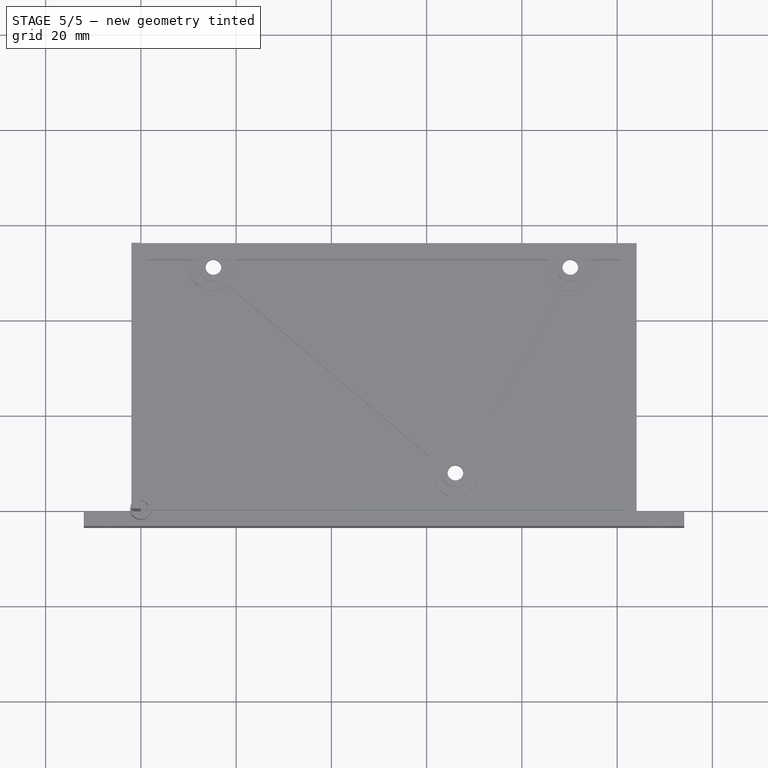
[diagram: stage 5 of 5 — top view after this stage's code; geometry added in this stage tinted green]
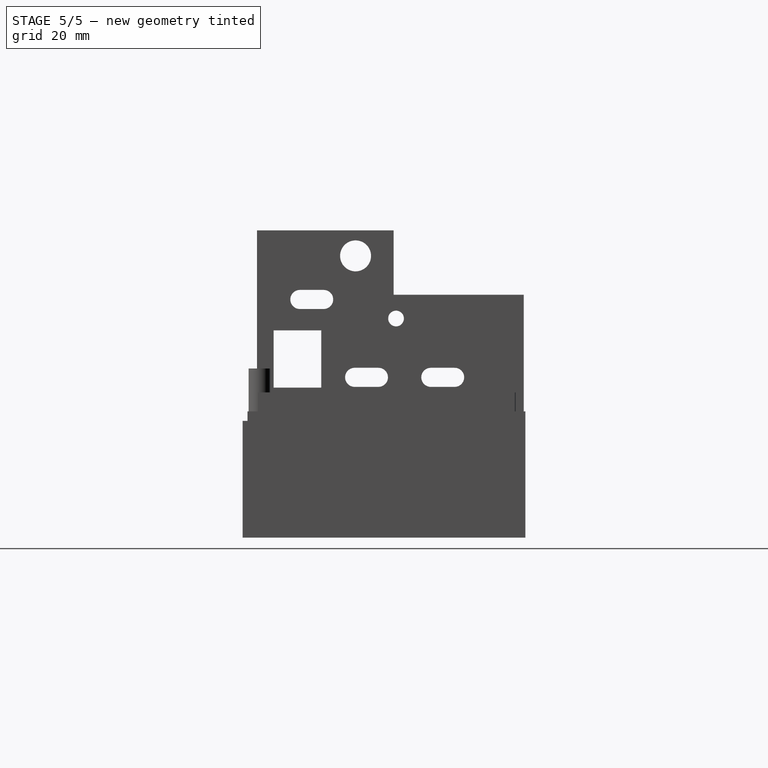
[diagram: stage 5 of 5 — right view after this stage's code; geometry added in this stage tinted green]
FEATURE [PartDesign::AdditiveCylinder] Cylinder017
  Angle = 360
  AttacherType = Attacher::AttachEngine3D
  AttachmentOffset = pos=(-36.65,23.19,0) rot=(0,0,1;0rad)
  BaseFeature = -> Cylinder016
  FirstAngle = 0
  Height = 9.7
  MapMode = 5
  Placement = pos=(36.65,23.19,0) rot=(0,1,0;3.14159rad)
  Radius = 2.6
  SecondAngle = 0
  Support = -> [XY_Plane002]
FEATURE [PartDesign::SubtractiveCylinder] Cylinder018
  Angle = 360
  AttacherType = Attacher::AttachEngine3D
  AttachmentOffset = pos=(-36.65,2.54,-3) rot=(0,0,1;0rad)
  BaseFeature = -> Cylinder017
  FirstAngle = 0
  Height = 100
  MapMode = 5
  Placement = pos=(36.65,2.54,3) rot=(0,1,0;3.14159rad)
  Radius = 1.65
  SecondAngle = 0
  Support = -> [XY_Plane002]
FEATURE [PartDesign::SubtractiveCylinder] Cylinder019
  Angle = 360
  AttacherType = Attacher::AttachEngine3D
  AttachmentOffset = pos=(-36.65,23.19,-3) rot=(0,0,1;0rad)
  BaseFeature = -> Cylinder018
  FirstAngle = 0
  Height = 100
  MapMode = 5
  Placement = pos=(36.65,23.19,3) rot=(0,1,0;3.14159rad)
  Radius = 1.65
  SecondAngle = 0
  Support = -> [XY_Plane002]
FEATURE [PartDesign::SubtractiveCylinder] Cylinder020
  Angle = 360
  AttacherType = Attacher::AttachEngine3D
  AttachmentOffset = pos=(-36.65,2.54,-2) rot=(0,0,1;0rad)
  BaseFeature = -> Cylinder019
  FirstAngle = 0
  Height = 5.7
  MapMode = 5
  Placement = pos=(36.65,2.54,2) rot=(0,1,0;3.14159rad)
  Radius = 1.95
  SecondAngle = 0
  Support = -> [XY_Plane002]
FEATURE [PartDesign::SubtractiveCylinder] Cylinder021
  Angle = 360
  AttacherType = Attacher::AttachEngine3D
  AttachmentOffset = pos=(-36.65,23.19,-2) rot=(0,0,1;0rad)
  BaseFeature = -> Cylinder020
  FirstAngle = 0
  Height = 5.7
  MapMode = 5
  Placement = pos=(36.65,23.19,2) rot=(0,1,0;3.14159rad)
  Radius = 1.95
  SecondAngle = 0
  Support = -> [XY_Plane002]
FEATURE [PartDesign::SubtractiveCylinder] Cylinder022
  Angle = 360
  AttacherType = Attacher::AttachEngine3D
  AttachmentOffset = pos=(-36.65,2.54,-2) rot=(0,0,1;0rad)
  BaseFeature = -> Cylinder021
  FirstAngle = 0
  Height = 4
  MapMode = 5
  Placement = pos=(36.65,2.54,2) rot=(0,1,0;3.14159rad)
  Radius = 2.15
  SecondAngle = 0
  Support = -> [XY_Plane002]
FEATURE [PartDesign::SubtractiveCylinder] Cylinder023
  Angle = 360
  AttacherType = Attacher::AttachEngine3D
  AttachmentOffset = pos=(-36.65,23.19,-2) rot=(0,0,1;0rad)
  BaseFeature = -> Cylinder022
  FirstAngle = 0
  Height = 4
  MapMode = 5
  Placement = pos=(36.65,23.19,2) rot=(0,1,0;3.14159rad)
  Radius = 2.15
  SecondAngle = 0
  Support = -> [XY_Plane002]
FEATURE [Sketcher::SketchObject] Sketch013
  FullyConstrained = true
  MapMode = 5
  Support = -> [XY_Plane002]
  expr: Constraints[105] = Sketch012.Constraints[105]
  expr: Constraints[10] = Sketch012.Constraints[10]
  expr: Constraints[111] = Sketch012.Constraints[111]
  expr: Constraints[113] = Sketch012.Constraints[113]
  expr: Constraints[126] = Sketch012.Constraints[126]
  expr: Constraints[127] = Sketch012.Constraints[127]
  expr: Constraints[137] = Sketch012.Constraints[9]
  expr: Constraints[138] = Sketch012.Constraints[10]
  expr: Constraints[144] = Sketch012.Constraints[16]
  expr: Constraints[145] = Sketch012.Constraints[17]
  expr: Constraints[146] = Sketch012.Constraints[18]
  expr: Constraints[147] = Sketch012.Constraints[19]
  expr: Constraints[148] = Sketch012.Constraints[20]
  expr: Constraints[149] = Sketch012.Constraints[21]
  expr: Constraints[151] = Sketch012.Constraints[23]
  expr: Constraints[153] = Sketch012.Constraints[25]
  expr: Constraints[154] = Sketch012.Constraints[26]
  expr: Constraints[165] = Sketch012.Constraints[37]
  expr: Constraints[167] = Sketch012.Constraints[39]
  expr: Constraints[168] = Sketch012.Constraints[40]
  expr: Constraints[169] = Sketch012.Constraints[41]
  expr: Constraints[16] = Sketch012.Constraints[16]
  expr: Constraints[170] = Sketch012.Constraints[42]
  expr: Constraints[171] = Sketch012.Constraints[43]
  expr: Constraints[17] = Sketch012.Constraints[17]
  expr: Constraints[183] = Sketch012.Constraints[55]
  expr: Constraints[184] = Sketch012.Constraints[56]
  expr: Constraints[185] = Sketch012.Constraints[57]
  expr: Constraints[18] = Sketch012.Constraints[18]
  expr: Constraints[19] = Sketch012.Constraints[19]
  expr: Constraints[208] = Sketch012.Constraints[80]
  expr: Constraints[209] = Sketch012.Constraints[81]
  expr: Constraints[20] = Sketch012.Constraints[20]
  expr: Constraints[210] = Sketch012.Constraints[82]
  expr: Constraints[211] = Sketch012.Constraints[83]
  expr: Constraints[212] = Sketch012.Constraints[84]
  expr: Constraints[213] = Sketch012.Constraints[85]
  expr: Constraints[21] = Sketch012.Constraints[21]
  expr: Constraints[224] = Sketch012.Constraints[96]
  expr: Constraints[225] = Sketch012.Constraints[97]
  expr: Constraints[226] = Sketch012.Constraints[98]
  expr: Constraints[227] = Sketch012.Constraints[99]
  expr: Constraints[233] = Sketch012.Constraints[105]
  expr: Constraints[239] = Sketch012.Constraints[111]
  expr: Constraints[23] = Sketch012.Constraints[23]
  expr: Constraints[241] = Sketch012.Constraints[113]
  expr: Constraints[254] = Sketch012.Constraints[126]
  expr: Constraints[255] = Sketch012.Constraints[127]
  expr: Constraints[25] = Sketch012.Constraints[25]
  expr: Constraints[26] = Sketch012.Constraints[26]
  expr: Constraints[37] = Sketch012.Constraints[37]
  expr: Constraints[39] = Sketch012.Constraints[39]
  expr: Constraints[40] = Sketch012.Constraints[40]
  expr: Constraints[41] = Sketch012.Constraints[41]
  expr: Constraints[42] = Sketch012.Constraints[42]
  expr: Constraints[43] = Sketch012.Constraints[43]
  expr: Constraints[55] = Sketch012.Constraints[55]
  expr: Constraints[56] = Sketch012.Constraints[56]
  expr: Constraints[57] = Sketch012.Constraints[57]
  expr: Constraints[80] = Sketch012.Constraints[80]
  expr: Constraints[81] = Sketch012.Constraints[81]
  expr: Constraints[82] = Sketch012.Constraints[82]
  expr: Constraints[83] = Sketch012.Constraints[83]
  expr: Constraints[84] = Sketch012.Constraints[84]
  expr: Constraints[85] = Sketch012.Constraints[85]
  expr: Constraints[96] = Sketch012.Constraints[96]
  expr: Constraints[97] = Sketch012.Constraints[97]
  expr: Constraints[98] = Sketch012.Constraints[98]
  expr: Constraints[99] = Sketch012.Constraints[99]
  expr: Constraints[9] = Sketch012.Constraints[9]
  sketch-geometry (98):
    g0: LineSegment StartX=0 StartY=0 StartZ=0 EndX=101.6 EndY=0 EndZ=0
    g1: LineSegment StartX=101.6 StartY=0 StartZ=0 EndX=101.6 EndY=53.34 EndZ=0
    g2: LineSegment StartX=101.6 StartY=53.34 StartZ=0 EndX=0 EndY=53.34 EndZ=0
    g3: LineSegment StartX=0 StartY=53.34 StartZ=0 EndX=0 EndY=0 EndZ=0
    g4: Circle CenterX=15.24 CenterY=50.8 CenterZ=0 NormalX=0 NormalY=0 NormalZ=1 AngleXU=0 Radius=1.65
    g5: Circle CenterX=90.17 CenterY=50.8 CenterZ=0 NormalX=0 NormalY=0 NormalZ=1 AngleXU=0 Radius=1.65
    g6: Circle CenterX=13.97 CenterY=2.54 CenterZ=0 NormalX=0 NormalY=0 NormalZ=1 AngleXU=0 Radius=1.65
    g7: Circle CenterX=96.52 CenterY=2.54 CenterZ=0 NormalX=0 NormalY=0 NormalZ=1 AngleXU=0 Radius=1.65
    g8: Circle CenterX=66.04 CenterY=7.62 CenterZ=0 NormalX=0 NormalY=0 NormalZ=1 AngleXU=0 Radius=1.65
    g9: Circle CenterX=56.67 CenterY=30.61 CenterZ=0 NormalX=0 NormalY=0 NormalZ=1 AngleXU=0 Radius=1.65
    g10: LineSegment StartX=0 StartY=0 StartZ=0 EndX=39 EndY=0 EndZ=0
    g11: LineSegment StartX=39 StartY=0 StartZ=0 EndX=39 EndY=25.7 EndZ=0
    g12: LineSegment StartX=39 StartY=25.7 StartZ=0 EndX=0 EndY=25.7 EndZ=0
    g13: LineSegment StartX=0 StartY=25.7 StartZ=0 EndX=0 EndY=0 EndZ=0
    g14: Circle CenterX=36.65 CenterY=23.19 CenterZ=0 NormalX=0 NormalY=0 NormalZ=1 AngleXU=0 Radius=1.65
    g15: Circle CenterX=36.65 CenterY=2.54 CenterZ=0 NormalX=0 NormalY=0 NormalZ=1 AngleXU=0 Radius=1.65
    g16: Circle CenterX=15.24 CenterY=50.8 CenterZ=0 NormalX=0 NormalY=0 NormalZ=1 AngleXU=0 Radius=2.65
    g17: Circle CenterX=90.17 CenterY=50.8 CenterZ=0 NormalX=0 NormalY=0 NormalZ=1 AngleXU=0 Radius=2.65
    g18: Circle CenterX=56.67 CenterY=30.61 CenterZ=0 NormalX=0 NormalY=0 NormalZ=1 AngleXU=0 Radius=2.65
    g19: Circle CenterX=96.52 CenterY=2.54 CenterZ=0 NormalX=0 NormalY=0 NormalZ=1 AngleXU=0 Radius=2.65
    g20: Circle CenterX=13.97 CenterY=2.54 CenterZ=0 NormalX=0 NormalY=0 NormalZ=1 AngleXU=0 Radius=2.65
    g21: Circle CenterX=66.04 CenterY=7.62 CenterZ=0 NormalX=0 NormalY=0 NormalZ=1 AngleXU=0 Radius=2.65
    g22: LineSegment StartX=0 StartY=53.84 StartZ=0 EndX=0 EndY=26.2 EndZ=0
    g23: LineSegment StartX=0 StartY=26.2 StartZ=0 EndX=34.3 EndY=26.2 EndZ=0
    g24: LineSegment StartX=34.3 StartY=26.2 StartZ=0 EndX=34.3 EndY=19.35 EndZ=0
    g25: LineSegment StartX=34.3 StartY=19.35 StartZ=0 EndX=39 EndY=19.35 EndZ=0
    g26: LineSegment StartX=39 StartY=19.35 StartZ=0 EndX=39 EndY=6.35 EndZ=0
    g27: LineSegment StartX=39 StartY=6.35 StartZ=0 EndX=34.3 EndY=6.35 EndZ=0
    g28: LineSegment StartX=34.3 StartY=6.35 StartZ=0 EndX=34.3 EndY=-0.5 EndZ=0
    g29: LineSegment StartX=34.3 StartY=-0.5 StartZ=0 EndX=102.1 EndY=-0.5 EndZ=0
    g30: LineSegment StartX=102.1 StartY=-0.5 StartZ=0 EndX=102.1 EndY=53.84 EndZ=0
    g31: LineSegment StartX=102.1 StartY=53.84 StartZ=0 EndX=0 EndY=53.84 EndZ=0
    g32: LineSegment StartX=-2 StartY=-2.5 StartZ=0 EndX=104.1 EndY=-2.5 EndZ=0
    g33: LineSegment StartX=104.1 StartY=-2.5 StartZ=0 EndX=104.1 EndY=55.84 EndZ=0
    g34: LineSegment StartX=104.1 StartY=55.84 StartZ=0 EndX=-2 EndY=55.84 EndZ=0
    g35: LineSegment StartX=-2 StartY=55.84 StartZ=0 EndX=-2 EndY=-2.5 EndZ=0
    g36: Circle CenterX=15.24 CenterY=50.8 CenterZ=0 NormalX=0 NormalY=0 NormalZ=1 AngleXU=0 Radius=2.15
    g37: Circle CenterX=90.17 CenterY=50.8 CenterZ=0 NormalX=0 NormalY=0 NormalZ=1 AngleXU=0 Radius=2.15
    g38: Circle CenterX=66.04 CenterY=7.62 CenterZ=0 NormalX=0 NormalY=0 NormalZ=1 AngleXU=0 Radius=2.15
    g39: LineSegment StartX=0 StartY=26.2 StartZ=0 EndX=39.5 EndY=26.2 EndZ=0
    g40: LineSegment StartX=39.5 StartY=26.2 StartZ=0 EndX=39.5 EndY=-0.5 EndZ=0
    g41: LineSegment StartX=39.5 StartY=-0.5 StartZ=0 EndX=-2 EndY=-0.5 EndZ=0
    g42: LineSegment StartX=-2 StartY=-0.5 StartZ=0 EndX=-2 EndY=-2.5 EndZ=0
    g43: LineSegment StartX=-2 StartY=-2.5 StartZ=0 EndX=41.5 EndY=-2.5 EndZ=0
    g44: LineSegment StartX=41.5 StartY=-2.5 StartZ=0 EndX=41.5 EndY=28.2 EndZ=0
    g45: LineSegment StartX=41.5 StartY=28.2 StartZ=0 EndX=0 EndY=28.2 EndZ=0
    g46: LineSegment StartX=0 StartY=28.2 StartZ=0 EndX=0 EndY=26.2 EndZ=0
    g47: LineSegment StartX=0 StartY=0 StartZ=0 EndX=101.6 EndY=0 EndZ=0
    g48: LineSegment StartX=101.6 StartY=0 StartZ=0 EndX=101.6 EndY=53.34 EndZ=0
    g49: LineSegment StartX=101.6 StartY=53.34 StartZ=0 EndX=0 EndY=53.34 EndZ=0
    g50: LineSegment StartX=0 StartY=53.34 StartZ=0 EndX=0 EndY=0 EndZ=0
    g51: Circle CenterX=15.24 CenterY=50.8 CenterZ=0 NormalX=0 NormalY=0 NormalZ=1 AngleXU=0 Radius=1.65
    g52: Circle CenterX=90.17 CenterY=50.8 CenterZ=0 NormalX=0 NormalY=0 NormalZ=1 AngleXU=0 Radius=1.65
    g53: Circle CenterX=13.97 CenterY=2.54 CenterZ=0 NormalX=0 NormalY=0 NormalZ=1 AngleXU=0 Radius=1.65
    g54: Circle CenterX=96.52 CenterY=2.54 CenterZ=0 NormalX=0 NormalY=0 NormalZ=1 AngleXU=0 Radius=1.65
    g55: Circle CenterX=66.04 CenterY=7.62 CenterZ=0 NormalX=0 NormalY=0 NormalZ=1 AngleXU=0 Radius=1.65
    g56: Circle CenterX=56.67 CenterY=30.61 CenterZ=0 NormalX=0 NormalY=0 NormalZ=1 AngleXU=0 Radius=1.65
    g57: LineSegment StartX=0 StartY=0 StartZ=0 EndX=39 EndY=0 EndZ=0
    g58: LineSegment StartX=39 StartY=0 StartZ=0 EndX=39 EndY=25.7 EndZ=0
    g59: LineSegment StartX=39 StartY=25.7 StartZ=0 EndX=0 EndY=25.7 EndZ=0
    g60: LineSegment StartX=0 StartY=25.7 StartZ=0 EndX=0 EndY=0 EndZ=0
    g61: Circle CenterX=36.65 CenterY=23.19 CenterZ=0 NormalX=0 NormalY=0 NormalZ=1 AngleXU=0 Radius=1.65
    g62: Circle CenterX=36.65 CenterY=2.54 CenterZ=0 NormalX=0 NormalY=0 NormalZ=1 AngleXU=0 Radius=1.65
    g63: Circle CenterX=15.24 CenterY=50.8 CenterZ=0 NormalX=0 NormalY=0 NormalZ=1 AngleXU=0 Radius=2.65
    g64: Circle CenterX=90.17 CenterY=50.8 CenterZ=0 NormalX=0 NormalY=0 NormalZ=1 AngleXU=0 Radius=2.65
    g65: Circle CenterX=56.67 CenterY=30.61 CenterZ=0 NormalX=0 NormalY=0 NormalZ=1 AngleXU=0 Radius=2.65
    g66: Circle CenterX=96.52 CenterY=2.54 CenterZ=0 NormalX=0 NormalY=0 NormalZ=1 AngleXU=0 Radius=2.65
    g67: Circle CenterX=13.97 CenterY=2.54 CenterZ=0 NormalX=0 NormalY=0 NormalZ=1 AngleXU=0 Radius=2.65
    g68: Circle CenterX=66.04 CenterY=7.62 CenterZ=0 NormalX=0 NormalY=0 NormalZ=1 AngleXU=0 Radius=2.65
    g69: LineSegment StartX=0 StartY=53.84 StartZ=0 EndX=0 EndY=26.2 EndZ=0
    g70: LineSegment StartX=0 StartY=26.2 StartZ=0 EndX=34.3 EndY=26.2 EndZ=0
    g71: LineSegment StartX=34.3 StartY=26.2 StartZ=0 EndX=34.3 EndY=19.35 EndZ=0
    g72: LineSegment StartX=34.3 StartY=19.35 StartZ=0 EndX=39 EndY=19.35 EndZ=0
    g73: LineSegment StartX=39 StartY=19.35 StartZ=0 EndX=39 EndY=6.35 EndZ=0
    g74: LineSegment StartX=39 StartY=6.35 StartZ=0 EndX=34.3 EndY=6.35 EndZ=0
    g75: LineSegment StartX=34.3 StartY=6.35 StartZ=0 EndX=34.3 EndY=-0.5 EndZ=0
    g76: LineSegment StartX=34.3 StartY=-0.5 StartZ=0 EndX=102.1 EndY=-0.5 EndZ=0
    g77: LineSegment StartX=102.1 StartY=-0.5 StartZ=0 EndX=102.1 EndY=53.84 EndZ=0
    g78: LineSegment StartX=102.1 StartY=53.84 StartZ=0 EndX=0 EndY=53.84 EndZ=0
    g79: LineSegment StartX=-2 StartY=-2.5 StartZ=0 EndX=104.1 EndY=-2.5 EndZ=0
    g80: LineSegment StartX=104.1 StartY=-2.5 StartZ=0 EndX=104.1 EndY=55.84 EndZ=0
    g81: LineSegment StartX=104.1 StartY=55.84 StartZ=0 EndX=-2 EndY=55.84 EndZ=0
    g82: LineSegment StartX=-2 StartY=55.84 StartZ=0 EndX=-2 EndY=-2.5 EndZ=0
    g83: Circle CenterX=15.24 CenterY=50.8 CenterZ=0 NormalX=0 NormalY=0 NormalZ=1 AngleXU=0 Radius=2.15
    g84: Circle CenterX=90.17 CenterY=50.8 CenterZ=0 NormalX=0 NormalY=0 NormalZ=1 AngleXU=0 Radius=2.15
    g85: Circle CenterX=66.04 CenterY=7.62 CenterZ=0 NormalX=0 NormalY=0 NormalZ=1 AngleXU=0 Radius=2.15
    g86: LineSegment StartX=0 StartY=26.2 StartZ=0 EndX=39.5 EndY=26.2 EndZ=0
    g87: LineSegment StartX=39.5 StartY=26.2 StartZ=0 EndX=39.5 EndY=-0.5 EndZ=0
    g88: LineSegment StartX=39.5 StartY=-0.5 StartZ=0 EndX=-2 EndY=-0.5 EndZ=0
    g89: LineSegment StartX=-2 StartY=-0.5 StartZ=0 EndX=-2 EndY=-2.5 EndZ=0
    g90: LineSegment StartX=-2 StartY=-2.5 StartZ=0 EndX=41.5 EndY=-2.5 EndZ=0
    g91: LineSegment StartX=41.5 StartY=-2.5 StartZ=0 EndX=41.5 EndY=28.2 EndZ=0
    g92: LineSegment StartX=41.5 StartY=28.2 StartZ=0 EndX=0 EndY=28.2 EndZ=0
    g93: LineSegment StartX=0 StartY=28.2 StartZ=0 EndX=0 EndY=26.2 EndZ=0
    g94: LineSegment StartX=29.5 StartY=28.2 StartZ=0 EndX=41.5 EndY=28.2 EndZ=0
    g95: LineSegment StartX=41.5 StartY=28.2 StartZ=0 EndX=41.5 EndY=25.7 EndZ=0
    g96: LineSegment StartX=41.5 StartY=25.7 StartZ=0 EndX=29.5 EndY=25.7 EndZ=0
    g97: LineSegment StartX=29.5 StartY=25.7 StartZ=0 EndX=29.5 EndY=28.2 EndZ=0
  constraints (268):
    c: Coincident(g0,g1)
    c: Coincident(g1,g2)
    c: Coincident(g2,g3)
    c: Coincident(g3,g0)
    c: Horizontal(g0)
    c: Horizontal(g2)
    c: Vertical(g1)
    c: Vertical(g3)
    c: Coincident(g0,g-1)
    c: DistanceY(g3,g3) = 53.34
    c: DistanceX(g0,g0) = 101.6
    c: Equal(g6,g4)
    c: Equal(g6,g9)
    c: Equal(g6,g8)
    c: Equal(g6,g5)
    c: Equal(g6,g7)
    c: Diameter(g6) = 3.3
    c: DistanceX(g0,g6) = 13.97
    c: DistanceY(g0,g6) = 2.54
    c: DistanceY(g0,g4) = 50.8
    c: DistanceX(g0,g4) = 15.24
    c: DistanceX(g0,g7) = 96.52
    c: Horizontal(g6,g7)
    c: DistanceX(g0,g5) = 90.17
    c: Horizontal(g4,g5)
    c: DistanceX(g0,g8) = 66.04
    c: DistanceY(g0,g8) = 7.62
    c: Coincident(g10,g11)
    c: Coincident(g11,g12)
    c: Coincident(g12,g13)
    c: Coincident(g13,g10)
    c: Horizontal(g10)
    c: Horizontal(g12)
    c: Vertical(g11)
    c: Vertical(g13)
    c: Coincident(g10,g0)
    c: Equal(g14,g15)
    c: Diameter(g14) = 3.3
    c: Vertical(g14,g15)
    c: DistanceY(g0,g12) = 25.7
    c: DistanceX(g0,g10) = 39
    c: DistanceX(g0,g15) = 36.65
    c: DistanceY(g15,g14) = 20.65
    c: DistanceY(g0,g15) = 2.54
    c: Coincident(g16,g4)
    c: Coincident(g17,g5)
    c: Coincident(g18,g9)
    c: Coincident(g19,g7)
    c: Coincident(g20,g6)
    c: Coincident(g21,g8)
    c: Equal(g16,g17)
    c: Equal(g16,g18)
    c: Equal(g16,g21)
    c: Equal(g16,g19)
    c: Equal(g16,g20)
    c: Diameter(g16) = 5.3
    c: DistanceY(g9,g5) = 20.19
    c: DistanceX(g9,g5) = 33.5
    c: PointOnObject(g22,g-2)
    c: PointOnObject(g22,g3)
    c: Coincident(g22,g23)
    c: Horizontal(g23)
    c: Coincident(g23,g24)
    c: Vertical(g24)
    c: Coincident(g24,g25)
    c: PointOnObject(g25,g11)
    c: Horizontal(g25)
    c: Coincident(g25,g26)
    c: PointOnObject(g26,g11)
    c: Coincident(g26,g27)
    c: Horizontal(g27)
    c: Coincident(g27,g28)
    c: Vertical(g28)
    c: Coincident(g28,g29)
    c: Horizontal(g29)
    c: Coincident(g29,g30)
    c: Vertical(g30)
    c: Coincident(g30,g31)
    c: Coincident(g31,g22)
    c: Horizontal(g31)
    c: DistanceY(g2,g22) = 0.5
    c: DistanceX(g1,g30) = 0.5
    c: DistanceY(g29,g0) = 0.5
    c: DistanceY(g12,g22) = 0.5
    c: DistanceY(g26,g25) = 13
    c: DistanceX(g23,g14) = 2.35
    c: Equal(g24,g28)
    c: Vertical(g24,g27)
    c: Coincident(g32,g33)
    c: Coincident(g33,g34)
    c: Coincident(g34,g35)
    c: Coincident(g35,g32)
    c: Horizontal(g32)
    c: Horizontal(g34)
    c: Vertical(g33)
    c: Vertical(g35)
    c: DistanceX(g29,g32) = 2
    c: DistanceY(g32,g29) = 2
    c: DistanceY(g30,g33) = 2
    c: DistanceX(g34,g22) = 2
    c: Coincident(g36,g4)
    c: Coincident(g37,g5)
    c: Coincident(g38,g8)
    c: Equal(g36,g38)
    c: Equal(g36,g37)
    c: Diameter(g36) = 4.3
    c: Coincident(g39,g40)
    c: Coincident(g40,g41)
    c: Horizontal(g39)
    c: Horizontal(g41)
    c: Vertical(g40)
    c: DistanceX(g11,g39) = 0.5
    c: Coincident(g39,g22)
    c: DistanceY(g40,g10) = 0.5
    c: PointOnObject(g41,g35)
    c: Coincident(g41,g42)
    c: Coincident(g42,g32)
    c: Coincident(g42,g43)
    c: PointOnObject(g43,g32)
    c: Coincident(g43,g44)
    c: Vertical(g44)
    c: Coincident(g44,g45)
    c: PointOnObject(g45,g3)
    c: Horizontal(g45)
    c: Coincident(g45,g46)
    c: Coincident(g46,g39)
    c: DistanceY(g39,g45) = 2
    c: DistanceX(g40,g43) = 2
    c: Coincident(g47,g48)
    c: Coincident(g48,g49)
    c: Coincident(g49,g50)
    c: Coincident(g50,g47)
    c: Horizontal(g47)
    c: Horizontal(g49)
    c: Vertical(g48)
    c: Vertical(g50)
    c: Coincident(g47,g-1)
    c: DistanceY(g50,g50) = 53.34
    c: DistanceX(g47,g47) = 101.6
    c: Equal(g53,g51)
    c: Equal(g53,g56)
    c: Equal(g53,g55)
    c: Equal(g53,g52)
    c: Equal(g53,g54)
    c: Diameter(g53) = 3.3
    c: DistanceX(g47,g53) = 13.97
    c: DistanceY(g47,g53) = 2.54
    c: DistanceY(g47,g51) = 50.8
    c: DistanceX(g47,g51) = 15.24
    c: DistanceX(g47,g54) = 96.52
    c: Horizontal(g53,g54)
    c: DistanceX(g47,g52) = 90.17
    c: Horizontal(g51,g52)
    c: DistanceX(g47,g55) = 66.04
    c: DistanceY(g47,g55) = 7.62
    c: Coincident(g57,g58)
    c: Coincident(g58,g59)
    c: Coincident(g59,g60)
    c: Coincident(g60,g57)
    c: Horizontal(g57)
    c: Horizontal(g59)
    c: Vertical(g58)
    c: Vertical(g60)
    c: Coincident(g57,g47)
    c: Equal(g61,g62)
    c: Diameter(g61) = 3.3
    c: Vertical(g61,g62)
    c: DistanceY(g47,g59) = 25.7
    c: DistanceX(g47,g57) = 39
    c: DistanceX(g47,g62) = 36.65
    c: DistanceY(g62,g61) = 20.65
    c: DistanceY(g47,g62) = 2.54
    c: Coincident(g63,g51)
    c: Coincident(g64,g52)
    c: Coincident(g65,g56)
    c: Coincident(g66,g54)
    c: Coincident(g67,g53)
    c: Coincident(g68,g55)
    c: Equal(g63,g64)
    c: Equal(g63,g65)
    c: Equal(g63,g68)
    c: Equal(g63,g66)
    c: Equal(g63,g67)
    c: Diameter(g63) = 5.3
    c: DistanceY(g56,g52) = 20.19
    c: DistanceX(g56,g52) = 33.5
    c: PointOnObject(g69,g-2)
    c: PointOnObject(g69,g50)
    c: Coincident(g69,g70)
    c: Horizontal(g70)
    c: Coincident(g70,g71)
    c: Vertical(g71)
    c: Coincident(g71,g72)
    c: PointOnObject(g72,g58)
    c: Horizontal(g72)
    c: Coincident(g72,g73)
    c: PointOnObject(g73,g58)
    c: Coincident(g73,g74)
    c: Horizontal(g74)
    c: Coincident(g74,g75)
    c: Vertical(g75)
    c: Coincident(g75,g76)
    c: Horizontal(g76)
    c: Coincident(g76,g77)
    c: Vertical(g77)
    c: Coincident(g77,g78)
    c: Coincident(g78,g69)
    c: Horizontal(g78)
    c: DistanceY(g49,g69) = 0.5
    c: DistanceX(g48,g77) = 0.5
    c: DistanceY(g76,g47) = 0.5
    c: DistanceY(g59,g69) = 0.5
    c: DistanceY(g73,g72) = 13
    c: DistanceX(g70,g61) = 2.35
    c: Equal(g71,g75)
    c: Vertical(g71,g74)
    c: Coincident(g79,g80)
    c: Coincident(g80,g81)
    c: Coincident(g81,g82)
    c: Coincident(g82,g79)
    c: Horizontal(g79)
    c: Horizontal(g81)
    c: Vertical(g80)
    c: Vertical(g82)
    c: DistanceX(g76,g79) = 2
    c: DistanceY(g79,g76) = 2
    c: DistanceY(g77,g80) = 2
    c: DistanceX(g81,g69) = 2
    c: Coincident(g83,g51)
    c: Coincident(g84,g52)
    c: Coincident(g85,g55)
    c: Equal(g83,g85)
    c: Equal(g83,g84)
    c: Diameter(g83) = 4.3
    c: Coincident(g86,g87)
    c: Coincident(g87,g88)
    c: Horizontal(g86)
    c: Horizontal(g88)
    c: Vertical(g87)
    c: DistanceX(g58,g86) = 0.5
    c: Coincident(g86,g69)
    c: DistanceY(g87,g57) = 0.5
    c: PointOnObject(g88,g82)
    c: Coincident(g88,g89)
    c: Coincident(g89,g79)
    c: Coincident(g89,g90)
    c: PointOnObject(g90,g79)
    c: Coincident(g90,g91)
    c: Vertical(g91)
    c: Coincident(g91,g92)
    c: PointOnObject(g92,g50)
    c: Horizontal(g92)
    c: Coincident(g92,g93)
    c: Coincident(g93,g86)
    c: DistanceY(g86,g92) = 2
    c: DistanceX(g87,g90) = 2
    c: Coincident(g94,g95)
    c: Coincident(g95,g96)
    c: Coincident(g96,g97)
    c: Coincident(g97,g94)
    c: Horizontal(g94)
    c: Horizontal(g96)
    c: Vertical(g95)
    c: Vertical(g97)
    c: PointOnObject(g94,g45)
    c: PointOnObject(g95,g44)
    c: Horizontal(g11,g95)
    c: DistanceX(g96,g39) = 10
FEATURE [PartDesign::Pocket] Pocket
  BaseFeature = -> Cylinder023
  Direction = (0,0,-1)
  Length = 9.7
  Length2 = -11.5
  Placement = pos=(36.65,23.19,2) rot=(0,1,0;3.14159rad)
  Profile = -> Sketch013
  ReferenceAxis = -> Sketch013 [N_Axis]
  Type = 4
FEATURE [Sketcher::SketchObject] Sketch014
  FullyConstrained = true
  MapMode = 5
  Support = -> [XY_Plane002]
  expr: Constraints[105] = Sketch013.Constraints[105]
  expr: Constraints[10] = Sketch013.Constraints[10]
  expr: Constraints[111] = Sketch013.Constraints[111]
  expr: Constraints[113] = Sketch013.Constraints[113]
  expr: Constraints[126] = Sketch013.Constraints[126]
  expr: Constraints[127] = Sketch013.Constraints[127]
  expr: Constraints[137] = Sketch013.Constraints[137]
  expr: Constraints[138] = Sketch013.Constraints[138]
  expr: Constraints[144] = Sketch013.Constraints[144]
  expr: Constraints[145] = Sketch013.Constraints[145]
  expr: Constraints[146] = Sketch013.Constraints[146]
  expr: Constraints[147] = Sketch013.Constraints[147]
  expr: Constraints[148] = Sketch013.Constraints[148]
  expr: Constraints[149] = Sketch013.Constraints[149]
  expr: Constraints[151] = Sketch013.Constraints[151]
  expr: Constraints[153] = Sketch013.Constraints[153]
  expr: Constraints[154] = Sketch013.Constraints[154]
  expr: Constraints[165] = Sketch013.Constraints[165]
  expr: Constraints[167] = Sketch013.Constraints[167]
  expr: Constraints[168] = Sketch013.Constraints[168]
  expr: Constraints[169] = Sketch013.Constraints[169]
  expr: Constraints[16] = Sketch013.Constraints[16]
  expr: Constraints[170] = Sketch013.Constraints[170]
  expr: Constraints[171] = Sketch013.Constraints[171]
  expr: Constraints[17] = Sketch013.Constraints[17]
  expr: Constraints[183] = Sketch013.Constraints[183]
  expr: Constraints[184] = Sketch013.Constraints[184]
  expr: Constraints[185] = Sketch013.Constraints[185]
  expr: Constraints[18] = Sketch013.Constraints[18]
  expr: Constraints[19] = Sketch013.Constraints[19]
  expr: Constraints[208] = Sketch013.Constraints[208]
  expr: Constraints[209] = Sketch013.Constraints[209]
  expr: Constraints[20] = Sketch013.Constraints[20]
  expr: Constraints[210] = Sketch013.Constraints[210]
  expr: Constraints[211] = Sketch013.Constraints[211]
  expr: Constraints[212] = Sketch013.Constraints[212]
  expr: Constraints[213] = Sketch013.Constraints[213]
  expr: Constraints[21] = Sketch013.Constraints[21]
  expr: Constraints[224] = Sketch013.Constraints[224]
  expr: Constraints[225] = Sketch013.Constraints[225]
  expr: Constraints[226] = Sketch013.Constraints[226]
  expr: Constraints[227] = Sketch013.Constraints[227]
  expr: Constraints[233] = Sketch013.Constraints[233]
  expr: Constraints[239] = Sketch013.Constraints[239]
  expr: Constraints[23] = Sketch013.Constraints[23]
  expr: Constraints[241] = Sketch013.Constraints[241]
  expr: Constraints[254] = Sketch013.Constraints[254]
  expr: Constraints[255] = Sketch013.Constraints[255]
  expr: Constraints[25] = Sketch013.Constraints[25]
  expr: Constraints[267] = Sketch013.Constraints[267]
  expr: Constraints[26] = Sketch013.Constraints[26]
  expr: Constraints[277] = Sketch013.Constraints[9]
  expr: Constraints[278] = Sketch013.Constraints[10]
  expr: Constraints[284] = Sketch013.Constraints[16]
  expr: Constraints[285] = Sketch013.Constraints[17]
  expr: Constraints[286] = Sketch013.Constraints[18]
  expr: Constraints[287] = Sketch013.Constraints[19]
  expr: Constraints[288] = Sketch013.Constraints[20]
  expr: Constraints[289] = Sketch013.Constraints[21]
  expr: Constraints[291] = Sketch013.Constraints[23]
  expr: Constraints[293] = Sketch013.Constraints[25]
  expr: Constraints[294] = Sketch013.Constraints[26]
  expr: Constraints[305] = Sketch013.Constraints[37]
  expr: Constraints[307] = Sketch013.Constraints[39]
  expr: Constraints[308] = Sketch013.Constraints[40]
  expr: Constraints[309] = Sketch013.Constraints[41]
  expr: Constraints[310] = Sketch013.Constraints[42]
  expr: Constraints[311] = Sketch013.Constraints[43]
  expr: Constraints[323] = Sketch013.Constraints[55]
  expr: Constraints[324] = Sketch013.Constraints[56]
  expr: Constraints[325] = Sketch013.Constraints[57]
  expr: Constraints[348] = Sketch013.Constraints[80]
  expr: Constraints[349] = Sketch013.Constraints[81]
  expr: Constraints[350] = Sketch013.Constraints[82]
  expr: Constraints[351] = Sketch013.Constraints[83]
  expr: Constraints[352] = Sketch013.Constraints[84]
  expr: Constraints[353] = Sketch013.Constraints[85]
  expr: Constraints[364] = Sketch013.Constraints[96]
  expr: Constraints[365] = Sketch013.Constraints[97]
  expr: Constraints[366] = Sketch013.Constraints[98]
  expr: Constraints[367] = Sketch013.Constraints[99]
  expr: Constraints[373] = Sketch013.Constraints[105]
  expr: Constraints[379] = Sketch013.Constraints[111]
  expr: Constraints[37] = Sketch013.Constraints[37]
  expr: Constraints[381] = Sketch013.Constraints[113]
  expr: Constraints[394] = Sketch013.Constraints[126]
  expr: Constraints[395] = Sketch013.Constraints[127]
  expr: Constraints[39] = Sketch013.Constraints[39]
  expr: Constraints[405] = Sketch013.Constraints[137]
  expr: Constraints[406] = Sketch013.Constraints[138]
  expr: Constraints[40] = Sketch013.Constraints[40]
  expr: Constraints[412] = Sketch013.Constraints[144]
  expr: Constraints[413] = Sketch013.Constraints[145]
  expr: Constraints[414] = Sketch013.Constraints[146]
  expr: Constraints[415] = Sketch013.Constraints[147]
  expr: Constraints[416] = Sketch013.Constraints[148]
  expr: Constraints[417] = Sketch013.Constraints[149]
  expr: Constraints[419] = Sketch013.Constraints[151]
  expr: Constraints[41] = Sketch013.Constraints[41]
  expr: Constraints[421] = Sketch013.Constraints[153]
  expr: Constraints[422] = Sketch013.Constraints[154]
  expr: Constraints[42] = Sketch013.Constraints[42]
  expr: Constraints[433] = Sketch013.Constraints[165]
  expr: Constraints[435] = Sketch013.Constraints[167]
  expr: Constraints[436] = Sketch013.Constraints[168]
  expr: Constraints[437] = Sketch013.Constraints[169]
  expr: Constraints[438] = Sketch013.Constraints[170]
  expr: Constraints[439] = Sketch013.Constraints[171]
  expr: Constraints[43] = Sketch013.Constraints[43]
  expr: Constraints[451] = Sketch013.Constraints[183]
  expr: Constraints[452] = Sketch013.Constraints[184]
  expr: Constraints[453] = Sketch013.Constraints[185]
  expr: Constraints[476] = Sketch013.Constraints[208]
  expr: Constraints[477] = Sketch013.Constraints[209]
  expr: Constraints[478] = Sketch013.Constraints[210]
  expr: Constraints[479] = Sketch013.Constraints[211]
  expr: Constraints[480] = Sketch013.Constraints[212]
  expr: Constraints[481] = Sketch013.Constraints[213]
  expr: Constraints[492] = Sketch013.Constraints[224]
  expr: Constraints[493] = Sketch013.Constraints[225]
  expr: Constraints[494] = Sketch013.Constraints[226]
  expr: Constraints[495] = Sketch013.Constraints[227]
  expr: Constraints[501] = Sketch013.Constraints[233]
  expr: Constraints[507] = Sketch013.Constraints[239]
  expr: Constraints[509] = Sketch013.Constraints[241]
  expr: Constraints[522] = Sketch013.Constraints[254]
  expr: Constraints[523] = Sketch013.Constraints[255]
  expr: Constraints[535] = Sketch013.Constraints[267]
  expr: Constraints[55] = Sketch013.Constraints[55]
  expr: Constraints[56] = Sketch013.Constraints[56]
  expr: Constraints[57] = Sketch013.Constraints[57]
  expr: Constraints[80] = Sketch013.Constraints[80]
  expr: Constraints[81] = Sketch013.Constraints[81]
  expr: Constraints[82] = Sketch013.Constraints[82]
  expr: Constraints[83] = Sketch013.Constraints[83]
  expr: Constraints[84] = Sketch013.Constraints[84]
  expr: Constraints[85] = Sketch013.Constraints[85]
  expr: Constraints[96] = Sketch013.Constraints[96]
  expr: Constraints[97] = Sketch013.Constraints[97]
  expr: Constraints[98] = Sketch013.Constraints[98]
  expr: Constraints[99] = Sketch013.Constraints[99]
  expr: Constraints[9] = Sketch013.Constraints[9]
  sketch-geometry (200):
    g0: LineSegment StartX=0 StartY=0 StartZ=0 EndX=101.6 EndY=0 EndZ=0
    g1: LineSegment StartX=101.6 StartY=0 StartZ=0 EndX=101.6 EndY=53.34 EndZ=0
    g2: LineSegment StartX=101.6 StartY=53.34 StartZ=0 EndX=0 EndY=53.34 EndZ=0
    g3: LineSegment StartX=0 StartY=53.34 StartZ=0 EndX=0 EndY=0 EndZ=0
    g4: Circle CenterX=15.24 CenterY=50.8 CenterZ=0 NormalX=0 NormalY=0 NormalZ=1 AngleXU=0 Radius=1.65
    g5: Circle CenterX=90.17 CenterY=50.8 CenterZ=0 NormalX=0 NormalY=0 NormalZ=1 AngleXU=0 Radius=1.65
    g6: Circle CenterX=13.97 CenterY=2.54 CenterZ=0 NormalX=0 NormalY=0 NormalZ=1 AngleXU=0 Radius=1.65
    g7: Circle CenterX=96.52 CenterY=2.54 CenterZ=0 NormalX=0 NormalY=0 NormalZ=1 AngleXU=0 Radius=1.65
    g8: Circle CenterX=66.04 CenterY=7.62 CenterZ=0 NormalX=0 NormalY=0 NormalZ=1 AngleXU=0 Radius=1.65
    g9: Circle CenterX=56.67 CenterY=30.61 CenterZ=0 NormalX=0 NormalY=0 NormalZ=1 AngleXU=0 Radius=1.65
    g10: LineSegment StartX=0 StartY=0 StartZ=0 EndX=39 EndY=0 EndZ=0
    g11: LineSegment StartX=39 StartY=0 StartZ=0 EndX=39 EndY=25.7 EndZ=0
    g12: LineSegment StartX=39 StartY=25.7 StartZ=0 EndX=0 EndY=25.7 EndZ=0
    g13: LineSegment StartX=0 StartY=25.7 StartZ=0 EndX=0 EndY=0 EndZ=0
    g14: Circle CenterX=36.65 CenterY=23.19 CenterZ=0 NormalX=0 NormalY=0 NormalZ=1 AngleXU=0 Radius=1.65
    g15: Circle CenterX=36.65 CenterY=2.54 CenterZ=0 NormalX=0 NormalY=0 NormalZ=1 AngleXU=0 Radius=1.65
    g16: Circle CenterX=15.24 CenterY=50.8 CenterZ=0 NormalX=0 NormalY=0 NormalZ=1 AngleXU=0 Radius=2.65
    g17: Circle CenterX=90.17 CenterY=50.8 CenterZ=0 NormalX=0 NormalY=0 NormalZ=1 AngleXU=0 Radius=2.65
    g18: Circle CenterX=56.67 CenterY=30.61 CenterZ=0 NormalX=0 NormalY=0 NormalZ=1 AngleXU=0 Radius=2.65
    g19: Circle CenterX=96.52 CenterY=2.54 CenterZ=0 NormalX=0 NormalY=0 NormalZ=1 AngleXU=0 Radius=2.65
    g20: Circle CenterX=13.97 CenterY=2.54 CenterZ=0 NormalX=0 NormalY=0 NormalZ=1 AngleXU=0 Radius=2.65
    g21: Circle CenterX=66.04 CenterY=7.62 CenterZ=0 NormalX=0 NormalY=0 NormalZ=1 AngleXU=0 Radius=2.65
    g22: LineSegment StartX=0 StartY=53.84 StartZ=0 EndX=0 EndY=26.2 EndZ=0
    g23: LineSegment StartX=0 StartY=26.2 StartZ=0 EndX=34.3 EndY=26.2 EndZ=0
    g24: LineSegment StartX=34.3 StartY=26.2 StartZ=0 EndX=34.3 EndY=19.35 EndZ=0
    g25: LineSegment StartX=34.3 StartY=19.35 StartZ=0 EndX=39 EndY=19.35 EndZ=0
    g26: LineSegment StartX=39 StartY=19.35 StartZ=0 EndX=39 EndY=6.35 EndZ=0
    g27: LineSegment StartX=39 StartY=6.35 StartZ=0 EndX=34.3 EndY=6.35 EndZ=0
    g28: LineSegment StartX=34.3 StartY=6.35 StartZ=0 EndX=34.3 EndY=-0.5 EndZ=0
    g29: LineSegment StartX=34.3 StartY=-0.5 StartZ=0 EndX=102.1 EndY=-0.5 EndZ=0
    g30: LineSegment StartX=102.1 StartY=-0.5 StartZ=0 EndX=102.1 EndY=53.84 EndZ=0
    g31: LineSegment StartX=102.1 StartY=53.84 StartZ=0 EndX=0 EndY=53.84 EndZ=0
    g32: LineSegment StartX=-2 StartY=-2.5 StartZ=0 EndX=104.1 EndY=-2.5 EndZ=0
    g33: LineSegment StartX=104.1 StartY=-2.5 StartZ=0 EndX=104.1 EndY=55.84 EndZ=0
    g34: LineSegment StartX=104.1 StartY=55.84 StartZ=0 EndX=-2 EndY=55.84 EndZ=0
    g35: LineSegment StartX=-2 StartY=55.84 StartZ=0 EndX=-2 EndY=-2.5 EndZ=0
    g36: Circle CenterX=15.24 CenterY=50.8 CenterZ=0 NormalX=0 NormalY=0 NormalZ=1 AngleXU=0 Radius=2.15
    g37: Circle CenterX=90.17 CenterY=50.8 CenterZ=0 NormalX=0 NormalY=0 NormalZ=1 AngleXU=0 Radius=2.15
    g38: Circle CenterX=66.04 CenterY=7.62 CenterZ=0 NormalX=0 NormalY=0 NormalZ=1 AngleXU=0 Radius=2.15
    g39: LineSegment StartX=0 StartY=26.2 StartZ=0 EndX=39.5 EndY=26.2 EndZ=0
    g40: LineSegment StartX=39.5 StartY=26.2 StartZ=0 EndX=39.5 EndY=-0.5 EndZ=0
    g41: LineSegment StartX=39.5 StartY=-0.5 StartZ=0 EndX=-2 EndY=-0.5 EndZ=0
    g42: LineSegment StartX=-2 StartY=-0.5 StartZ=0 EndX=-2 EndY=-2.5 EndZ=0
    g43: LineSegment StartX=-2 StartY=-2.5 StartZ=0 EndX=41.5 EndY=-2.5 EndZ=0
    g44: LineSegment StartX=41.5 StartY=-2.5 StartZ=0 EndX=41.5 EndY=28.2 EndZ=0
    g45: LineSegment StartX=41.5 StartY=28.2 StartZ=0 EndX=0 EndY=28.2 EndZ=0
    g46: LineSegment StartX=0 StartY=28.2 StartZ=0 EndX=0 EndY=26.2 EndZ=0
    g47: LineSegment StartX=0 StartY=0 StartZ=0 EndX=101.6 EndY=0 EndZ=0
    g48: LineSegment StartX=101.6 StartY=0 StartZ=0 EndX=101.6 EndY=53.34 EndZ=0
    g49: LineSegment StartX=101.6 StartY=53.34 StartZ=0 EndX=0 EndY=53.34 EndZ=0
    g50: LineSegment StartX=0 StartY=53.34 StartZ=0 EndX=0 EndY=0 EndZ=0
    g51: Circle CenterX=15.24 CenterY=50.8 CenterZ=0 NormalX=0 NormalY=0 NormalZ=1 AngleXU=0 Radius=1.65
    g52: Circle CenterX=90.17 CenterY=50.8 CenterZ=0 NormalX=0 NormalY=0 NormalZ=1 AngleXU=0 Radius=1.65
    g53: Circle CenterX=13.97 CenterY=2.54 CenterZ=0 NormalX=0 NormalY=0 NormalZ=1 AngleXU=0 Radius=1.65
    g54: Circle CenterX=96.52 CenterY=2.54 CenterZ=0 NormalX=0 NormalY=0 NormalZ=1 AngleXU=0 Radius=1.65
    g55: Circle CenterX=66.04 CenterY=7.62 CenterZ=0 NormalX=0 NormalY=0 NormalZ=1 AngleXU=0 Radius=1.65
    g56: Circle CenterX=56.67 CenterY=30.61 CenterZ=0 NormalX=0 NormalY=0 NormalZ=1 AngleXU=0 Radius=1.65
    g57: LineSegment StartX=0 StartY=0 StartZ=0 EndX=39 EndY=0 EndZ=0
    g58: LineSegment StartX=39 StartY=0 StartZ=0 EndX=39 EndY=25.7 EndZ=0
    g59: LineSegment StartX=39 StartY=25.7 StartZ=0 EndX=0 EndY=25.7 EndZ=0
    g60: LineSegment StartX=0 StartY=25.7 StartZ=0 EndX=0 EndY=0 EndZ=0
    g61: Circle CenterX=36.65 CenterY=23.19 CenterZ=0 NormalX=0 NormalY=0 NormalZ=1 AngleXU=0 Radius=1.65
    g62: Circle CenterX=36.65 CenterY=2.54 CenterZ=0 NormalX=0 NormalY=0 NormalZ=1 AngleXU=0 Radius=1.65
    g63: Circle CenterX=15.24 CenterY=50.8 CenterZ=0 NormalX=0 NormalY=0 NormalZ=1 AngleXU=0 Radius=2.65
    g64: Circle CenterX=90.17 CenterY=50.8 CenterZ=0 NormalX=0 NormalY=0 NormalZ=1 AngleXU=0 Radius=2.65
    g65: Circle CenterX=56.67 CenterY=30.61 CenterZ=0 NormalX=0 NormalY=0 NormalZ=1 AngleXU=0 Radius=2.65
    g66: Circle CenterX=96.52 CenterY=2.54 CenterZ=0 NormalX=0 NormalY=0 NormalZ=1 AngleXU=0 Radius=2.65
    g67: Circle CenterX=13.97 CenterY=2.54 CenterZ=0 NormalX=0 NormalY=0 NormalZ=1 AngleXU=0 Radius=2.65
    g68: Circle CenterX=66.04 CenterY=7.62 CenterZ=0 NormalX=0 NormalY=0 NormalZ=1 AngleXU=0 Radius=2.65
    g69: LineSegment StartX=0 StartY=53.84 StartZ=0 EndX=0 EndY=26.2 EndZ=0
    g70: LineSegment StartX=0 StartY=26.2 StartZ=0 EndX=34.3 EndY=26.2 EndZ=0
    g71: LineSegment StartX=34.3 StartY=26.2 StartZ=0 EndX=34.3 EndY=19.35 EndZ=0
    g72: LineSegment StartX=34.3 StartY=19.35 StartZ=0 EndX=39 EndY=19.35 EndZ=0
    g73: LineSegment StartX=39 StartY=19.35 StartZ=0 EndX=39 EndY=6.35 EndZ=0
    g74: LineSegment StartX=39 StartY=6.35 StartZ=0 EndX=34.3 EndY=6.35 EndZ=0
    g75: LineSegment StartX=34.3 StartY=6.35 StartZ=0 EndX=34.3 EndY=-0.5 EndZ=0
    g76: LineSegment StartX=34.3 StartY=-0.5 StartZ=0 EndX=102.1 EndY=-0.5 EndZ=0
    g77: LineSegment StartX=102.1 StartY=-0.5 StartZ=0 EndX=102.1 EndY=53.84 EndZ=0
    g78: LineSegment StartX=102.1 StartY=53.84 StartZ=0 EndX=0 EndY=53.84 EndZ=0
    g79: LineSegment StartX=-2 StartY=-2.5 StartZ=0 EndX=104.1 EndY=-2.5 EndZ=0
    g80: LineSegment StartX=104.1 StartY=-2.5 StartZ=0 EndX=104.1 EndY=55.84 EndZ=0
    g81: LineSegment StartX=104.1 StartY=55.84 StartZ=0 EndX=-2 EndY=55.84 EndZ=0
    g82: LineSegment StartX=-2 StartY=55.84 StartZ=0 EndX=-2 EndY=-2.5 EndZ=0
    g83: Circle CenterX=15.24 CenterY=50.8 CenterZ=0 NormalX=0 NormalY=0 NormalZ=1 AngleXU=0 Radius=2.15
    g84: Circle CenterX=90.17 CenterY=50.8 CenterZ=0 NormalX=0 NormalY=0 NormalZ=1 AngleXU=0 Radius=2.15
    g85: Circle CenterX=66.04 CenterY=7.62 CenterZ=0 NormalX=0 NormalY=0 NormalZ=1 AngleXU=0 Radius=2.15
    g86: LineSegment StartX=0 StartY=26.2 StartZ=0 EndX=39.5 EndY=26.2 EndZ=0
    g87: LineSegment StartX=39.5 StartY=26.2 StartZ=0 EndX=39.5 EndY=-0.5 EndZ=0
    g88: LineSegment StartX=39.5 StartY=-0.5 StartZ=0 EndX=-2 EndY=-0.5 EndZ=0
    g89: LineSegment StartX=-2 StartY=-0.5 StartZ=0 EndX=-2 EndY=-2.5 EndZ=0
    g90: LineSegment StartX=-2 StartY=-2.5 StartZ=0 EndX=41.5 EndY=-2.5 EndZ=0
    g91: LineSegment StartX=41.5 StartY=-2.5 StartZ=0 EndX=41.5 EndY=28.2 EndZ=0
    g92: LineSegment StartX=41.5 StartY=28.2 StartZ=0 EndX=0 EndY=28.2 EndZ=0
    g93: LineSegment StartX=0 StartY=28.2 StartZ=0 EndX=0 EndY=26.2 EndZ=0
    g94: LineSegment StartX=29.5 StartY=28.2 StartZ=0 EndX=41.5 EndY=28.2 EndZ=0
    g95: LineSegment StartX=41.5 StartY=28.2 StartZ=0 EndX=41.5 EndY=25.7 EndZ=0
    g96: LineSegment StartX=41.5 StartY=25.7 StartZ=0 EndX=29.5 EndY=25.7 EndZ=0
    g97: LineSegment StartX=29.5 StartY=25.7 StartZ=0 EndX=29.5 EndY=28.2 EndZ=0
    g98: LineSegment StartX=0 StartY=0 StartZ=0 EndX=101.6 EndY=0 EndZ=0
    g99: LineSegment StartX=101.6 StartY=0 StartZ=0 EndX=101.6 EndY=53.34 EndZ=0
    g100: LineSegment StartX=101.6 StartY=53.34 StartZ=0 EndX=0 EndY=53.34 EndZ=0
    g101: LineSegment StartX=0 StartY=53.34 StartZ=0 EndX=0 EndY=0 EndZ=0
    g102: Circle CenterX=15.24 CenterY=50.8 CenterZ=0 NormalX=0 NormalY=0 NormalZ=1 AngleXU=0 Radius=1.65
    g103: Circle CenterX=90.17 CenterY=50.8 CenterZ=0 NormalX=0 NormalY=0 NormalZ=1 AngleXU=0 Radius=1.65
    g104: Circle CenterX=13.97 CenterY=2.54 CenterZ=0 NormalX=0 NormalY=0 NormalZ=1 AngleXU=0 Radius=1.65
    g105: Circle CenterX=96.52 CenterY=2.54 CenterZ=0 NormalX=0 NormalY=0 NormalZ=1 AngleXU=0 Radius=1.65
    g106: Circle CenterX=66.04 CenterY=7.62 CenterZ=0 NormalX=0 NormalY=0 NormalZ=1 AngleXU=0 Radius=1.65
    g107: Circle CenterX=56.67 CenterY=30.61 CenterZ=0 NormalX=0 NormalY=0 NormalZ=1 AngleXU=0 Radius=1.65
    g108: LineSegment StartX=0 StartY=0 StartZ=0 EndX=39 EndY=0 EndZ=0
    g109: LineSegment StartX=39 StartY=0 StartZ=0 EndX=39 EndY=25.7 EndZ=0
    g110: LineSegment StartX=39 StartY=25.7 StartZ=0 EndX=0 EndY=25.7 EndZ=0
    g111: LineSegment StartX=0 StartY=25.7 StartZ=0 EndX=0 EndY=0 EndZ=0
    g112: Circle CenterX=36.65 CenterY=23.19 CenterZ=0 NormalX=0 NormalY=0 NormalZ=1 AngleXU=0 Radius=1.65
    g113: Circle CenterX=36.65 CenterY=2.54 CenterZ=0 NormalX=0 NormalY=0 NormalZ=1 AngleXU=0 Radius=1.65
    g114: Circle CenterX=15.24 CenterY=50.8 CenterZ=0 NormalX=0 NormalY=0 NormalZ=1 AngleXU=0 Radius=2.65
    g115: Circle CenterX=90.17 CenterY=50.8 CenterZ=0 NormalX=0 NormalY=0 NormalZ=1 AngleXU=0 Radius=2.65
    g116: Circle CenterX=56.67 CenterY=30.61 CenterZ=0 NormalX=0 NormalY=0 NormalZ=1 AngleXU=0 Radius=2.65
    g117: Circle CenterX=96.52 CenterY=2.54 CenterZ=0 NormalX=0 NormalY=0 NormalZ=1 AngleXU=0 Radius=2.65
    g118: Circle CenterX=13.97 CenterY=2.54 CenterZ=0 NormalX=0 NormalY=0 NormalZ=1 AngleXU=0 Radius=2.65
    g119: Circle CenterX=66.04 CenterY=7.62 CenterZ=0 NormalX=0 NormalY=0 NormalZ=1 AngleXU=0 Radius=2.65
    g120: LineSegment StartX=0 StartY=53.84 StartZ=0 EndX=0 EndY=26.2 EndZ=0
    g121: LineSegment StartX=0 StartY=26.2 StartZ=0 EndX=34.3 EndY=26.2 EndZ=0
    g122: LineSegment StartX=34.3 StartY=26.2 StartZ=0 EndX=34.3 EndY=19.35 EndZ=0
    g123: LineSegment StartX=34.3 StartY=19.35 StartZ=0 EndX=39 EndY=19.35 EndZ=0
    g124: LineSegment StartX=39 StartY=19.35 StartZ=0 EndX=39 EndY=6.35 EndZ=0
    g125: LineSegment StartX=39 StartY=6.35 StartZ=0 EndX=34.3 EndY=6.35 EndZ=0
    g126: LineSegment StartX=34.3 StartY=6.35 StartZ=0 EndX=34.3 EndY=-0.5 EndZ=0
    g127: LineSegment StartX=34.3 StartY=-0.5 StartZ=0 EndX=102.1 EndY=-0.5 EndZ=0
    g128: LineSegment StartX=102.1 StartY=-0.5 StartZ=0 EndX=102.1 EndY=53.84 EndZ=0
    g129: LineSegment StartX=102.1 StartY=53.84 StartZ=0 EndX=0 EndY=53.84 EndZ=0
    g130: LineSegment StartX=-2 StartY=-2.5 StartZ=0 EndX=104.1 EndY=-2.5 EndZ=0
    g131: LineSegment StartX=104.1 StartY=-2.5 StartZ=0 EndX=104.1 EndY=55.84 EndZ=0
    g132: LineSegment StartX=104.1 StartY=55.84 StartZ=0 EndX=-2 EndY=55.84 EndZ=0
    g133: LineSegment StartX=-2 StartY=55.84 StartZ=0 EndX=-2 EndY=-2.5 EndZ=0
    g134: Circle CenterX=15.24 CenterY=50.8 CenterZ=0 NormalX=0 NormalY=0 NormalZ=1 AngleXU=0 Radius=2.15
    g135: Circle CenterX=90.17 CenterY=50.8 CenterZ=0 NormalX=0 NormalY=0 NormalZ=1 AngleXU=0 Radius=2.15
    g136: Circle CenterX=66.04 CenterY=7.62 CenterZ=0 NormalX=0 NormalY=0 NormalZ=1 AngleXU=0 Radius=2.15
    g137: LineSegment StartX=0 StartY=26.2 StartZ=0 EndX=39.5 EndY=26.2 EndZ=0
    g138: LineSegment StartX=39.5 StartY=26.2 StartZ=0 EndX=39.5 EndY=-0.5 EndZ=0
    g139: LineSegment StartX=39.5 StartY=-0.5 StartZ=0 EndX=-2 EndY=-0.5 EndZ=0
    g140: LineSegment StartX=-2 StartY=-0.5 StartZ=0 EndX=-2 EndY=-2.5 EndZ=0
    g141: LineSegment StartX=-2 StartY=-2.5 StartZ=0 EndX=41.5 EndY=-2.5 EndZ=0
    g142: LineSegment StartX=41.5 StartY=-2.5 StartZ=0 EndX=41.5 EndY=28.2 EndZ=0
    g143: LineSegment StartX=41.5 StartY=28.2 StartZ=0 EndX=0 EndY=28.2 EndZ=0
    g144: LineSegment StartX=0 StartY=28.2 StartZ=0 EndX=0 EndY=26.2 EndZ=0
    g145: LineSegment StartX=0 StartY=0 StartZ=0 EndX=101.6 EndY=0 EndZ=0
    g146: LineSegment StartX=101.6 StartY=0 StartZ=0 EndX=101.6 EndY=53.34 EndZ=0
    g147: LineSegment StartX=101.6 StartY=53.34 StartZ=0 EndX=0 EndY=53.34 EndZ=0
    g148: LineSegment StartX=0 StartY=53.34 StartZ=0 EndX=0 EndY=0 EndZ=0
    g149: Circle CenterX=15.24 CenterY=50.8 CenterZ=0 NormalX=0 NormalY=0 NormalZ=1 AngleXU=0 Radius=1.65
    g150: Circle CenterX=90.17 CenterY=50.8 CenterZ=0 NormalX=0 NormalY=0 NormalZ=1 AngleXU=0 Radius=1.65
    g151: Circle CenterX=13.97 CenterY=2.54 CenterZ=0 NormalX=0 NormalY=0 NormalZ=1 AngleXU=0 Radius=1.65
    g152: Circle CenterX=96.52 CenterY=2.54 CenterZ=0 NormalX=0 NormalY=0 NormalZ=1 AngleXU=0 Radius=1.65
    g153: Circle CenterX=66.04 CenterY=7.62 CenterZ=0 NormalX=0 NormalY=0 NormalZ=1 AngleXU=0 Radius=1.65
    g154: Circle CenterX=56.67 CenterY=30.61 CenterZ=0 NormalX=0 NormalY=0 NormalZ=1 AngleXU=0 Radius=1.65
    g155: LineSegment StartX=0 StartY=0 StartZ=0 EndX=39 EndY=0 EndZ=0
    g156: LineSegment StartX=39 StartY=0 StartZ=0 EndX=39 EndY=25.7 EndZ=0
    g157: LineSegment StartX=39 StartY=25.7 StartZ=0 EndX=0 EndY=25.7 EndZ=0
    g158: LineSegment StartX=0 StartY=25.7 StartZ=0 EndX=0 EndY=0 EndZ=0
    g159: Circle CenterX=36.65 CenterY=23.19 CenterZ=0 NormalX=0 NormalY=0 NormalZ=1 AngleXU=0 Radius=1.65
    g160: Circle CenterX=36.65 CenterY=2.54 CenterZ=0 NormalX=0 NormalY=0 NormalZ=1 AngleXU=0 Radius=1.65
    g161: Circle CenterX=15.24 CenterY=50.8 CenterZ=0 NormalX=0 NormalY=0 NormalZ=1 AngleXU=0 Radius=2.65
    g162: Circle CenterX=90.17 CenterY=50.8 CenterZ=0 NormalX=0 NormalY=0 NormalZ=1 AngleXU=0 Radius=2.65
    g163: Circle CenterX=56.67 CenterY=30.61 CenterZ=0 NormalX=0 NormalY=0 NormalZ=1 AngleXU=0 Radius=2.65
    g164: Circle CenterX=96.52 CenterY=2.54 CenterZ=0 NormalX=0 NormalY=0 NormalZ=1 AngleXU=0 Radius=2.65
    g165: Circle CenterX=13.97 CenterY=2.54 CenterZ=0 NormalX=0 NormalY=0 NormalZ=1 AngleXU=0 Radius=2.65
    g166: Circle CenterX=66.04 CenterY=7.62 CenterZ=0 NormalX=0 NormalY=0 NormalZ=1 AngleXU=0 Radius=2.65
    g167: LineSegment StartX=0 StartY=53.84 StartZ=0 EndX=0 EndY=26.2 EndZ=0
    g168: LineSegment StartX=0 StartY=26.2 StartZ=0 EndX=34.3 EndY=26.2 EndZ=0
    g169: LineSegment StartX=34.3 StartY=26.2 StartZ=0 EndX=34.3 EndY=19.35 EndZ=0
    g170: LineSegment StartX=34.3 StartY=19.35 StartZ=0 EndX=39 EndY=19.35 EndZ=0
    g171: LineSegment StartX=39 StartY=19.35 StartZ=0 EndX=39 EndY=6.35 EndZ=0
    g172: LineSegment StartX=39 StartY=6.35 StartZ=0 EndX=34.3 EndY=6.35 EndZ=0
    g173: LineSegment StartX=34.3 StartY=6.35 StartZ=0 EndX=34.3 EndY=-0.5 EndZ=0
    g174: LineSegment StartX=34.3 StartY=-0.5 StartZ=0 EndX=102.1 EndY=-0.5 EndZ=0
    g175: LineSegment StartX=102.1 StartY=-0.5 StartZ=0 EndX=102.1 EndY=53.84 EndZ=0
    g176: LineSegment StartX=102.1 StartY=53.84 StartZ=0 EndX=0 EndY=53.84 EndZ=0
    g177: LineSegment StartX=-2 StartY=-2.5 StartZ=0 EndX=104.1 EndY=-2.5 EndZ=0
    g178: LineSegment StartX=104.1 StartY=-2.5 StartZ=0 EndX=104.1 EndY=55.84 EndZ=0
    g179: LineSegment StartX=104.1 StartY=55.84 StartZ=0 EndX=-2 EndY=55.84 EndZ=0
    g180: LineSegment StartX=-2 StartY=55.84 StartZ=0 EndX=-2 EndY=-2.5 EndZ=0
    g181: Circle CenterX=15.24 CenterY=50.8 CenterZ=0 NormalX=0 NormalY=0 NormalZ=1 AngleXU=0 Radius=2.15
    g182: Circle CenterX=90.17 CenterY=50.8 CenterZ=0 NormalX=0 NormalY=0 NormalZ=1 AngleXU=0 Radius=2.15
    g183: Circle CenterX=66.04 CenterY=7.62 CenterZ=0 NormalX=0 NormalY=0 NormalZ=1 AngleXU=0 Radius=2.15
    g184: LineSegment StartX=0 StartY=26.2 StartZ=0 EndX=39.5 EndY=26.2 EndZ=0
    g185: LineSegment StartX=39.5 StartY=26.2 StartZ=0 EndX=39.5 EndY=-0.5 EndZ=0
    g186: LineSegment StartX=39.5 StartY=-0.5 StartZ=0 EndX=-2 EndY=-0.5 EndZ=0
    g187: LineSegment StartX=-2 StartY=-0.5 StartZ=0 EndX=-2 EndY=-2.5 EndZ=0
    g188: LineSegment StartX=-2 StartY=-2.5 StartZ=0 EndX=41.5 EndY=-2.5 EndZ=0
    g189: LineSegment StartX=41.5 StartY=-2.5 StartZ=0 EndX=41.5 EndY=28.2 EndZ=0
    g190: LineSegment StartX=41.5 StartY=28.2 StartZ=0 EndX=0 EndY=28.2 EndZ=0
    g191: LineSegment StartX=0 StartY=28.2 StartZ=0 EndX=0 EndY=26.2 EndZ=0
    g192: LineSegment StartX=29.5 StartY=28.2 StartZ=0 EndX=41.5 EndY=28.2 EndZ=0
    g193: LineSegment StartX=41.5 StartY=28.2 StartZ=0 EndX=41.5 EndY=25.7 EndZ=0
    g194: LineSegment StartX=41.5 StartY=25.7 StartZ=0 EndX=29.5 EndY=25.7 EndZ=0
    g195: LineSegment StartX=29.5 StartY=25.7 StartZ=0 EndX=29.5 EndY=28.2 EndZ=0
    g196: LineSegment StartX=41.5 StartY=28.2 StartZ=0 EndX=32.5 EndY=28.2 EndZ=0
    g197: LineSegment StartX=32.5 StartY=28.2 StartZ=0 EndX=32.5 EndY=26.8 EndZ=0
    g198: LineSegment StartX=32.5 StartY=26.8 StartZ=0 EndX=41.5 EndY=26.8 EndZ=0
    g199: LineSegment StartX=41.5 StartY=26.8 StartZ=0 EndX=41.5 EndY=28.2 EndZ=0
  constraints (547):
    c: Coincident(g0,g1)
    c: Coincident(g1,g2)
    c: Coincident(g2,g3)
    c: Coincident(g3,g0)
    c: Horizontal(g0)
    c: Horizontal(g2)
    c: Vertical(g1)
    c: Vertical(g3)
    c: Coincident(g0,g-1)
    c: DistanceY(g3,g3) = 53.34
    c: DistanceX(g0,g0) = 101.6
    c: Equal(g6,g4)
    c: Equal(g6,g9)
    c: Equal(g6,g8)
    c: Equal(g6,g5)
    c: Equal(g6,g7)
    c: Diameter(g6) = 3.3
    c: DistanceX(g0,g6) = 13.97
    c: DistanceY(g0,g6) = 2.54
    c: DistanceY(g0,g4) = 50.8
    c: DistanceX(g0,g4) = 15.24
    c: DistanceX(g0,g7) = 96.52
    c: Horizontal(g6,g7)
    c: DistanceX(g0,g5) = 90.17
    c: Horizontal(g4,g5)
    c: DistanceX(g0,g8) = 66.04
    c: DistanceY(g0,g8) = 7.62
    c: Coincident(g10,g11)
    c: Coincident(g11,g12)
    c: Coincident(g12,g13)
    c: Coincident(g13,g10)
    c: Horizontal(g10)
    c: Horizontal(g12)
    c: Vertical(g11)
    c: Vertical(g13)
    c: Coincident(g10,g0)
    c: Equal(g14,g15)
    c: Diameter(g14) = 3.3
    c: Vertical(g14,g15)
    c: DistanceY(g0,g12) = 25.7
    c: DistanceX(g0,g10) = 39
    c: DistanceX(g0,g15) = 36.65
    c: DistanceY(g15,g14) = 20.65
    c: DistanceY(g0,g15) = 2.54
    c: Coincident(g16,g4)
    c: Coincident(g17,g5)
    c: Coincident(g18,g9)
    c: Coincident(g19,g7)
    c: Coincident(g20,g6)
    c: Coincident(g21,g8)
    c: Equal(g16,g17)
    c: Equal(g16,g18)
    c: Equal(g16,g21)
    c: Equal(g16,g19)
    c: Equal(g16,g20)
    c: Diameter(g16) = 5.3
    c: DistanceY(g9,g5) = 20.19
    c: DistanceX(g9,g5) = 33.5
    c: PointOnObject(g22,g-2)
    c: PointOnObject(g22,g3)
    c: Coincident(g22,g23)
    c: Horizontal(g23)
    c: Coincident(g23,g24)
    c: Vertical(g24)
    c: Coincident(g24,g25)
    c: PointOnObject(g25,g11)
    c: Horizontal(g25)
    c: Coincident(g25,g26)
    c: PointOnObject(g26,g11)
    c: Coincident(g26,g27)
    c: Horizontal(g27)
    c: Coincident(g27,g28)
    c: Vertical(g28)
    c: Coincident(g28,g29)
    c: Horizontal(g29)
    c: Coincident(g29,g30)
    c: Vertical(g30)
    c: Coincident(g30,g31)
    c: Coincident(g31,g22)
    c: Horizontal(g31)
    c: DistanceY(g2,g22) = 0.5
    c: DistanceX(g1,g30) = 0.5
    c: DistanceY(g29,g0) = 0.5
    c: DistanceY(g12,g22) = 0.5
    c: DistanceY(g26,g25) = 13
    c: DistanceX(g23,g14) = 2.35
    c: Equal(g24,g28)
    c: Vertical(g24,g27)
    c: Coincident(g32,g33)
    c: Coincident(g33,g34)
    c: Coincident(g34,g35)
    c: Coincident(g35,g32)
    c: Horizontal(g32)
    c: Horizontal(g34)
    c: Vertical(g33)
    c: Vertical(g35)
    c: DistanceX(g29,g32) = 2
    c: DistanceY(g32,g29) = 2
    c: DistanceY(g30,g33) = 2
    c: DistanceX(g34,g22) = 2
    c: Coincident(g36,g4)
    c: Coincident(g37,g5)
    c: Coincident(g38,g8)
    c: Equal(g36,g38)
    c: Equal(g36,g37)
    c: Diameter(g36) = 4.3
    c: Coincident(g39,g40)
    c: Coincident(g40,g41)
    c: Horizontal(g39)
    c: Horizontal(g41)
    c: Vertical(g40)
    c: DistanceX(g11,g39) = 0.5
    c: Coincident(g39,g22)
    c: DistanceY(g40,g10) = 0.5
    c: PointOnObject(g41,g35)
    c: Coincident(g41,g42)
    c: Coincident(g42,g32)
    c: Coincident(g42,g43)
    c: PointOnObject(g43,g32)
    c: Coincident(g43,g44)
    c: Vertical(g44)
    c: Coincident(g44,g45)
    c: PointOnObject(g45,g3)
    c: Horizontal(g45)
    c: Coincident(g45,g46)
    c: Coincident(g46,g39)
    c: DistanceY(g39,g45) = 2
    c: DistanceX(g40,g43) = 2
    c: Coincident(g47,g48)
    c: Coincident(g48,g49)
    c: Coincident(g49,g50)
    c: Coincident(g50,g47)
    c: Horizontal(g47)
    c: Horizontal(g49)
    c: Vertical(g48)
    c: Vertical(g50)
    c: Coincident(g47,g-1)
    c: DistanceY(g50,g50) = 53.34
    c: DistanceX(g47,g47) = 101.6
    c: Equal(g53,g51)
    c: Equal(g53,g56)
    c: Equal(g53,g55)
    c: Equal(g53,g52)
    c: Equal(g53,g54)
    c: Diameter(g53) = 3.3
    c: DistanceX(g47,g53) = 13.97
    c: DistanceY(g47,g53) = 2.54
    c: DistanceY(g47,g51) = 50.8
    c: DistanceX(g47,g51) = 15.24
    c: DistanceX(g47,g54) = 96.52
    c: Horizontal(g53,g54)
    c: DistanceX(g47,g52) = 90.17
    c: Horizontal(g51,g52)
    c: DistanceX(g47,g55) = 66.04
    c: DistanceY(g47,g55) = 7.62
    c: Coincident(g57,g58)
    c: Coincident(g58,g59)
    c: Coincident(g59,g60)
    c: Coincident(g60,g57)
    c: Horizontal(g57)
    c: Horizontal(g59)
    c: Vertical(g58)
    c: Vertical(g60)
    c: Coincident(g57,g47)
    c: Equal(g61,g62)
    c: Diameter(g61) = 3.3
    c: Vertical(g61,g62)
    c: DistanceY(g47,g59) = 25.7
    c: DistanceX(g47,g57) = 39
    c: DistanceX(g47,g62) = 36.65
    c: DistanceY(g62,g61) = 20.65
    c: DistanceY(g47,g62) = 2.54
    c: Coincident(g63,g51)
    c: Coincident(g64,g52)
    c: Coincident(g65,g56)
    c: Coincident(g66,g54)
    c: Coincident(g67,g53)
    c: Coincident(g68,g55)
    c: Equal(g63,g64)
    c: Equal(g63,g65)
    c: Equal(g63,g68)
    c: Equal(g63,g66)
    c: Equal(g63,g67)
    c: Diameter(g63) = 5.3
    c: DistanceY(g56,g52) = 20.19
    c: DistanceX(g56,g52) = 33.5
    c: PointOnObject(g69,g-2)
    c: PointOnObject(g69,g50)
    c: Coincident(g69,g70)
    c: Horizontal(g70)
    c: Coincident(g70,g71)
    c: Vertical(g71)
    c: Coincident(g71,g72)
    c: PointOnObject(g72,g58)
    c: Horizontal(g72)
    c: Coincident(g72,g73)
    c: PointOnObject(g73,g58)
    c: Coincident(g73,g74)
    c: Horizontal(g74)
    c: Coincident(g74,g75)
    c: Vertical(g75)
    c: Coincident(g75,g76)
    c: Horizontal(g76)
    c: Coincident(g76,g77)
    c: Vertical(g77)
    c: Coincident(g77,g78)
    c: Coincident(g78,g69)
    c: Horizontal(g78)
    c: DistanceY(g49,g69) = 0.5
    c: DistanceX(g48,g77) = 0.5
    c: DistanceY(g76,g47) = 0.5
    c: DistanceY(g59,g69) = 0.5
    c: DistanceY(g73,g72) = 13
    c: DistanceX(g70,g61) = 2.35
    c: Equal(g71,g75)
    c: Vertical(g71,g74)
    c: Coincident(g79,g80)
    c: Coincident(g80,g81)
    c: Coincident(g81,g82)
    c: Coincident(g82,g79)
    c: Horizontal(g79)
    c: Horizontal(g81)
    c: Vertical(g80)
    c: Vertical(g82)
    c: DistanceX(g76,g79) = 2
    c: DistanceY(g79,g76) = 2
    c: DistanceY(g77,g80) = 2
    c: DistanceX(g81,g69) = 2
    c: Coincident(g83,g51)
    c: Coincident(g84,g52)
    c: Coincident(g85,g55)
    c: Equal(g83,g85)
    c: Equal(g83,g84)
    c: Diameter(g83) = 4.3
    c: Coincident(g86,g87)
    c: Coincident(g87,g88)
    c: Horizontal(g86)
    c: Horizontal(g88)
    c: Vertical(g87)
    c: DistanceX(g58,g86) = 0.5
    c: Coincident(g86,g69)
    c: DistanceY(g87,g57) = 0.5
    c: PointOnObject(g88,g82)
    c: Coincident(g88,g89)
    c: Coincident(g89,g79)
    c: Coincident(g89,g90)
    c: PointOnObject(g90,g79)
    c: Coincident(g90,g91)
    c: Vertical(g91)
    c: Coincident(g91,g92)
    c: PointOnObject(g92,g50)
    c: Horizontal(g92)
    c: Coincident(g92,g93)
    c: Coincident(g93,g86)
    c: DistanceY(g86,g92) = 2
    c: DistanceX(g87,g90) = 2
    c: Coincident(g94,g95)
    c: Coincident(g95,g96)
    c: Coincident(g96,g97)
    c: Coincident(g97,g94)
    c: Horizontal(g94)
    c: Horizontal(g96)
    c: Vertical(g95)
    c: Vertical(g97)
    c: PointOnObject(g94,g45)
    c: PointOnObject(g95,g44)
    c: Horizontal(g11,g95)
    c: DistanceX(g96,g39) = 10
    c: Coincident(g98,g99)
    c: Coincident(g99,g100)
    c: Coincident(g100,g101)
    c: Coincident(g101,g98)
    c: Horizontal(g98)
    c: Horizontal(g100)
    c: Vertical(g99)
    c: Vertical(g101)
    c: Coincident(g98,g-1)
    c: DistanceY(g101,g101) = 53.34
    c: DistanceX(g98,g98) = 101.6
    c: Equal(g104,g102)
    c: Equal(g104,g107)
    c: Equal(g104,g106)
    c: Equal(g104,g103)
    c: Equal(g104,g105)
    c: Diameter(g104) = 3.3
    c: DistanceX(g98,g104) = 13.97
    c: DistanceY(g98,g104) = 2.54
    c: DistanceY(g98,g102) = 50.8
    c: DistanceX(g98,g102) = 15.24
    c: DistanceX(g98,g105) = 96.52
    c: Horizontal(g104,g105)
    c: DistanceX(g98,g103) = 90.17
    c: Horizontal(g102,g103)
    c: DistanceX(g98,g106) = 66.04
    c: DistanceY(g98,g106) = 7.62
    c: Coincident(g108,g109)
    c: Coincident(g109,g110)
    c: Coincident(g110,g111)
    c: Coincident(g111,g108)
    c: Horizontal(g108)
    c: Horizontal(g110)
    c: Vertical(g109)
    c: Vertical(g111)
    c: Coincident(g108,g98)
    c: Equal(g112,g113)
    c: Diameter(g112) = 3.3
    c: Vertical(g112,g113)
    c: DistanceY(g98,g110) = 25.7
    c: DistanceX(g98,g108) = 39
    c: DistanceX(g98,g113) = 36.65
    c: DistanceY(g113,g112) = 20.65
    c: DistanceY(g98,g113) = 2.54
    c: Coincident(g114,g102)
    c: Coincident(g115,g103)
    c: Coincident(g116,g107)
    c: Coincident(g117,g105)
    c: Coincident(g118,g104)
    c: Coincident(g119,g106)
    c: Equal(g114,g115)
    c: Equal(g114,g116)
    c: Equal(g114,g119)
    c: Equal(g114,g117)
    c: Equal(g114,g118)
    c: Diameter(g114) = 5.3
    c: DistanceY(g107,g103) = 20.19
    c: DistanceX(g107,g103) = 33.5
    c: PointOnObject(g120,g-2)
    c: PointOnObject(g120,g101)
    c: Coincident(g120,g121)
    c: Horizontal(g121)
    c: Coincident(g121,g122)
    c: Vertical(g122)
    c: Coincident(g122,g123)
    c: PointOnObject(g123,g109)
    c: Horizontal(g123)
    c: Coincident(g123,g124)
    c: PointOnObject(g124,g109)
    c: Coincident(g124,g125)
    c: Horizontal(g125)
    c: Coincident(g125,g126)
    c: Vertical(g126)
    c: Coincident(g126,g127)
    c: Horizontal(g127)
    c: Coincident(g127,g128)
    c: Vertical(g128)
    c: Coincident(g128,g129)
    c: Coincident(g129,g120)
    c: Horizontal(g129)
    c: DistanceY(g100,g120) = 0.5
    c: DistanceX(g99,g128) = 0.5
    c: DistanceY(g127,g98) = 0.5
    c: DistanceY(g110,g120) = 0.5
    c: DistanceY(g124,g123) = 13
    c: DistanceX(g121,g112) = 2.35
    c: Equal(g122,g126)
    c: Vertical(g122,g125)
    c: Coincident(g130,g131)
    c: Coincident(g131,g132)
    c: Coincident(g132,g133)
    c: Coincident(g133,g130)
    c: Horizontal(g130)
    c: Horizontal(g132)
    c: Vertical(g131)
    c: Vertical(g133)
    c: DistanceX(g127,g130) = 2
    c: DistanceY(g130,g127) = 2
    c: DistanceY(g128,g131) = 2
    c: DistanceX(g132,g120) = 2
    c: Coincident(g134,g102)
    c: Coincident(g135,g103)
    c: Coincident(g136,g106)
    c: Equal(g134,g136)
    c: Equal(g134,g135)
    c: Diameter(g134) = 4.3
    c: Coincident(g137,g138)
    c: Coincident(g138,g139)
    c: Horizontal(g137)
    c: Horizontal(g139)
    c: Vertical(g138)
    c: DistanceX(g109,g137) = 0.5
    c: Coincident(g137,g120)
    c: DistanceY(g138,g108) = 0.5
    c: PointOnObject(g139,g133)
    c: Coincident(g139,g140)
    c: Coincident(g140,g130)
    c: Coincident(g140,g141)
    c: PointOnObject(g141,g130)
    c: Coincident(g141,g142)
    c: Vertical(g142)
    c: Coincident(g142,g143)
    c: PointOnObject(g143,g101)
    c: Horizontal(g143)
    c: Coincident(g143,g144)
    c: Coincident(g144,g137)
    c: DistanceY(g137,g143) = 2
    c: DistanceX(g138,g141) = 2
    c: Coincident(g145,g146)
    c: Coincident(g146,g147)
    c: Coincident(g147,g148)
    c: Coincident(g148,g145)
    c: Horizontal(g145)
    c: Horizontal(g147)
    c: Vertical(g146)
    c: Vertical(g148)
    c: Coincident(g145,g-1)
    c: DistanceY(g148,g148) = 53.34
    c: DistanceX(g145,g145) = 101.6
    c: Equal(g151,g149)
    c: Equal(g151,g154)
    c: Equal(g151,g153)
    c: Equal(g151,g150)
    c: Equal(g151,g152)
    c: Diameter(g151) = 3.3
    c: DistanceX(g145,g151) = 13.97
    c: DistanceY(g145,g151) = 2.54
    c: DistanceY(g145,g149) = 50.8
    c: DistanceX(g145,g149) = 15.24
    c: DistanceX(g145,g152) = 96.52
    c: Horizontal(g151,g152)
    c: DistanceX(g145,g150) = 90.17
    c: Horizontal(g149,g150)
    c: DistanceX(g145,g153) = 66.04
    c: DistanceY(g145,g153) = 7.62
    c: Coincident(g155,g156)
    c: Coincident(g156,g157)
    c: Coincident(g157,g158)
    c: Coincident(g158,g155)
    c: Horizontal(g155)
    c: Horizontal(g157)
    c: Vertical(g156)
    c: Vertical(g158)
    c: Coincident(g155,g145)
    c: Equal(g159,g160)
    c: Diameter(g159) = 3.3
    c: Vertical(g159,g160)
    c: DistanceY(g145,g157) = 25.7
    c: DistanceX(g145,g155) = 39
    c: DistanceX(g145,g160) = 36.65
    c: DistanceY(g160,g159) = 20.65
    c: DistanceY(g145,g160) = 2.54
    c: Coincident(g161,g149)
    c: Coincident(g162,g150)
    c: Coincident(g163,g154)
    c: Coincident(g164,g152)
    c: Coincident(g165,g151)
    c: Coincident(g166,g153)
    c: Equal(g161,g162)
    c: Equal(g161,g163)
    c: Equal(g161,g166)
    c: Equal(g161,g164)
    c: Equal(g161,g165)
    c: Diameter(g161) = 5.3
    c: DistanceY(g154,g150) = 20.19
    c: DistanceX(g154,g150) = 33.5
    c: PointOnObject(g167,g-2)
    c: PointOnObject(g167,g148)
    c: Coincident(g167,g168)
    c: Horizontal(g168)
    c: Coincident(g168,g169)
    c: Vertical(g169)
    c: Coincident(g169,g170)
    c: PointOnObject(g170,g156)
    c: Horizontal(g170)
    c: Coincident(g170,g171)
    c: PointOnObject(g171,g156)
    c: Coincident(g171,g172)
    c: Horizontal(g172)
    c: Coincident(g172,g173)
    c: Vertical(g173)
    c: Coincident(g173,g174)
    c: Horizontal(g174)
    c: Coincident(g174,g175)
    c: Vertical(g175)
    c: Coincident(g175,g176)
    c: Coincident(g176,g167)
    c: Horizontal(g176)
    c: DistanceY(g147,g167) = 0.5
    c: DistanceX(g146,g175) = 0.5
    c: DistanceY(g174,g145) = 0.5
    c: DistanceY(g157,g167) = 0.5
    c: DistanceY(g171,g170) = 13
    c: DistanceX(g168,g159) = 2.35
    c: Equal(g169,g173)
    c: Vertical(g169,g172)
    c: Coincident(g177,g178)
    c: Coincident(g178,g179)
    c: Coincident(g179,g180)
    c: Coincident(g180,g177)
    c: Horizontal(g177)
    c: Horizontal(g179)
    c: Vertical(g178)
    c: Vertical(g180)
    c: DistanceX(g174,g177) = 2
    c: DistanceY(g177,g174) = 2
    c: DistanceY(g175,g178) = 2
    c: DistanceX(g179,g167) = 2
    c: Coincident(g181,g149)
    c: Coincident(g182,g150)
    c: Coincident(g183,g153)
    c: Equal(g181,g183)
    c: Equal(g181,g182)
    c: Diameter(g181) = 4.3
    c: Coincident(g184,g185)
    c: Coincident(g185,g186)
    c: Horizontal(g184)
    c: Horizontal(g186)
    c: Vertical(g185)
    c: DistanceX(g156,g184) = 0.5
    c: Coincident(g184,g167)
    c: DistanceY(g185,g155) = 0.5
    c: PointOnObject(g186,g180)
    c: Coincident(g186,g187)
    c: Coincident(g187,g177)
    c: Coincident(g187,g188)
    c: PointOnObject(g188,g177)
    c: Coincident(g188,g189)
    c: Vertical(g189)
    c: Coincident(g189,g190)
    c: PointOnObject(g190,g148)
    c: Horizontal(g190)
    c: Coincident(g190,g191)
    c: Coincident(g191,g184)
    c: DistanceY(g184,g190) = 2
    c: DistanceX(g185,g188) = 2
    c: Coincident(g192,g193)
    c: Coincident(g193,g194)
    c: Coincident(g194,g195)
    c: Coincident(g195,g192)
    c: Horizontal(g192)
    c: Horizontal(g194)
    c: Vertical(g193)
    c: Vertical(g195)
    c: PointOnObject(g192,g143)
    c: PointOnObject(g193,g142)
    c: Horizontal(g109,g193)
    c: DistanceX(g194,g137) = 10
    c: Coincident(g196,g197)
    c: Coincident(g197,g198)
    c: Coincident(g198,g199)
    c: Coincident(g199,g196)
    c: Horizontal(g196)
    c: Horizontal(g198)
    c: Vertical(g197)
    c: Vertical(g199)
    c: Coincident(g196,g44)
    c: DistanceX(g196,g196) = 9
    c: DistanceY(g198,g196) = 1.4
FEATURE [PartDesign::Pocket] Pocket001
  BaseFeature = -> Pocket
  Direction = (0,0,-1)
  Length = 5
  Length2 = 5
  Midplane = true
  Placement = pos=(36.65,23.19,2) rot=(0,1,0;3.14159rad)
  Profile = -> Sketch014
  ReferenceAxis = -> Sketch014 [N_Axis]
  Type = 1
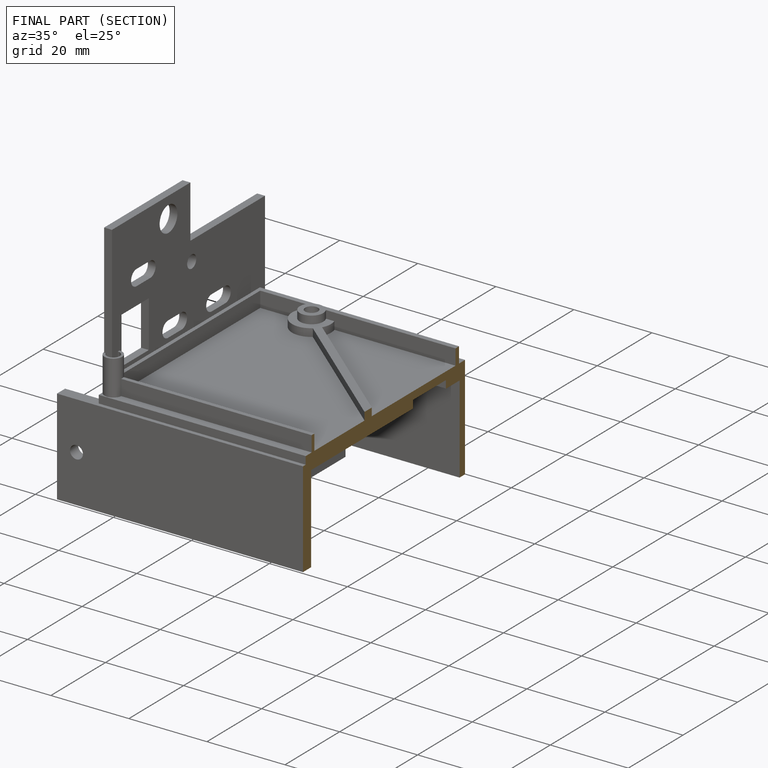
[diagram: finished part — half-section view (interior)]
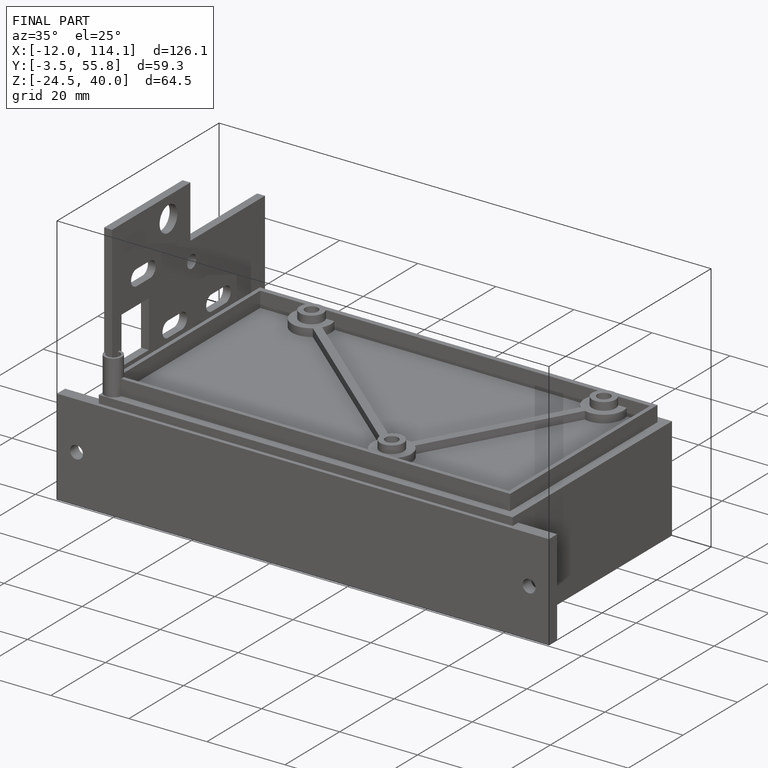
[diagram: finished part — iso view with bounding-box wireframe]
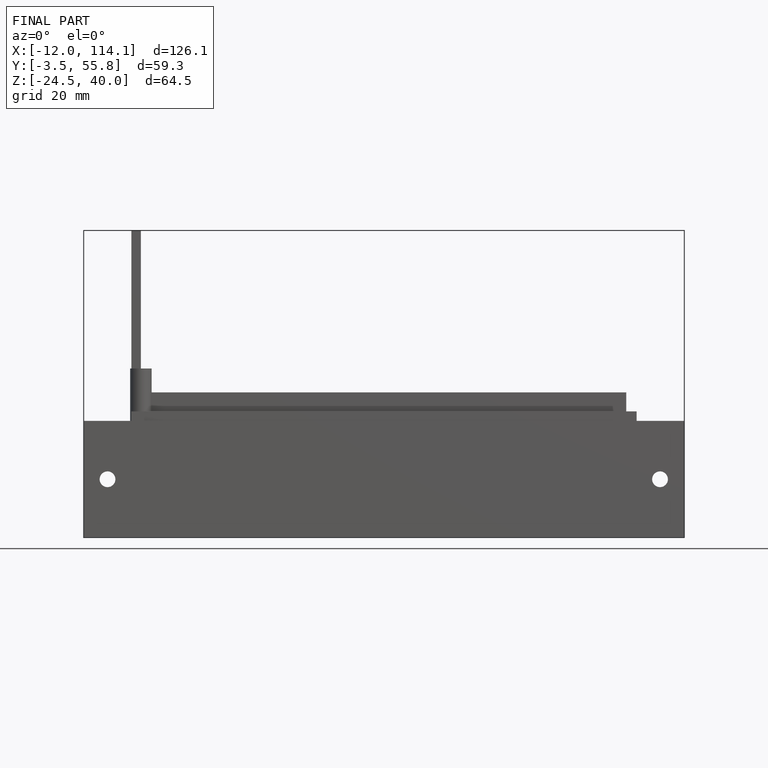
[diagram: finished part — front view with bounding-box wireframe]
